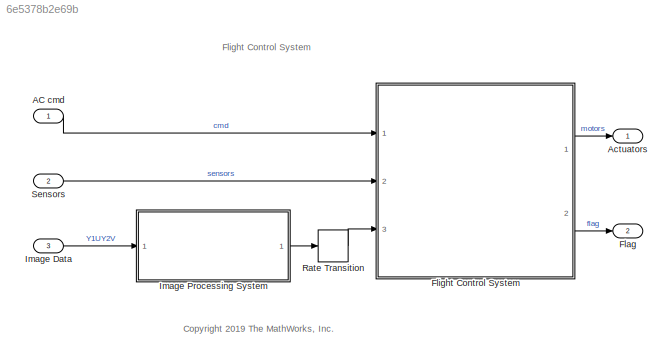
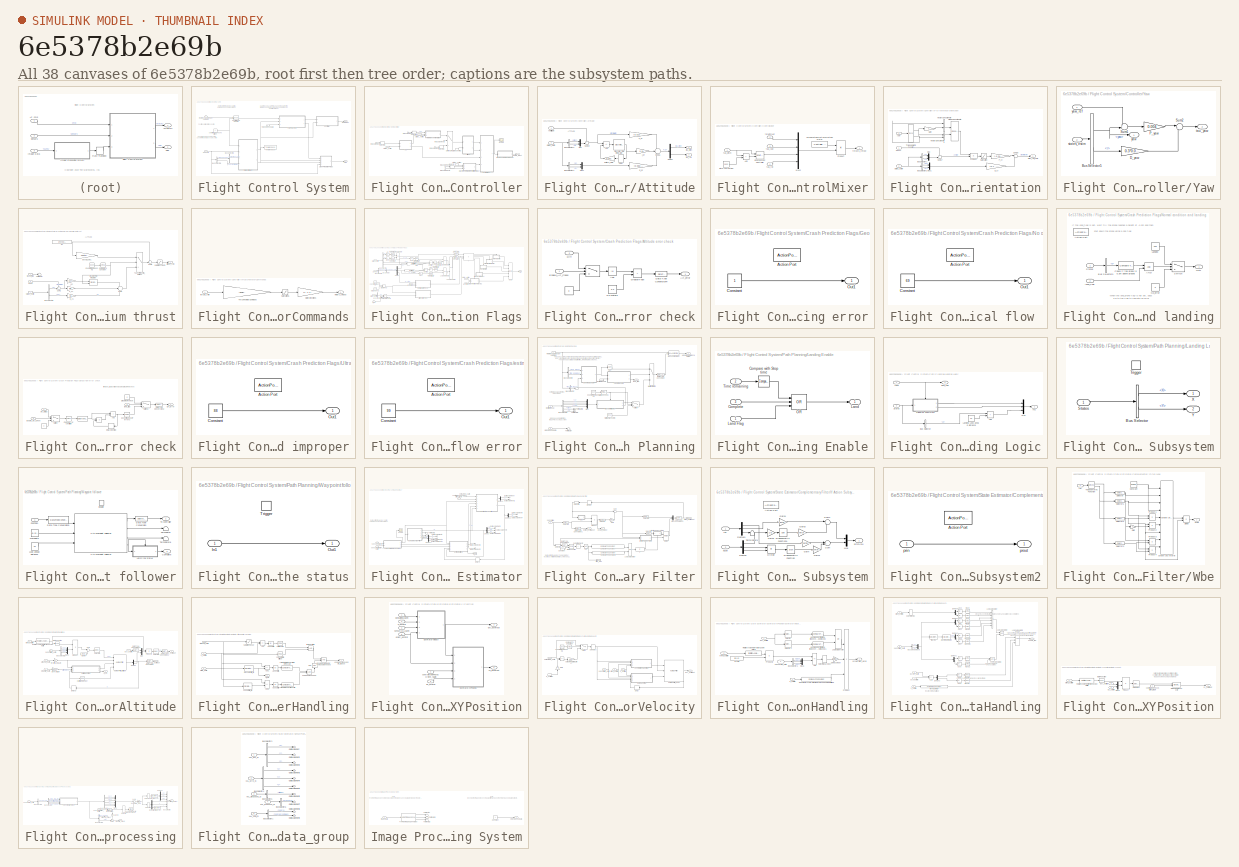
[diagram: thumbnail index - all 38 canvases of the model, root first then tree order]
MODEL slx_6e5378b2e69b
KIND model
CONFIG AbsTol = auto
CONFIG EnableMultiTasking = on
CONFIG FixedStep = Ts
CONFIG MaxStep = auto
CONFIG MinStep = auto
CONFIG RelTol = 1e-3
CONFIG SampleTimeConstraint = Unconstrained
CONFIG Solver = ode3
CONFIG SolverName = ode3
CONFIG StartTime = 0
CONFIG StopTime = TFinal
BLOCK [Inport] AC cmd
  BusOutputAsStruct = on
  OutDataTypeStr = Bus: CommandBus
BLOCK [Outport] Actuators
  OutDataTypeStr = single
  PortDimensions = 4
  VectorParamsAs1DForOutWhenUnconnected = off
BLOCK [Outport] Flag
  OutDataTypeStr = uint8
  Port = 2
  PortDimensions = 1
  VectorParamsAs1DForOutWhenUnconnected = off
BLOCK [SubSystem] Flight Control System
  InitFcn = codertarget.parrot.internal.fcsSubsystemCallback(gcb);
  Ports = [3, 2]
  RTWSystemCode = Reusable function
  RequestExecContextInheritance = off
  SystemSampleTime = Ts
  TreatAsAtomicUnit = on
BLOCK [BusSelector] Flight Control System/Bus Selector1
  OutputSignals = opticalFlow_data
  Ports = [1, 1]
BLOCK [BusSelector] Flight Control System/Bus Selector4
  OutputSignals = VisionSensors,SensorCalibration
  Ports = [1, 2]
BLOCK [BusAssignment] Flight Control System/Control Mode Update
  AssignedSignals = controlModePosVSOrient
  Ports = [2, 1]
BLOCK [SubSystem] Flight Control System/Controller
  Ports = [2, 1]
  RequestExecContextInheritance = off
BLOCK [SubSystem] Flight Control System/Controller/Attitude
  Ports = [2, 2]
  RequestExecContextInheritance = off
BLOCK [Sum] Flight Control System/Controller/Attitude/Add
  IconShape = rectangular
  Inputs = +-
  Ports = [2, 1]
BLOCK [BusSelector] Flight Control System/Controller/Attitude/Bus Selector3
  OutputSignals = pitch,roll
  Ports = [1, 2]
BLOCK [BusSelector] Flight Control System/Controller/Attitude/Bus Selector4
  OutputSignals = q,p
  Ports = [1, 2]
BLOCK [Gain] Flight Control System/Controller/Attitude/D_pr
  Gain = [0.002;0.003]
BLOCK [Delay] Flight Control System/Controller/Attitude/Delay
  DelayLength = 1
  InitialCondition = 0
  InputPortMap = u0
  Ports = [1, 1]
BLOCK [Demux] Flight Control System/Controller/Attitude/Demux
  Outputs = 2
  Ports = [1, 2]
BLOCK [DiscreteIntegrator] Flight Control System/Controller/Attitude/Discrete-Time Integrator
  ICPrevOutput = DiscIntNeverNeededParam
  ICPrevScaledInput = DiscIntNeverNeededParam
  InitialConditionSetting = Auto
  LimitOutput = on
  LowerSaturationLimit = -2
  Ports = [1, 1]
  SampleTime = Ts
  UpperSaturationLimit = 2
BLOCK [Gain] Flight Control System/Controller/Attitude/I_pr
  Gain = 0.01
BLOCK [Mux] Flight Control System/Controller/Attitude/Mux
  DisplayOption = bar
  Inputs = 2
  Ports = [2, 1]
BLOCK [Mux] Flight Control System/Controller/Attitude/Mux1
  DisplayOption = bar
  Inputs = 2
  Ports = [2, 1]
BLOCK [Gain] Flight Control System/Controller/Attitude/P_pr
  Gain = [0.013;0.01]
BLOCK [Sum] Flight Control System/Controller/Attitude/Sum16
  AccumDataTypeStr = single
  Inputs = ++-
  OutDataTypeStr = single
  Ports = [3, 1]
  SaturateOnIntegerOverflow = on
BLOCK [Sum] Flight Control System/Controller/Attitude/Sum19
  Inputs = +-|
  Ports = [2, 1]
BLOCK [Gain] Flight Control System/Controller/Attitude/antiWU_Gain
  Gain = 0.001
BLOCK [Inport] Flight Control System/Controller/Attitude/refAttitude
BLOCK [Inport] Flight Control System/Controller/Attitude/states_estim
  Port = 2
BLOCK [Outport] Flight Control System/Controller/Attitude/tau_pitch
  VectorParamsAs1DForOutWhenUnconnected = off
BLOCK [Outport] Flight Control System/Controller/Attitude/tau_roll
  Port = 2
  VectorParamsAs1DForOutWhenUnconnected = off
BLOCK [SubSystem] Flight Control System/Controller/ControlMixer
  Ports = [4, 1]
  RequestExecContextInheritance = off
BLOCK [Sum] Flight Control System/Controller/ControlMixer/Add
  IconShape = rectangular
  Ports = [2, 1]
BLOCK [Reference] Flight Control System/Controller/ControlMixer/Environment Controller  REF=simulink/Signal
Routing/Environment
Controller
  Ports = [2, 1]
  SourceBlock = simulink/Signal\nRouting/Environment\nController
  SourceProductBaseCode = SL
  SourceType = Environment Controller
BLOCK [Mux] Flight Control System/Controller/ControlMixer/Mux2
  DisplayOption = bar
  Ports = [4, 1]
BLOCK [Constant] Flight Control System/Controller/ControlMixer/Pitch correction
  OutDataTypeStr = single
  Value = 0.002
BLOCK [Product] Flight Control System/Controller/ControlMixer/Product
  Multiplication = Matrix(*)
  Ports = [2, 1]
  RndMeth = Zero
BLOCK [Constant] Flight Control System/Controller/ControlMixer/TorqueTotalThrustToThrustPerMotor
  NameLocation = top
  OutDataTypeStr = single
  Value = Controller.Q2Ts
BLOCK [Inport] Flight Control System/Controller/ControlMixer/tau_pitch
BLOCK [Inport] Flight Control System/Controller/ControlMixer/tau_roll
  Port = 2
BLOCK [Inport] Flight Control System/Controller/ControlMixer/tau_yaw
  Port = 3
BLOCK [Outport] Flight Control System/Controller/ControlMixer/thrusts_refout
  VectorParamsAs1DForOutWhenUnconnected = off
BLOCK [Inport] Flight Control System/Controller/ControlMixer/totalThrust
  Port = 4
BLOCK [Inport] Flight Control System/Controller/In Bus Element
BLOCK [Inport] Flight Control System/Controller/In Bus Element1
BLOCK [Inport] Flight Control System/Controller/In Bus Element2
BLOCK [Inport] Flight Control System/Controller/In Bus Element3
BLOCK [Inport] Flight Control System/Controller/In Bus Element5
BLOCK [Inport] Flight Control System/Controller/In Bus Element6
BLOCK [Scope] Flight Control System/Controller/Scope
  Floating = off
  NumInputPorts = 1
  Ports = [1]
  ScopeSpecificationString = Simulink.scopes.TimeScopeBlockCfg('CurrentConfiguration', extmgr.ConfigurationSet(extmgr.Configuration('Core','General UI',true),extmgr.Configuration('Core','Source UI',true),extmgr.Configuration('Sources','WiredSimulink',true,'DataLoggingVariableName','ScopeData4'),extmgr.Configuration('Visuals','Time Domain',true,'SerializedDisplays',{struct('MinYLimReal','-0.20032','MaxYLimReal','-0.09969','YLa...<+1497ch>
BLOCK [Selector] Flight Control System/Controller/Selector
  IndexOptions = Index vector (dialog)
  Indices = 3
  InputPortWidth = 3
  OutputSizes = 1
  Ports = [1, 1]
BLOCK [Selector] Flight Control System/Controller/Selector1
  IndexOptions = Index vector (dialog)
  Indices = [1 2]
  InputPortWidth = 3
  OutputSizes = 1
  Ports = [1, 1]
BLOCK [Selector] Flight Control System/Controller/Selector2
  IndexOptions = Index vector (dialog)
  Indices = [2 3]
  InputPortWidth = 3
  OutputSizes = 1
  Ports = [1, 1]
BLOCK [Selector] Flight Control System/Controller/Selector3
  IndexOptions = Index vector (dialog)
  Indices = 1
  InputPortWidth = 3
  OutputSizes = 1
  Ports = [1, 1]
BLOCK [Switch] Flight Control System/Controller/Switch_refAtt
  Criteria = u2 > Threshold
  InputSameDT = off
  SaturateOnIntegerOverflow = off
BLOCK [SubSystem] Flight Control System/Controller/XY-to-reference-orientation
  Ports = [3, 1]
  RequestExecContextInheritance = off
BLOCK [BusSelector] Flight Control System/Controller/XY-to-reference-orientation/Bus Selector1
  OutputSignals = X,Y
  Ports = [1, 2]
BLOCK [BusSelector] Flight Control System/Controller/XY-to-reference-orientation/Bus Selector2
  OutputSignals = dx,dy
  Ports = [1, 2]
BLOCK [Gain] Flight Control System/Controller/XY-to-reference-orientation/D_xy
  Gain = [0.1, -0.1]
  OutDataTypeStr = single
  ParamDataTypeStr = single
  SaturateOnIntegerOverflow = on
BLOCK [Gain] Flight Control System/Controller/XY-to-reference-orientation/Gain
  Gain = -1
BLOCK [Concatenate] Flight Control System/Controller/XY-to-reference-orientation/Matrix Concatenate
  ConcatenateDimension = 2
  Mode = Multidimensional array
  Ports = [2, 1]
BLOCK [Mux] Flight Control System/Controller/XY-to-reference-orientation/Mux
  DisplayOption = bar
  Inputs = 2
  Ports = [2, 1]
BLOCK [Mux] Flight Control System/Controller/XY-to-reference-orientation/Mux1
  DisplayOption = bar
  Inputs = 2
  Ports = [2, 1]
BLOCK [Gain] Flight Control System/Controller/XY-to-reference-orientation/P_xy
  Gain = [-0.24,0.24]
  OutDataTypeStr = single
  ParamDataTypeStr = single
  SaturateOnIntegerOverflow = on
BLOCK [Product] Flight Control System/Controller/XY-to-reference-orientation/Product
  Multiplication = Matrix(*)
  OutDataTypeStr = single
  Ports = [2, 1]
  RndMeth = Zero
BLOCK [Saturate] Flight Control System/Controller/XY-to-reference-orientation/Saturation
  LowerLimit = -3
  OutDataTypeStr = single
  UpperLimit = 3
BLOCK [Sum] Flight Control System/Controller/XY-to-reference-orientation/Sum17
  AccumDataTypeStr = single
  Inputs = +-|
  Ports = [2, 1]
BLOCK [Sum] Flight Control System/Controller/XY-to-reference-orientation/Sum18
  AccumDataTypeStr = single
  Inputs = |++
  OutDataTypeStr = single
  Ports = [2, 1]
  SaturateOnIntegerOverflow = on
BLOCK [Trigonometry] Flight Control System/Controller/XY-to-reference-orientation/Trigonometric Function
  Operator = sincos
  Ports = [1, 2]
BLOCK [Concatenate] Flight Control System/Controller/XY-to-reference-orientation/Vector Concatenate
  Ports = [2, 1]
BLOCK [Concatenate] Flight Control System/Controller/XY-to-reference-orientation/Vector Concatenate1
  Ports = [2, 1]
BLOCK [Outport] Flight Control System/Controller/XY-to-reference-orientation/pitch_roll_cmd
  VectorParamsAs1DForOutWhenUnconnected = off
BLOCK [Inport] Flight Control System/Controller/XY-to-reference-orientation/posXY
BLOCK [Inport] Flight Control System/Controller/XY-to-reference-orientation/states_estim
  Port = 2
BLOCK [Inport] Flight Control System/Controller/XY-to-reference-orientation/yaw
  Port = 3
BLOCK [SubSystem] Flight Control System/Controller/Yaw
  Ports = [2, 2]
  RequestExecContextInheritance = off
BLOCK [BusSelector] Flight Control System/Controller/Yaw/Bus Selector5
  OutputSignals = yaw,r
  Ports = [1, 2]
BLOCK [Gain] Flight Control System/Controller/Yaw/D_yaw
  Gain = 0.3*0.004
BLOCK [Gain] Flight Control System/Controller/Yaw/P_yaw
  Gain = 0.004
  OutDataTypeStr = single
  ParamDataTypeStr = single
BLOCK [Sum] Flight Control System/Controller/Yaw/Sum1
  AccumDataTypeStr = single
  Inputs = +-|
  OutDataTypeStr = single
  Ports = [2, 1]
  SaturateOnIntegerOverflow = on
BLOCK [Sum] Flight Control System/Controller/Yaw/Sum2
  Inputs = |+-
  Ports = [2, 1]
BLOCK [Inport] Flight Control System/Controller/Yaw/states_estim
  Port = 2
BLOCK [Outport] Flight Control System/Controller/Yaw/tau_yaw
  Port = 2
  VectorParamsAs1DForOutWhenUnconnected = off
BLOCK [Outport] Flight Control System/Controller/Yaw/yaw
  VectorParamsAs1DForOutWhenUnconnected = off
BLOCK [Inport] Flight Control System/Controller/Yaw/yaw_ref
BLOCK [SubSystem] Flight Control System/Controller/gravity feedforward//equilibrium thrust
  Ports = [3, 1]
  RequestExecContextInheritance = off
BLOCK [BusSelector] Flight Control System/Controller/gravity feedforward//equilibrium thrust/Bus Selector1
  OutputSignals = Z,dz
  Ports = [1, 2]
BLOCK [Reference] Flight Control System/Controller/gravity feedforward//equilibrium thrust/Compare To Constant  REF=simulink/Logic and Bit
Operations/Compare
To Constant
  Ports = [1, 1]
  SourceBlock = simulink/Logic and Bit\nOperations/Compare\nTo Constant
  SourceProductBaseCode = SL
  SourceType = Compare To Constant
BLOCK [Reference] Flight Control System/Controller/gravity feedforward//equilibrium thrust/Counter Free-Running  REF=simulink/Sources/Counter
Free-Running
  Ports = [0, 1]
  SourceBlock = simulink/Sources/Counter\nFree-Running
  SourceProductBaseCode = SL
  SourceType = Counter Free-Running
BLOCK [Gain] Flight Control System/Controller/gravity feedforward//equilibrium thrust/D_z1
  Gain = 0.5
  OutDataTypeStr = single
  ParamDataTypeStr = single
  SaturateOnIntegerOverflow = on
BLOCK [DiscreteIntegrator] Flight Control System/Controller/gravity feedforward//equilibrium thrust/Discrete-Time Integrator
  ExternalReset = falling
  ICPrevOutput = DiscIntNeverNeededParam
  ICPrevScaledInput = DiscIntNeverNeededParam
  InitialConditionSetting = Auto
  LimitOutput = on
  LowerSaturationLimit = -2
  Ports = [2, 1]
  SampleTime = Ts
  UpperSaturationLimit = 2
BLOCK [Gain] Flight Control System/Controller/gravity feedforward//equilibrium thrust/I_pr
  Gain = 0.24
BLOCK [Gain] Flight Control System/Controller/gravity feedforward//equilibrium thrust/P_z1
  Gain = 0.8
  OutDataTypeStr = single
  ParamDataTypeStr = single
  SaturateOnIntegerOverflow = on
BLOCK [Inport] Flight Control System/Controller/gravity feedforward//equilibrium thrust/PosZ
  Port = 2
BLOCK [Saturate] Flight Control System/Controller/gravity feedforward//equilibrium thrust/SaturationThrust1
  LowerLimit = -4*Controller.totalThrustMaxRelative*Controller.motorsThrustPerMotorMax
  OutDataTypeStr = single
  UpperLimit = 4*Controller.totalThrustMaxRelative*Controller.motorsThrustPerMotorMax
BLOCK [Sum] Flight Control System/Controller/gravity feedforward//equilibrium thrust/Sum1
  AccumDataTypeStr = single
  Inputs = ++-
  OutDataTypeStr = single
  Ports = [3, 1]
  SaturateOnIntegerOverflow = on
BLOCK [Sum] Flight Control System/Controller/gravity feedforward//equilibrium thrust/Sum2
  AccumDataTypeStr = single
  Inputs = +-|
  OutDataTypeStr = single
  Ports = [2, 1]
  SaturateOnIntegerOverflow = on
BLOCK [Sum] Flight Control System/Controller/gravity feedforward//equilibrium thrust/Sum5
  AccumDataTypeStr = single
  Inputs = ++|
  OutDataTypeStr = single
  Ports = [2, 1]
  SaturateOnIntegerOverflow = on
BLOCK [Switch] Flight Control System/Controller/gravity feedforward//equilibrium thrust/TakeoffOrControl_Switch1
  Criteria = u2 > Threshold
  InputSameDT = off
  SaturateOnIntegerOverflow = off
BLOCK [Terminator] Flight Control System/Controller/gravity feedforward//equilibrium thrust/Terminator
BLOCK [Outport] Flight Control System/Controller/gravity feedforward//equilibrium thrust/altitude_cmd
  VectorParamsAs1DForOutWhenUnconnected = off
BLOCK [Inport] Flight Control System/Controller/gravity feedforward//equilibrium thrust/states_estim
BLOCK [Inport] Flight Control System/Controller/gravity feedforward//equilibrium thrust/takeoff_flag
  Port = 3
BLOCK [Gain] Flight Control System/Controller/gravity feedforward//equilibrium thrust/takeoff_gain1
  Gain = Controller.takeoffGain
  OutDataTypeStr = single
  ParamDataTypeStr = single
  SaturateOnIntegerOverflow = on
BLOCK [Constant] Flight Control System/Controller/gravity feedforward//equilibrium thrust/w1
  OutDataTypeStr = single
  SampleTime = Ts
  Value = -g*Vehicle.Airframe.mass
BLOCK [Outport] Flight Control System/Controller/motors_refout
  VectorParamsAs1DForOutWhenUnconnected = off
BLOCK [Inport] Flight Control System/Controller/states_estim
  Port = 2
BLOCK [InportShadow] Flight Control System/Controller/states_estim1
  Port = 2
BLOCK [InportShadow] Flight Control System/Controller/states_estim2
  Port = 2
BLOCK [InportShadow] Flight Control System/Controller/states_estim3
  Port = 2
BLOCK [SubSystem] Flight Control System/Controller/thrustsToMotorCommands
  Ports = [1, 1]
  RequestExecContextInheritance = off
BLOCK [Gain] Flight Control System/Controller/thrustsToMotorCommands/MotorDirections
  Gain = [1 -1 1 -1]
BLOCK [Saturate] Flight Control System/Controller/thrustsToMotorCommands/Saturation5
  LowerLimit = Vehicle.Motor.minLimit
  UpperLimit = Vehicle.Motor.maxLimit
BLOCK [Gain] Flight Control System/Controller/thrustsToMotorCommands/ThrustToMotorCommand
  Gain = -Vehicle.Motor.thrustToMotorCommand
BLOCK [Outport] Flight Control System/Controller/thrustsToMotorCommands/motors_cmdout
  VectorParamsAs1DForOutWhenUnconnected = off
BLOCK [Inport] Flight Control System/Controller/thrustsToMotorCommands/thrusts_refin
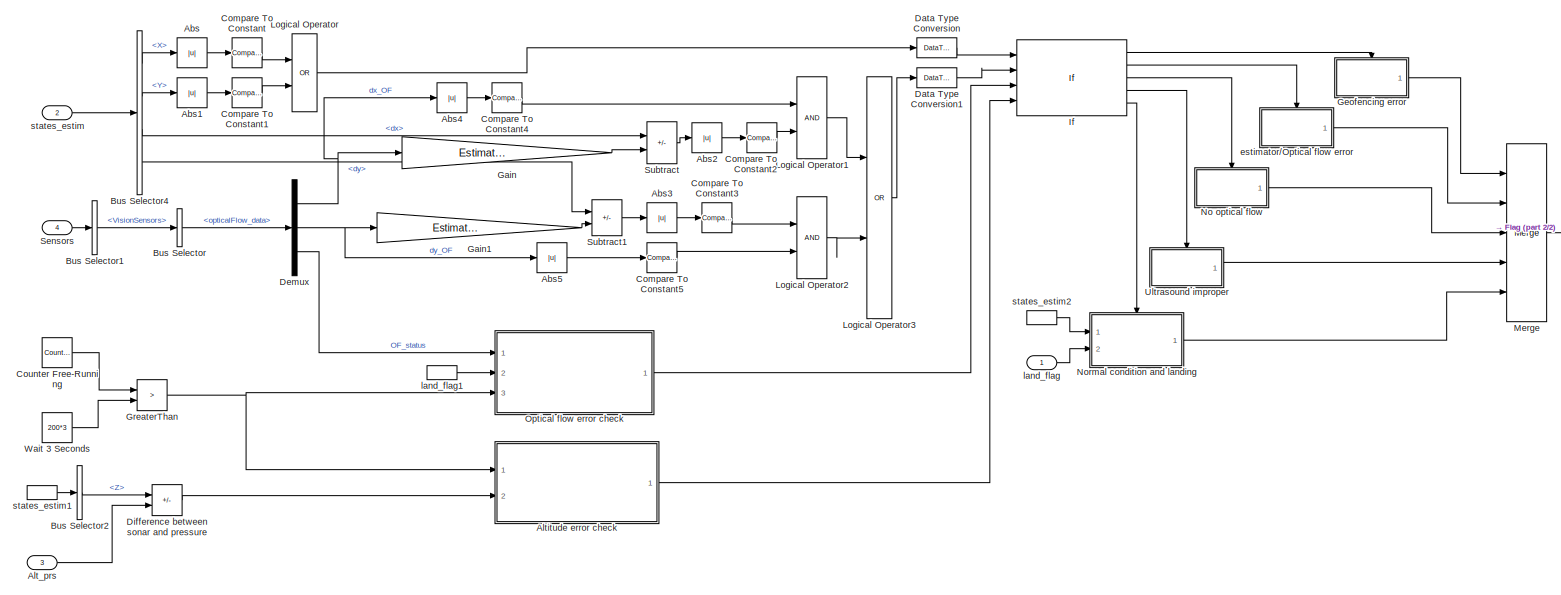
[diagram: Flight Control System/Crash Prediction Flags - part 1/2, most of the canvas]
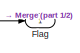
[diagram: Flight Control System/Crash Prediction Flags - part 2/2, middle right region]
BLOCK [SubSystem] Flight Control System/Crash Prediction Flags
  Ports = [4, 1]
  RequestExecContextInheritance = off
BLOCK [Abs] Flight Control System/Crash Prediction Flags/Abs
  SaturateOnIntegerOverflow = off
BLOCK [Abs] Flight Control System/Crash Prediction Flags/Abs1
  SaturateOnIntegerOverflow = off
BLOCK [Abs] Flight Control System/Crash Prediction Flags/Abs2
  SaturateOnIntegerOverflow = off
BLOCK [Abs] Flight Control System/Crash Prediction Flags/Abs3
  SaturateOnIntegerOverflow = off
BLOCK [Abs] Flight Control System/Crash Prediction Flags/Abs4
  SaturateOnIntegerOverflow = off
BLOCK [Abs] Flight Control System/Crash Prediction Flags/Abs5
  SaturateOnIntegerOverflow = off
BLOCK [Inport] Flight Control System/Crash Prediction Flags/Alt_prs
  Port = 3
BLOCK [SubSystem] Flight Control System/Crash Prediction Flags/Altitude error check
  Ports = [2, 1]
  RequestExecContextInheritance = off
BLOCK [Constant] Flight Control System/Crash Prediction Flags/Altitude error check/    
  OutDataTypeStr = single
  Value = 0
BLOCK [Switch] Flight Control System/Crash Prediction Flags/Altitude error check/         
  Criteria = u2 > Threshold
  InputSameDT = off
  SaturateOnIntegerOverflow = off
BLOCK [Constant] Flight Control System/Crash Prediction Flags/Altitude error check/0.5 meters
  Value = 0.5
BLOCK [Abs] Flight Control System/Crash Prediction Flags/Altitude error check/Abs  
  SaturateOnIntegerOverflow = off
BLOCK [Outport] Flight Control System/Crash Prediction Flags/Altitude error check/Alt_error
BLOCK [DataTypeConversion] Flight Control System/Crash Prediction Flags/Altitude error check/Data Type Conversion4
  OutDataTypeStr = uint8
  RndMeth = Nearest
  SaturateOnIntegerOverflow = off
BLOCK [Inport] Flight Control System/Crash Prediction Flags/Altitude error check/Diff
  Port = 2
BLOCK [Inport] Flight Control System/Crash Prediction Flags/Altitude error check/Enable_Alt_Check
BLOCK [RelationalOperator] Flight Control System/Crash Prediction Flags/Altitude error check/GreaterThan  
  InputSameDT = off
  NameLocation = top
  Operator = >
  OutDataTypeStr = boolean
  Ports = [2, 1]
  RndMeth = Simplest
BLOCK [BusSelector] Flight Control System/Crash Prediction Flags/Bus Selector
  OutputSignals = opticalFlow_data
  Ports = [1, 1]
BLOCK [BusSelector] Flight Control System/Crash Prediction Flags/Bus Selector1
  OutputSignals = VisionSensors
  Ports = [1, 1]
BLOCK [BusSelector] Flight Control System/Crash Prediction Flags/Bus Selector2
  OutputSignals = Z
  Ports = [1, 1]
BLOCK [BusSelector] Flight Control System/Crash Prediction Flags/Bus Selector4
  OutputSignals = X,Y,dx,dy
  Ports = [1, 4]
BLOCK [Reference] Flight Control System/Crash Prediction Flags/Compare To Constant  REF=simulink/Logic and Bit
Operations/Compare
To Constant
  Ports = [1, 1]
  SourceBlock = simulink/Logic and Bit\nOperations/Compare\nTo Constant
  SourceProductBaseCode = SL
  SourceType = Compare To Constant
BLOCK [Reference] Flight Control System/Crash Prediction Flags/Compare To Constant1  REF=simulink/Logic and Bit
Operations/Compare
To Constant
  Ports = [1, 1]
  SourceBlock = simulink/Logic and Bit\nOperations/Compare\nTo Constant
  SourceProductBaseCode = SL
  SourceType = Compare To Constant
BLOCK [Reference] Flight Control System/Crash Prediction Flags/Compare To Constant2  REF=simulink/Logic and Bit
Operations/Compare
To Constant
  Ports = [1, 1]
  SourceBlock = simulink/Logic and Bit\nOperations/Compare\nTo Constant
  SourceProductBaseCode = SL
  SourceType = Compare To Constant
BLOCK [Reference] Flight Control System/Crash Prediction Flags/Compare To Constant3  REF=simulink/Logic and Bit
Operations/Compare
To Constant
  Ports = [1, 1]
  SourceBlock = simulink/Logic and Bit\nOperations/Compare\nTo Constant
  SourceProductBaseCode = SL
  SourceType = Compare To Constant
BLOCK [Reference] Flight Control System/Crash Prediction Flags/Compare To Constant4  REF=simulink/Logic and Bit
Operations/Compare
To Constant
  Ports = [1, 1]
  SourceBlock = simulink/Logic and Bit\nOperations/Compare\nTo Constant
  SourceProductBaseCode = SL
  SourceType = Compare To Constant
BLOCK [Reference] Flight Control System/Crash Prediction Flags/Compare To Constant5  REF=simulink/Logic and Bit
Operations/Compare
To Constant
  Ports = [1, 1]
  SourceBlock = simulink/Logic and Bit\nOperations/Compare\nTo Constant
  SourceProductBaseCode = SL
  SourceType = Compare To Constant
BLOCK [Reference] Flight Control System/Crash Prediction Flags/Counter Free-Running  REF=simulink/Sources/Counter
Free-Running
  Ports = [0, 1]
  SourceBlock = simulink/Sources/Counter\nFree-Running
  SourceProductBaseCode = SL
  SourceType = Counter Free-Running
BLOCK [DataTypeConversion] Flight Control System/Crash Prediction Flags/Data Type Conversion
  OutDataTypeStr = uint8
  RndMeth = Nearest
  SaturateOnIntegerOverflow = off
BLOCK [DataTypeConversion] Flight Control System/Crash Prediction Flags/Data Type Conversion1
  OutDataTypeStr = uint8
  RndMeth = Nearest
  SaturateOnIntegerOverflow = off
BLOCK [Demux] Flight Control System/Crash Prediction Flags/Demux
  Outputs = 3
  Ports = [1, 3]
BLOCK [Sum] Flight Control System/Crash Prediction Flags/Difference between sonar and pressure
  IconShape = rectangular
  Inputs = +-
  Ports = [2, 1]
BLOCK [Outport] Flight Control System/Crash Prediction Flags/Flag
  VectorParamsAs1DForOutWhenUnconnected = off
BLOCK [Gain] Flight Control System/Crash Prediction Flags/Gain
  Gain = Estimator.pos.visDeltaXYMax
BLOCK [Gain] Flight Control System/Crash Prediction Flags/Gain1
  Gain = Estimator.pos.visDeltaXYMax
BLOCK [SubSystem] Flight Control System/Crash Prediction Flags/Geofencing error
  Ports = [0, 1, 0, 0, 0, 0, 0, 1]
  RequestExecContextInheritance = off
  TreatAsAtomicUnit = on
BLOCK [ActionPort] Flight Control System/Crash Prediction Flags/Geofencing error/Action Port
  ActionPortLabel = if(u1 > 0)
BLOCK [Constant] Flight Control System/Crash Prediction Flags/Geofencing error/Constant
  OutDataTypeStr = uint8
BLOCK [Outport] Flight Control System/Crash Prediction Flags/Geofencing error/Out1
  VectorParamsAs1DForOutWhenUnconnected = off
BLOCK [RelationalOperator] Flight Control System/Crash Prediction Flags/GreaterThan
  InputSameDT = off
  Operator = >
  OutDataTypeStr = boolean
  Ports = [2, 1]
  RndMeth = Simplest
BLOCK [If] Flight Control System/Crash Prediction Flags/If
  ElseIfExpressions = u2 > 0, u3> 0,u4>0
  NumInputs = 4
  Ports = [4, 5]
BLOCK [Logic] Flight Control System/Crash Prediction Flags/Logical Operator
  AllPortsSameDT = off
  Operator = OR
  Ports = [2, 1]
BLOCK [Logic] Flight Control System/Crash Prediction Flags/Logical Operator1
  AllPortsSameDT = off
  OutDataTypeStr = boolean
  Ports = [2, 1]
BLOCK [Logic] Flight Control System/Crash Prediction Flags/Logical Operator2
  AllPortsSameDT = off
  OutDataTypeStr = boolean
  Ports = [2, 1]
BLOCK [Logic] Flight Control System/Crash Prediction Flags/Logical Operator3
  AllPortsSameDT = off
  Operator = OR
  Ports = [2, 1]
BLOCK [Merge] Flight Control System/Crash Prediction Flags/Merge
  InitialOutput = 0
  Inputs = 5
  Ports = [5, 1]
BLOCK [SubSystem] Flight Control System/Crash Prediction Flags/No optical flow 
  Ports = [0, 1, 0, 0, 0, 0, 0, 1]
  RequestExecContextInheritance = off
  TreatAsAtomicUnit = on
BLOCK [ActionPort] Flight Control System/Crash Prediction Flags/No optical flow /Action Port
  ActionPortLabel = elseif( u3> 0)
BLOCK [Constant] Flight Control System/Crash Prediction Flags/No optical flow /Constant
  OutDataTypeStr = uint8
  Value = 69
BLOCK [Outport] Flight Control System/Crash Prediction Flags/No optical flow /Out1
  VectorParamsAs1DForOutWhenUnconnected = off
BLOCK [SubSystem] Flight Control System/Crash Prediction Flags/Normal condition and landing
  Ports = [2, 1, 0, 0, 0, 0, 0, 1]
  RequestExecContextInheritance = off
  TreatAsAtomicUnit = on
BLOCK [Logic] Flight Control System/Crash Prediction Flags/Normal condition and landing/AND
  AllPortsSameDT = off
  IconShape = distinctive
  OutDataTypeStr = boolean
  Ports = [2, 1]
BLOCK [ActionPort] Flight Control System/Crash Prediction Flags/Normal condition and landing/Action Port
  ActionPortLabel = else
BLOCK [BusSelector] Flight Control System/Crash Prediction Flags/Normal condition and landing/Bus Selector3
  OutputSignals = Z
  Ports = [1, 1]
BLOCK [Reference] Flight Control System/Crash Prediction Flags/Normal condition and landing/Check if the drone is 0.3m above ground  REF=simulink/Logic and Bit
Operations/Compare
To Constant
  Ports = [1, 1]
  SourceBlock = simulink/Logic and Bit\nOperations/Compare\nTo Constant
  SourceProductBaseCode = SL
  SourceType = Compare To Constant
BLOCK [Constant] Flight Control System/Crash Prediction Flags/Normal condition and landing/Landed
  OutDataTypeStr = uint8
  Value = 255
BLOCK [Constant] Flight Control System/Crash Prediction Flags/Normal condition and landing/No_error
  OutDataTypeStr = uint8
  Value = 0
BLOCK [Outport] Flight Control System/Crash Prediction Flags/Normal condition and landing/Out1
BLOCK [Inport] Flight Control System/Crash Prediction Flags/Normal condition and landing/States
BLOCK [Switch] Flight Control System/Crash Prediction Flags/Normal condition and landing/Switch
  Criteria = u2 > Threshold
  InputSameDT = off
  SaturateOnIntegerOverflow = off
BLOCK [Inport] Flight Control System/Crash Prediction Flags/Normal condition and landing/land_flag
  Port = 2
BLOCK [SubSystem] Flight Control System/Crash Prediction Flags/Optical flow error check
  Ports = [3, 1]
  RequestExecContextInheritance = off
BLOCK [Constant] Flight Control System/Crash Prediction Flags/Optical flow error check/ 
  Value = 0
BLOCK [Product] Flight Control System/Crash Prediction Flags/Optical flow error check/  
  Inputs = **
  Ports = [2, 1]
BLOCK [DataTypeConversion] Flight Control System/Crash Prediction Flags/Optical flow error check/   
  RndMeth = Floor
  SaturateOnIntegerOverflow = off
BLOCK [Constant] Flight Control System/Crash Prediction Flags/Optical flow error check/ Disable OF check
  Value = 0
BLOCK [Reference] Flight Control System/Crash Prediction Flags/Optical flow error check/50 continuous OF errors   REF=simulink/Logic and Bit
Operations/Compare
To Constant
  Ports = [1, 1]
  SourceBlock = simulink/Logic and Bit\nOperations/Compare\nTo Constant
  SourceProductBaseCode = SL
  SourceType = Compare To Constant
BLOCK [Sum] Flight Control System/Crash Prediction Flags/Optical flow error check/Add
  IconShape = rectangular
  Ports = [2, 1]
BLOCK [Reference] Flight Control System/Crash Prediction Flags/Optical flow error check/Check error condition  REF=simulink/Logic and Bit
Operations/Compare
To Constant
  Ports = [1, 1]
  SourceBlock = simulink/Logic and Bit\nOperations/Compare\nTo Constant
  SourceProductBaseCode = SL
  SourceType = Compare To Constant
BLOCK [DataTypeConversion] Flight Control System/Crash Prediction Flags/Optical flow error check/Data Type Conversion2
  OutDataTypeStr = uint8
  RndMeth = Nearest
  SaturateOnIntegerOverflow = off
BLOCK [Delay] Flight Control System/Crash Prediction Flags/Optical flow error check/Delay One Step
  DelayLength = 1
  InputPortMap = u0
  Ports = [1, 1]
BLOCK [Inport] Flight Control System/Crash Prediction Flags/Optical flow error check/Enable_OF_Check
  Port = 3
BLOCK [Outport] Flight Control System/Crash Prediction Flags/Optical flow error check/OF_Error
BLOCK [Inport] Flight Control System/Crash Prediction Flags/Optical flow error check/OF_status
BLOCK [Switch] Flight Control System/Crash Prediction Flags/Optical flow error check/Switch
  Criteria = u2 > Threshold
  InputSameDT = off
  SaturateOnIntegerOverflow = off
BLOCK [Switch] Flight Control System/Crash Prediction Flags/Optical flow error check/Switch1
  Criteria = u2 > Threshold
  InputSameDT = off
  SaturateOnIntegerOverflow = off
BLOCK [Inport] Flight Control System/Crash Prediction Flags/Optical flow error check/land_flag
  Port = 2
BLOCK [Inport] Flight Control System/Crash Prediction Flags/Sensors
  Port = 4
BLOCK [Sum] Flight Control System/Crash Prediction Flags/Subtract
  IconShape = rectangular
  Inputs = -+
  Ports = [2, 1]
BLOCK [Sum] Flight Control System/Crash Prediction Flags/Subtract1
  IconShape = rectangular
  Inputs = -+
  Ports = [2, 1]
BLOCK [SubSystem] Flight Control System/Crash Prediction Flags/Ultrasound improper
  Ports = [0, 1, 0, 0, 0, 0, 0, 1]
  RequestExecContextInheritance = off
  TreatAsAtomicUnit = on
BLOCK [ActionPort] Flight Control System/Crash Prediction Flags/Ultrasound improper/Action Port
  ActionPortLabel = elseif(u4>0)
BLOCK [Constant] Flight Control System/Crash Prediction Flags/Ultrasound improper/Constant
  OutDataTypeStr = uint8
  Value = 88
BLOCK [Outport] Flight Control System/Crash Prediction Flags/Ultrasound improper/Out1
  VectorParamsAs1DForOutWhenUnconnected = off
BLOCK [Constant] Flight Control System/Crash Prediction Flags/Wait  3 Seconds
  Value = 200*3
BLOCK [SubSystem] Flight Control System/Crash Prediction Flags/estimator//Optical flow error
  Ports = [0, 1, 0, 0, 0, 0, 0, 1]
  RequestExecContextInheritance = off
  TreatAsAtomicUnit = on
BLOCK [ActionPort] Flight Control System/Crash Prediction Flags/estimator//Optical flow error/Action Port
  ActionPortLabel = elseif(u2 > 0)
BLOCK [Constant] Flight Control System/Crash Prediction Flags/estimator//Optical flow error/Constant
  OutDataTypeStr = uint8
  Value = 99
BLOCK [Outport] Flight Control System/Crash Prediction Flags/estimator//Optical flow error/Out1
  VectorParamsAs1DForOutWhenUnconnected = off
BLOCK [Inport] Flight Control System/Crash Prediction Flags/land_flag
BLOCK [InportShadow] Flight Control System/Crash Prediction Flags/land_flag1
BLOCK [Inport] Flight Control System/Crash Prediction Flags/states_estim
  Port = 2
BLOCK [InportShadow] Flight Control System/Crash Prediction Flags/states_estim1
  Port = 2
BLOCK [InportShadow] Flight Control System/Crash Prediction Flags/states_estim2
  Port = 2
BLOCK [Outport] Flight Control System/Flag
  Port = 2
  VectorParamsAs1DForOutWhenUnconnected = off
BLOCK [SubSystem] Flight Control System/Path Planning
  Ports = [3, 2]
  RequestExecContextInheritance = off
BLOCK [Terminator] Flight Control System/Path Planning/ 
BLOCK [BusAssignment] Flight Control System/Path Planning/Bus Assignment
  AssignedSignals = pos_ref
  Ports = [2, 1]
BLOCK [BusSelector] Flight Control System/Path Planning/Bus Selector
  OutputSignals = live_time_ticks
  Ports = [1, 1]
BLOCK [BusSelector] Flight Control System/Path Planning/Bus Selector1
  OutputSignals = X,Y,Z,yaw,pitch,roll
  Ports = [1, 6]
BLOCK [BusSelector] Flight Control System/Path Planning/Bus Selector3
  OutputSignals = land_drone,time_remaining
  Ports = [1, 2]
BLOCK [Reference] Flight Control System/Path Planning/Counter Free-Running  REF=simulink/Sources/Counter
Free-Running
  Ports = [0, 1]
  SourceBlock = simulink/Sources/Counter\nFree-Running
  SourceProductBaseCode = SL
  SourceType = Counter Free-Running
BLOCK [DataTypeConversion] Flight Control System/Path Planning/Data Type Conversion
  OutDataTypeStr = single
  RndMeth = Floor
  SaturateOnIntegerOverflow = off
BLOCK [Inport] Flight Control System/Path Planning/EstimatedVal
  Port = 2
BLOCK [InportShadow] Flight Control System/Path Planning/EstimatedVal1
  Port = 2
BLOCK [SubSystem] Flight Control System/Path Planning/Landing Enable
  Ports = [3, 1]
  RequestExecContextInheritance = off
BLOCK [Reference] Flight Control System/Path Planning/Landing Enable/Compare with Stop time  REF=simulink/Logic and Bit
Operations/Compare
To Constant
  Ports = [1, 1]
  SourceBlock = simulink/Logic and Bit\nOperations/Compare\nTo Constant
  SourceProductBaseCode = SL
  SourceType = Compare To Constant
BLOCK [Inport] Flight Control System/Path Planning/Landing Enable/Complete
  Port = 3
BLOCK [Outport] Flight Control System/Path Planning/Landing Enable/Land
BLOCK [Inport] Flight Control System/Path Planning/Landing Enable/Land Flag
BLOCK [Logic] Flight Control System/Path Planning/Landing Enable/OR
  AllPortsSameDT = off
  IconShape = distinctive
  Inputs = 3
  Operator = OR
  OutDataTypeStr = boolean
  Ports = [3, 1]
BLOCK [Inport] Flight Control System/Path Planning/Landing Enable/Time remaining
  Port = 2
BLOCK [SubSystem] Flight Control System/Path Planning/Landing Logic
  Ports = [2, 2]
  RequestExecContextInheritance = off
BLOCK [Sum] Flight Control System/Path Planning/Landing Logic/Add
  IconShape = rectangular
  Ports = [2, 1]
BLOCK [BusSelector] Flight Control System/Path Planning/Landing Logic/Bus Selector
  OutputSignals = Z
  Ports = [1, 1]
BLOCK [Inport] Flight Control System/Path Planning/Landing Logic/Land
BLOCK [Constant] Flight Control System/Path Planning/Landing Logic/Landing Look-ahead distance
  OutDataTypeStr = single
  Value = 0.2
BLOCK [Mux] Flight Control System/Path Planning/Landing Logic/Mux
  DisplayOption = bar
  Inputs = 3
  Ports = [3, 1]
BLOCK [Inport] Flight Control System/Path Planning/Landing Logic/States
  Port = 2
BLOCK [SubSystem] Flight Control System/Path Planning/Landing Logic/Triggered Subsystem
  Ports = [1, 2, 0, 1]
  RequestExecContextInheritance = off
  TreatAsAtomicUnit = on
BLOCK [BusSelector] Flight Control System/Path Planning/Landing Logic/Triggered Subsystem/Bus Selector
  OutputSignals = X,Y
  Ports = [1, 2]
BLOCK [Inport] Flight Control System/Path Planning/Landing Logic/Triggered Subsystem/States
BLOCK [TriggerPort] Flight Control System/Path Planning/Landing Logic/Triggered Subsystem/Trigger
  InitialTriggerSignalState = zero
  Ports = []
  StatesWhenEnabling = held
  VariantControl = Variant
BLOCK [Outport] Flight Control System/Path Planning/Landing Logic/Triggered Subsystem/X
BLOCK [Outport] Flight Control System/Path Planning/Landing Logic/Triggered Subsystem/Y
  Port = 2
BLOCK [Outport] Flight Control System/Path Planning/Landing Logic/XYZ
BLOCK [Outport] Flight Control System/Path Planning/Landing Logic/land_flag
  Port = 2
BLOCK [MultiPortSwitch] Flight Control System/Path Planning/Multiport Switch
  DataPortOrder = Zero-based contiguous
  InputSameDT = off
  Inputs = 2
  Ports = [3, 1]
  SaturateOnIntegerOverflow = off
  zeroidx = on
BLOCK [Mux] Flight Control System/Path Planning/Mux
  DisplayOption = bar
  Ports = [4, 1]
BLOCK [Logic] Flight Control System/Path Planning/NOT
  AllPortsSameDT = off
  IconShape = distinctive
  Operator = NOT
  OutDataTypeStr = boolean
  Ports = [1, 1]
BLOCK [Inport] Flight Control System/Path Planning/ReferenceValueServerCmds
BLOCK [Constant] Flight Control System/Path Planning/Startup Waypoints
  Value = [0 0 -1]
BLOCK [Switch] Flight Control System/Path Planning/Switch
  Criteria = u2 > Threshold
  InputSameDT = off
  SaturateOnIntegerOverflow = off
BLOCK [Terminator] Flight Control System/Path Planning/Terminator
  NameLocation = top
BLOCK [Terminator] Flight Control System/Path Planning/Terminator5
  NameLocation = top
BLOCK [Terminator] Flight Control System/Path Planning/Terminator6
  NameLocation = top
BLOCK [Outport] Flight Control System/Path Planning/UpdatedReferenceCmds
  VectorParamsAs1DForOutWhenUnconnected = off
BLOCK [Inport] Flight Control System/Path Planning/Vision-based Data
  Port = 3
BLOCK [Reference] Flight Control System/Path Planning/Wait 5 seconds  REF=simulink/Logic and Bit
Operations/Compare
To Constant
  Ports = [1, 1]
  SourceBlock = simulink/Logic and Bit\nOperations/Compare\nTo Constant
  SourceProductBaseCode = SL
  SourceType = Compare To Constant
BLOCK [SubSystem] Flight Control System/Path Planning/Waypoint follower
  Ports = [1, 2, 1]
  RequestExecContextInheritance = off
BLOCK [Outport] Flight Control System/Path Planning/Waypoint follower/Complete
  Port = 2
BLOCK [DataTypeConversion] Flight Control System/Path Planning/Waypoint follower/Data Type Conversion
  OutDataTypeStr = single
  RndMeth = Floor
  SaturateOnIntegerOverflow = off
BLOCK [DataTypeConversion] Flight Control System/Path Planning/Waypoint follower/Data Type Conversion3
  OutDataTypeStr = double
  RndMeth = Floor
  SaturateOnIntegerOverflow = off
BLOCK [EnablePort] Flight Control System/Path Planning/Waypoint follower/Enable
  Ports = []
BLOCK [SubSystem] Flight Control System/Path Planning/Waypoint follower/Latch the status
  Ports = [1, 1, 0, 1]
  RequestExecContextInheritance = off
  TreatAsAtomicUnit = on
BLOCK [Inport] Flight Control System/Path Planning/Waypoint follower/Latch the status/In1
BLOCK [Outport] Flight Control System/Path Planning/Waypoint follower/Latch the status/Out1
BLOCK [TriggerPort] Flight Control System/Path Planning/Waypoint follower/Latch the status/Trigger
  Ports = []
  StatesWhenEnabling = held
  VariantControl = Variant
BLOCK [Constant] Flight Control System/Path Planning/Waypoint follower/Look ahead distance
  SampleTime = -1
  Value = .25
BLOCK [Inport] Flight Control System/Path Planning/Waypoint follower/Postition
BLOCK [Terminator] Flight Control System/Path Planning/Waypoint follower/Terminator
BLOCK [Terminator] Flight Control System/Path Planning/Waypoint follower/Terminator8
BLOCK [Outport] Flight Control System/Path Planning/Waypoint follower/To controller
  VectorParamsAs1DForOutWhenUnconnected = off
BLOCK [Reference] Flight Control System/Path Planning/Waypoint follower/UAV Waypoint Follower  REF=robotuavlib/UAV Waypoint Follower
  Ports = [3, 4]
  SourceBlock = robotuavlib/UAV Waypoint Follower
  SourceProductBaseCode = ROBOTICS_UAV_LIB
  SourceType = robotics.sluav.internal.system.WaypointFollower
BLOCK [Constant] Flight Control System/Path Planning/Waypoint follower/Waypoints
  SampleTime = -1
  Value = [0 0 -1; 2 0 -1; 2 2 -1; 0 2 -1; 0 0 -1; 2 0 -1; 2 2 -1; 0 2 -1;2 2 -1; 0 2 -1; 0 0 -1; 2 0 -1; 0 0 -1]
BLOCK [Outport] Flight Control System/Path Planning/land_flag
  Port = 2
BLOCK [Inport] Flight Control System/ReferenceValueServerCmds
  OutDataTypeStr = Bus: CommandBus
BLOCK [Inport] Flight Control System/Sensors
  BusOutputAsStruct = on
  OutDataTypeStr = Bus: SensorsBus
  Port = 2
BLOCK [SubSystem] Flight Control System/State Estimator
  Ports = [4, 2]
  RequestExecContextInheritance = off
BLOCK [Outport] Flight Control System/State Estimator/Alt_prs
  Port = 2
  VectorParamsAs1DForOutWhenUnconnected = off
BLOCK [SubSystem] Flight Control System/State Estimator/Complementary Filter
  Ports = [1, 4]
  RequestExecContextInheritance = off
BLOCK [Reference] Flight Control System/State Estimator/Complementary Filter/Compare To Constant  REF=simulink/Logic and Bit
Operations/Compare
To Constant
  Ports = [1, 1]
  SourceBlock = simulink/Logic and Bit\nOperations/Compare\nTo Constant
  SourceProductBaseCode = SL
  SourceType = Compare To Constant
BLOCK [Reference] Flight Control System/State Estimator/Complementary Filter/Compare To Constant1  REF=simulink/Logic and Bit
Operations/Compare
To Constant
  Ports = [1, 1]
  SourceBlock = simulink/Logic and Bit\nOperations/Compare\nTo Constant
  SourceProductBaseCode = SL
  SourceType = Compare To Constant
BLOCK [Constant] Flight Control System/State Estimator/Complementary Filter/Constant
  OutDataTypeStr = single
  Value = 2
BLOCK [DataTypeConversion] Flight Control System/State Estimator/Complementary Filter/Data Type Conversion1
  OutDataTypeStr = single
  RndMeth = Floor
  SaturateOnIntegerOverflow = off
BLOCK [DataTypeConversion] Flight Control System/State Estimator/Complementary Filter/Data Type Conversion2
  OutDataTypeStr = single
  RndMeth = Floor
  SaturateOnIntegerOverflow = off
BLOCK [DataTypeConversion] Flight Control System/State Estimator/Complementary Filter/Data Type Conversion3
  OutDataTypeStr = single
  RndMeth = Floor
  SaturateOnIntegerOverflow = off
BLOCK [Gain] Flight Control System/State Estimator/Complementary Filter/Gain
  Gain = Ts/Estimator.gyroscopeSensitivity
BLOCK [If] Flight Control System/State Estimator/Complementary Filter/If
  Ports = [1, 2]
BLOCK [SubSystem] Flight Control System/State Estimator/Complementary Filter/If Action Subsystem
  NameLocation = top
  Ports = [2, 1, 0, 0, 0, 0, 0, 1]
  RequestExecContextInheritance = off
  TreatAsAtomicUnit = on
BLOCK [ActionPort] Flight Control System/State Estimator/Complementary Filter/If Action Subsystem/Action Port
  ActionPortLabel = if(u1 > 0)
BLOCK [Demux] Flight Control System/State Estimator/Complementary Filter/If Action Subsystem/Demux
  Outputs = 3
  Ports = [1, 3]
BLOCK [Demux] Flight Control System/State Estimator/Complementary Filter/If Action Subsystem/Demux1
  Outputs = 3
  Ports = [1, 3]
BLOCK [Product] Flight Control System/State Estimator/Complementary Filter/If Action Subsystem/Divide
  Inputs = */
  Ports = [2, 1]
BLOCK [Gain] Flight Control System/State Estimator/Complementary Filter/If Action Subsystem/Gain
  Gain = 1-Estimator.gyroAngleUpdateAccWeight
BLOCK [Gain] Flight Control System/State Estimator/Complementary Filter/If Action Subsystem/Gain1
  Gain = Estimator.gyroAngleUpdateAccWeight
BLOCK [Gain] Flight Control System/State Estimator/Complementary Filter/If Action Subsystem/Gain2
  Gain = 1/g
BLOCK [Gain] Flight Control System/State Estimator/Complementary Filter/If Action Subsystem/Gain3
  Gain = Estimator.gyroAngleUpdateAccWeight
BLOCK [Gain] Flight Control System/State Estimator/Complementary Filter/If Action Subsystem/Gain4
  Gain = 1-Estimator.gyroAngleUpdateAccWeight
BLOCK [Mux] Flight Control System/State Estimator/Complementary Filter/If Action Subsystem/Mux
  DisplayOption = bar
  Inputs = 2
  Ports = [2, 1]
BLOCK [Sum] Flight Control System/State Estimator/Complementary Filter/If Action Subsystem/Sum
  Inputs = |++
  Ports = [2, 1]
BLOCK [Sum] Flight Control System/State Estimator/Complementary Filter/If Action Subsystem/Sum1
  Inputs = |++
  Ports = [2, 1]
BLOCK [Terminator] Flight Control System/State Estimator/Complementary Filter/If Action Subsystem/Terminator1
BLOCK [Trigonometry] Flight Control System/State Estimator/Complementary Filter/If Action Subsystem/Trigonometric Function
  Operator = atan
  Ports = [1, 1]
BLOCK [Trigonometry] Flight Control System/State Estimator/Complementary Filter/If Action Subsystem/Trigonometric Function1
  Operator = asin
  Ports = [1, 1]
BLOCK [Inport] Flight Control System/State Estimator/Complementary Filter/If Action Subsystem/accel
  Port = 2
BLOCK [Outport] Flight Control System/State Estimator/Complementary Filter/If Action Subsystem/pitch,roll
  VectorParamsAs1DForOutWhenUnconnected = off
BLOCK [Inport] Flight Control System/State Estimator/Complementary Filter/If Action Subsystem/rpy
BLOCK [SubSystem] Flight Control System/State Estimator/Complementary Filter/If Action Subsystem2
  NameLocation = top
  Ports = [1, 1, 0, 0, 0, 0, 0, 1]
  RequestExecContextInheritance = off
  TreatAsAtomicUnit = on
BLOCK [ActionPort] Flight Control System/State Estimator/Complementary Filter/If Action Subsystem2/Action Port
  ActionPortLabel = else
BLOCK [Inport] Flight Control System/State Estimator/Complementary Filter/If Action Subsystem2/prin
BLOCK [Outport] Flight Control System/State Estimator/Complementary Filter/If Action Subsystem2/prout
  VectorParamsAs1DForOutWhenUnconnected = off
BLOCK [Logic] Flight Control System/State Estimator/Complementary Filter/Logical Operator
  AllPortsSameDT = off
  OutDataTypeStr = fixdt(1,16)
  Ports = [2, 1]
BLOCK [Math] Flight Control System/State Estimator/Complementary Filter/Math Function
  Operator = pow
  Ports = [2, 1]
  SignedPower = on
BLOCK [Memory] Flight Control System/State Estimator/Complementary Filter/Memory
  InheritSampleTime = on
  InitialCondition = single(Estimator.complementaryFilterInit)
BLOCK [Merge] Flight Control System/State Estimator/Complementary Filter/Merge
  Ports = [2, 1]
BLOCK [Mux] Flight Control System/State Estimator/Complementary Filter/Mux
  DisplayOption = bar
  Inputs = 2
  Ports = [2, 1]
BLOCK [Product] Flight Control System/State Estimator/Complementary Filter/Product
  Multiplication = Matrix(*)
  Ports = [2, 1]
BLOCK [Selector] Flight Control System/State Estimator/Complementary Filter/Selector
  IndexOptions = Index vector (dialog)
  Indices = [3 2 1]
  InputPortWidth = 3
  OutputSizes = 1
  Ports = [1, 1]
BLOCK [Selector] Flight Control System/State Estimator/Complementary Filter/Selector1
  IndexOptions = Index vector (dialog)
  Indices = [4 5 6]
  InputPortWidth = 6
  OutputSizes = 1
  Ports = [1, 1]
BLOCK [Selector] Flight Control System/State Estimator/Complementary Filter/Selector2
  IndexOptions = Index vector (dialog)
  Indices = [1 2 3]
  InputPortWidth = 6
  OutputSizes = 1
  Ports = [1, 1]
BLOCK [Selector] Flight Control System/State Estimator/Complementary Filter/Selector3
  IndexOptions = Index vector (dialog)
  Indices = [2 1]
  InputPortWidth = 3
  OutputSizes = 1
  Ports = [1, 1]
BLOCK [Selector] Flight Control System/State Estimator/Complementary Filter/Selector4
  IndexOptions = Index vector (dialog)
  Indices = [3]
  InputPortWidth = 3
  OutputSizes = 1
  Ports = [1, 1]
BLOCK [Selector] Flight Control System/State Estimator/Complementary Filter/Selector5
  IndexOptions = Index vector (dialog)
  Indices = [3 2 1]
  InputPortWidth = 3
  OutputSizes = 1
  Ports = [1, 1]
BLOCK [Sqrt] Flight Control System/State Estimator/Complementary Filter/Sqrt
BLOCK [Sum] Flight Control System/State Estimator/Complementary Filter/Sum
  Inputs = |++
  Ports = [2, 1]
BLOCK [Sum] Flight Control System/State Estimator/Complementary Filter/Sum of Elements
  IconShape = rectangular
  Inputs = +
  Ports = [1, 1]
BLOCK [SubSystem] Flight Control System/State Estimator/Complementary Filter/Wbe
  Ports = [1, 1]
  RequestExecContextInheritance = off
BLOCK [Constant] Flight Control System/State Estimator/Complementary Filter/Wbe/Constant
  Value = single(0)
BLOCK [Reference] Flight Control System/State Estimator/Complementary Filter/Wbe/Create 3x3 Matrix  REF=sharedutil/Create 3x3 Matrix
  Ports = [9, 1]
  SourceBlock = sharedutil/Create 3x3 Matrix
  SourceProductBaseCode = AE,PW,MT,VE,VP
  SourceType = Create 3x3 Matrix
BLOCK [Product] Flight Control System/State Estimator/Complementary Filter/Wbe/Divide
  Inputs = */
  Ports = [2, 1]
BLOCK [Gain] Flight Control System/State Estimator/Complementary Filter/Wbe/Gain
  Gain = -1
BLOCK [Product] Flight Control System/State Estimator/Complementary Filter/Wbe/Product1
  Ports = [2, 1]
BLOCK [Product] Flight Control System/State Estimator/Complementary Filter/Wbe/Product2
  Ports = [2, 1]
BLOCK [Product] Flight Control System/State Estimator/Complementary Filter/Wbe/Product3
  Ports = [2, 1]
BLOCK [Product] Flight Control System/State Estimator/Complementary Filter/Wbe/Product4
  Ports = [2, 1]
BLOCK [Selector] Flight Control System/State Estimator/Complementary Filter/Wbe/Selector
  IndexOptions = Index vector (dialog)
  Indices = [1]
  InputPortWidth = 3
  OutputSizes = 1
  Ports = [1, 1]
BLOCK [Selector] Flight Control System/State Estimator/Complementary Filter/Wbe/Selector1
  IndexOptions = Index vector (dialog)
  Indices = [1]
  InputPortWidth = 3
  OutputSizes = 1
  Ports = [1, 1]
BLOCK [Selector] Flight Control System/State Estimator/Complementary Filter/Wbe/Selector2
  IndexOptions = Index vector (dialog)
  Indices = [2]
  InputPortWidth = 3
  OutputSizes = 1
  Ports = [1, 1]
BLOCK [Selector] Flight Control System/State Estimator/Complementary Filter/Wbe/Selector3
  IndexOptions = Index vector (dialog)
  Indices = [2]
  InputPortWidth = 3
  OutputSizes = 1
  Ports = [1, 1]
BLOCK [Trigonometry] Flight Control System/State Estimator/Complementary Filter/Wbe/Trigonometric Function
  Operator = sincos
  Ports = [1, 2]
BLOCK [Outport] Flight Control System/State Estimator/Complementary Filter/Wbe/Wbe
  VectorParamsAs1DForOutWhenUnconnected = off
BLOCK [Inport] Flight Control System/State Estimator/Complementary Filter/Wbe/rpy
  OutDataTypeStr = single
BLOCK [Outport] Flight Control System/State Estimator/Complementary Filter/deuler_datout
  Port = 2
  VectorParamsAs1DForOutWhenUnconnected = off
BLOCK [Outport] Flight Control System/State Estimator/Complementary Filter/dorient_estimaout
  Port = 4
  VectorParamsAs1DForOutWhenUnconnected = off
BLOCK [Outport] Flight Control System/State Estimator/Complementary Filter/imu_abs
  OutDataTypeStr = single
  Port = 3
  VectorParamsAs1DForOutWhenUnconnected = off
BLOCK [Outport] Flight Control System/State Estimator/Complementary Filter/orient_estimaout
  VectorParamsAs1DForOutWhenUnconnected = off
BLOCK [Inport] Flight Control System/State Estimator/Complementary Filter/sensorIMU
  OutDataTypeStr = single
BLOCK [Delay] Flight Control System/State Estimator/Delay1
  DelayLength = 1
  InitialCondition = 0
  InputPortMap = u0
  Ports = [1, 1]
BLOCK [Demux] Flight Control System/State Estimator/Demux
  Outputs = 3
  Ports = [1, 3]
BLOCK [Demux] Flight Control System/State Estimator/Demux1
  Outputs = 3
  Ports = [1, 3]
BLOCK [Demux] Flight Control System/State Estimator/Demux3
  Outputs = 2
  Ports = [1, 2]
BLOCK [Demux] Flight Control System/State Estimator/Demux4
  Outputs = 2
  Ports = [1, 2]
BLOCK [SubSystem] Flight Control System/State Estimator/EstimatorAltitude
  Ports = [5, 3]
  RequestExecContextInheritance = off
BLOCK [Outport] Flight Control System/State Estimator/EstimatorAltitude/Alt_prs
  Port = 3
  VectorParamsAs1DForOutWhenUnconnected = off
BLOCK [BusSelector] Flight Control System/State Estimator/EstimatorAltitude/Bus Selector2
  OutputSignals = ddx,ddy,ddz
  Ports = [1, 3]
BLOCK [DataTypeConversion] Flight Control System/State Estimator/EstimatorAltitude/Data Type Conversion
  OutDataTypeStr = single
  RndMeth = Floor
BLOCK [DataTypeConversion] Flight Control System/State Estimator/EstimatorAltitude/Data Type Conversion1
  OutDataTypeStr = double
  RndMeth = Floor
BLOCK [DataTypeConversion] Flight Control System/State Estimator/EstimatorAltitude/Data Type Conversion2
  OutDataTypeStr = single
  RndMeth = Floor
BLOCK [Delay] Flight Control System/State Estimator/EstimatorAltitude/Delay2
  DelayLength = 1
  InitialCondition = 0
  InputPortMap = u0
  NameLocation = top
  Ports = [1, 1]
BLOCK [Demux] Flight Control System/State Estimator/EstimatorAltitude/Demux
  Outputs = 2
  Ports = [1, 2]
BLOCK [Reference] Flight Control System/State Estimator/EstimatorAltitude/KalmanFilter_altitude  REF=ctrlSharedLib/Kalman Filter
  Ports = [4, 1]
  SourceBlock = ctrlSharedLib/Kalman Filter
  SourceProductBaseCode = CT,ID
  SourceType = ctrlKalmanFilter
BLOCK [Math] Flight Control System/State Estimator/EstimatorAltitude/Math Function
  Operator = transpose
  Ports = [1, 1]
  SignedPower = on
BLOCK [Mux] Flight Control System/State Estimator/EstimatorAltitude/Mux
  DisplayOption = bar
  Inputs = 2
  Ports = [2, 1]
BLOCK [Mux] Flight Control System/State Estimator/EstimatorAltitude/Mux2
  DisplayOption = bar
  Inputs = 3
  Ports = [3, 1]
BLOCK [SubSystem] Flight Control System/State Estimator/EstimatorAltitude/OutlierHandling
  Ports = [3, 2]
  RequestExecContextInheritance = off
BLOCK [Abs] Flight Control System/State Estimator/EstimatorAltitude/OutlierHandling/Absestdiff
  SaturateOnIntegerOverflow = off
BLOCK [Abs] Flight Control System/State Estimator/EstimatorAltitude/OutlierHandling/Absestdiff1
  SaturateOnIntegerOverflow = off
BLOCK [Abs] Flight Control System/State Estimator/EstimatorAltitude/OutlierHandling/Absestdiff2
  SaturateOnIntegerOverflow = off
BLOCK [Sum] Flight Control System/State Estimator/EstimatorAltitude/OutlierHandling/Add
  IconShape = rectangular
  Inputs = -+
  Ports = [2, 1]
BLOCK [Sum] Flight Control System/State Estimator/EstimatorAltitude/OutlierHandling/Add1
  IconShape = rectangular
  Inputs = -+
  Ports = [2, 1]
BLOCK [Sum] Flight Control System/State Estimator/EstimatorAltitude/OutlierHandling/Add2
  IconShape = rectangular
  Inputs = -+
  Ports = [2, 1]
BLOCK [Outport] Flight Control System/State Estimator/EstimatorAltitude/OutlierHandling/Alt_prs
  Port = 2
  VectorParamsAs1DForOutWhenUnconnected = off
BLOCK [Logic] Flight Control System/State Estimator/EstimatorAltitude/OutlierHandling/NOT
  AllPortsSameDT = off
  IconShape = distinctive
  Operator = NOT
  OutDataTypeStr = boolean
  Ports = [1, 1]
BLOCK [Saturate] Flight Control System/State Estimator/EstimatorAltitude/OutlierHandling/SaturationSonar
  LowerLimit = -inf
  UpperLimit = -Sensors.altSensorMin
BLOCK [Inport] Flight Control System/State Estimator/EstimatorAltitude/OutlierHandling/Z_estimin
  Port = 3
BLOCK [Inport] Flight Control System/State Estimator/EstimatorAltitude/OutlierHandling/altPrs_datin
  Port = 2
BLOCK [Inport] Flight Control System/State Estimator/EstimatorAltitude/OutlierHandling/altSonar_datin
  NameLocation = top
BLOCK [Reference] Flight Control System/State Estimator/EstimatorAltitude/OutlierHandling/check for min altitude  REF=simulink/Logic and Bit
Operations/Compare
To Constant
  Ports = [1, 1]
  SourceBlock = simulink/Logic and Bit\nOperations/Compare\nTo Constant
  SourceProductBaseCode = SL
  SourceType = Compare To Constant
BLOCK [Reference] Flight Control System/State Estimator/EstimatorAltitude/OutlierHandling/currentEstimateVeryOffFromPressure  REF=simulink/Logic and Bit
Operations/Compare
To Constant
  Ports = [1, 1]
  SourceBlock = simulink/Logic and Bit\nOperations/Compare\nTo Constant
  SourceProductBaseCode = SL
  SourceType = Compare To Constant
BLOCK [Reference] Flight Control System/State Estimator/EstimatorAltitude/OutlierHandling/currentStateVeryOffsonarflt  REF=simulink/Logic and Bit
Operations/Compare
To Constant
  Ports = [1, 1]
  SourceBlock = simulink/Logic and Bit\nOperations/Compare\nTo Constant
  SourceProductBaseCode = SL
  SourceType = Compare To Constant
BLOCK [Outport] Flight Control System/State Estimator/EstimatorAltitude/OutlierHandling/enableKFmeasupdate_flagout
  VectorParamsAs1DForOutWhenUnconnected = off
BLOCK [Logic] Flight Control System/State Estimator/EstimatorAltitude/OutlierHandling/findingoutliers
  AllPortsSameDT = off
  OutDataTypeStr = boolean
  Ports = [2, 1]
BLOCK [Logic] Flight Control System/State Estimator/EstimatorAltitude/OutlierHandling/newupdateneeded
  AllPortsSameDT = off
  OutDataTypeStr = boolean
  Ports = [2, 1]
BLOCK [Logic] Flight Control System/State Estimator/EstimatorAltitude/OutlierHandling/nicemeasurementor newupdateneeded
  AllPortsSameDT = off
  OutDataTypeStr = boolean
  Ports = [2, 1]
BLOCK [Reference] Flight Control System/State Estimator/EstimatorAltitude/OutlierHandling/outlierJump  REF=simulink/Logic and Bit
Operations/Compare
To Constant
  Ports = [1, 1]
  SourceBlock = simulink/Logic and Bit\nOperations/Compare\nTo Constant
  SourceProductBaseCode = SL
  SourceType = Compare To Constant
BLOCK [DiscreteFilter] Flight Control System/State Estimator/EstimatorAltitude/OutlierHandling/pressureFilter_IIR
  Denominator = Estimator.alt.filterPrsDen
  InputPortMap = u0
  Numerator = Estimator.alt.filterPrsNum
  Ports = [1, 1]
BLOCK [DiscreteFilter] Flight Control System/State Estimator/EstimatorAltitude/OutlierHandling/soonarFilter_IIR
  Denominator = Estimator.alt.filterSonarDen
  InputPortMap = u0
  Numerator = Estimator.alt.filterSonarNum
  Ports = [1, 1]
BLOCK [Product] Flight Control System/State Estimator/EstimatorAltitude/Product
  Multiplication = Matrix(*)
  Ports = [2, 1]
BLOCK [Product] Flight Control System/State Estimator/EstimatorAltitude/Product1
  Multiplication = Matrix(*)
  Ports = [2, 1]
BLOCK [Reference] Flight Control System/State Estimator/EstimatorAltitude/Rotation Angles to Direction Cosine Matrix  REF=sharedtransform/Rotation Angles to
Direction Cosine Matrix
  AttributesFormatString = Rotation Order: %<rotationOrder>
  Ports = [1, 1]
  SourceBlock = sharedtransform/Rotation Angles to\nDirection Cosine Matrix
  SourceProductBaseCode = AE,PW,MT,VE,VP
  SourceType = Ang2DCM
BLOCK [Selector] Flight Control System/State Estimator/EstimatorAltitude/Selector4
  IndexOptions = Index vector (dialog)
  Indices = [3]
  InputPortWidth = 3
  OutputSizes = 1
  Ports = [1, 1]
BLOCK [Selector] Flight Control System/State Estimator/EstimatorAltitude/Selector5
  IndexOptions = Index vector (dialog)
  Indices = [3]
  InputPortWidth = 3
  OutputSizes = 1
  Ports = [1, 1]
BLOCK [Sum] Flight Control System/State Estimator/EstimatorAltitude/Sum
  Inputs = |++
  Ports = [2, 1]
BLOCK [Outport] Flight Control System/State Estimator/EstimatorAltitude/Z_estimout
  Port = 2
  VectorParamsAs1DForOutWhenUnconnected = off
BLOCK [Inport] Flight Control System/State Estimator/EstimatorAltitude/altSonar_datin
  Port = 2
BLOCK [Inport] Flight Control System/State Estimator/EstimatorAltitude/dxy_estimin
  Port = 4
BLOCK [Outport] Flight Control System/State Estimator/EstimatorAltitude/dz_estimout
  VectorParamsAs1DForOutWhenUnconnected = off
BLOCK [Constant] Flight Control System/State Estimator/EstimatorAltitude/gravity
  Value = [0 0 g]
BLOCK [Gain] Flight Control System/State Estimator/EstimatorAltitude/invertzaxisGain
  Gain = -1
  OutDataTypeStr = double
  ParamDataTypeStr = single
BLOCK [Inport] Flight Control System/State Estimator/EstimatorAltitude/orient_estimin
  Port = 5
BLOCK [Reference] Flight Control System/State Estimator/EstimatorAltitude/outlierBelowFloor  REF=simulink/Logic and Bit
Operations/Compare
To Constant
  Ports = [1, 1]
  SourceBlock = simulink/Logic and Bit\nOperations/Compare\nTo Constant
  SourceProductBaseCode = SL
  SourceType = Compare To Constant
BLOCK [Inport] Flight Control System/State Estimator/EstimatorAltitude/prsDelta_datin
  Port = 3
BLOCK [Gain] Flight Control System/State Estimator/EstimatorAltitude/prsToAltGain
  Gain = 1/Sensors.altToPrsGain
BLOCK [Inport] Flight Control System/State Estimator/EstimatorAltitude/sensorIMU_datin
BLOCK [SubSystem] Flight Control System/State Estimator/EstimatorXYPosition
  Ports = [6, 2]
  RequestExecContextInheritance = off
BLOCK [SubSystem] Flight Control System/State Estimator/EstimatorXYPosition/EstimatorVelocity
  Ports = [4, 1]
  RequestExecContextInheritance = off
BLOCK [Product] Flight Control System/State Estimator/EstimatorXYPosition/EstimatorVelocity/ 
  Inputs = **
  Ports = [2, 1]
BLOCK [SubSystem] Flight Control System/State Estimator/EstimatorXYPosition/EstimatorVelocity/AccelerationHandling
  Ports = [4, 1]
  RequestExecContextInheritance = off
BLOCK [Sum] Flight Control System/State Estimator/EstimatorXYPosition/EstimatorVelocity/AccelerationHandling/Add
  IconShape = rectangular
  Inputs = -+
  Ports = [2, 1]
BLOCK [BusSelector] Flight Control System/State Estimator/EstimatorXYPosition/EstimatorVelocity/AccelerationHandling/Bus Selector1
  OutputSignals = ddx,ddy,ddz
  Ports = [1, 3]
BLOCK [Reference] Flight Control System/State Estimator/EstimatorXYPosition/EstimatorVelocity/AccelerationHandling/Deactivate Acceleration If OF is not used due to low altitude  REF=simulink/Logic and Bit
Operations/Compare
To Constant
  Ports = [1, 1]
  SourceBlock = simulink/Logic and Bit\nOperations/Compare\nTo Constant
  SourceProductBaseCode = SL
  SourceType = Compare To Constant
BLOCK [Logic] Flight Control System/State Estimator/EstimatorXYPosition/EstimatorVelocity/AccelerationHandling/Logical Operator
  AllPortsSameDT = off
  Operator = OR
  OutDataTypeStr = boolean
  Ports = [2, 1]
BLOCK [Mux] Flight Control System/State Estimator/EstimatorXYPosition/EstimatorVelocity/AccelerationHandling/Mux6
  DisplayOption = bar
  Inputs = 3
  Ports = [3, 1]
BLOCK [Product] Flight Control System/State Estimator/EstimatorXYPosition/EstimatorVelocity/AccelerationHandling/Product
  Inputs = 3
  Ports = [3, 1]
BLOCK [Product] Flight Control System/State Estimator/EstimatorXYPosition/EstimatorVelocity/AccelerationHandling/Product1
  Multiplication = Matrix(*)
  Ports = [2, 1]
BLOCK [Reference] Flight Control System/State Estimator/EstimatorXYPosition/EstimatorVelocity/AccelerationHandling/Rotation Angles to Direction Cosine Matrix  REF=sharedtransform/Rotation Angles to
Direction Cosine Matrix
  AttributesFormatString = Rotation Order: %<rotationOrder>
  Ports = [1, 1]
  SourceBlock = sharedtransform/Rotation Angles to\nDirection Cosine Matrix
  SourceProductBaseCode = AE,PW,MT,VE,VP
  SourceType = Ang2DCM
BLOCK [Selector] Flight Control System/State Estimator/EstimatorXYPosition/EstimatorVelocity/AccelerationHandling/SelectPlanarddxy
  IndexOptions = Index vector (dialog)
  Indices = [1 2]
  InputPortWidth = 3
  OutputSizes = 1
  Ports = [1, 1]
BLOCK [Selector] Flight Control System/State Estimator/EstimatorXYPosition/EstimatorVelocity/AccelerationHandling/Selector
  IndexOptions = Index vector (dialog)
  Indices = 1
  InputPortWidth = 2
  OutputSizes = 1
  Ports = [1, 1]
BLOCK [Selector] Flight Control System/State Estimator/EstimatorXYPosition/EstimatorVelocity/AccelerationHandling/Selector1
  IndexOptions = Index vector (dialog)
  Indices = 2
  InputPortWidth = 2
  OutputSizes = 1
  Ports = [1, 1]
BLOCK [Inport] Flight Control System/State Estimator/EstimatorXYPosition/EstimatorVelocity/AccelerationHandling/Z_estimin
  Port = 4
BLOCK [Outport] Flight Control System/State Estimator/EstimatorXYPosition/EstimatorVelocity/AccelerationHandling/acceleration_world
  OutDataTypeStr = single
  VectorParamsAs1DForOutWhenUnconnected = off
BLOCK [Reference] Flight Control System/State Estimator/EstimatorXYPosition/EstimatorVelocity/AccelerationHandling/do not use acc if optical flow never available (Note OF@60Hz but ZOH to 200!)  REF=simulink/Logic and Bit
Operations/Compare
To Constant
  Ports = [1, 1]
  SourceBlock = simulink/Logic and Bit\nOperations/Compare\nTo Constant
  SourceProductBaseCode = SL
  SourceType = Compare To Constant
BLOCK [Reference] Flight Control System/State Estimator/EstimatorXYPosition/EstimatorVelocity/AccelerationHandling/do not use acc if optical flow never available (Note OF@60Hz but ZOH to 200!)1  REF=simulink/Logic and Bit
Operations/Compare
To Constant
  Ports = [1, 1]
  SourceBlock = simulink/Logic and Bit\nOperations/Compare\nTo Constant
  SourceProductBaseCode = SL
  SourceType = Compare To Constant
BLOCK [Inport] Flight Control System/State Estimator/EstimatorXYPosition/EstimatorVelocity/AccelerationHandling/dxy_estimin
BLOCK [Gain] Flight Control System/State Estimator/EstimatorXYPosition/EstimatorVelocity/AccelerationHandling/gainaccinput
  Gain = Estimator.pos.accelerationInputGain
  OutDataTypeStr = single
BLOCK [Constant] Flight Control System/State Estimator/EstimatorXYPosition/EstimatorVelocity/AccelerationHandling/gravity
  Value = [0 0 -g]
BLOCK [Inport] Flight Control System/State Estimator/EstimatorXYPosition/EstimatorVelocity/AccelerationHandling/orient_estimin
  NameLocation = top
  Port = 3
BLOCK [Inport] Flight Control System/State Estimator/EstimatorXYPosition/EstimatorVelocity/AccelerationHandling/sensorIMU_datin
  Port = 2
BLOCK [Reference] Flight Control System/State Estimator/EstimatorXYPosition/EstimatorVelocity/Compare To Constant  REF=simulink/Logic and Bit
Operations/Compare
To Constant
  Ports = [1, 1]
  SourceBlock = simulink/Logic and Bit\nOperations/Compare\nTo Constant
  SourceProductBaseCode = SL
  SourceType = Compare To Constant
BLOCK [Reference] Flight Control System/State Estimator/EstimatorXYPosition/EstimatorVelocity/Counter Free-Running  REF=simulink/Sources/Counter
Free-Running
  Ports = [0, 1]
  SourceBlock = simulink/Sources/Counter\nFree-Running
  SourceProductBaseCode = SL
  SourceType = Counter Free-Running
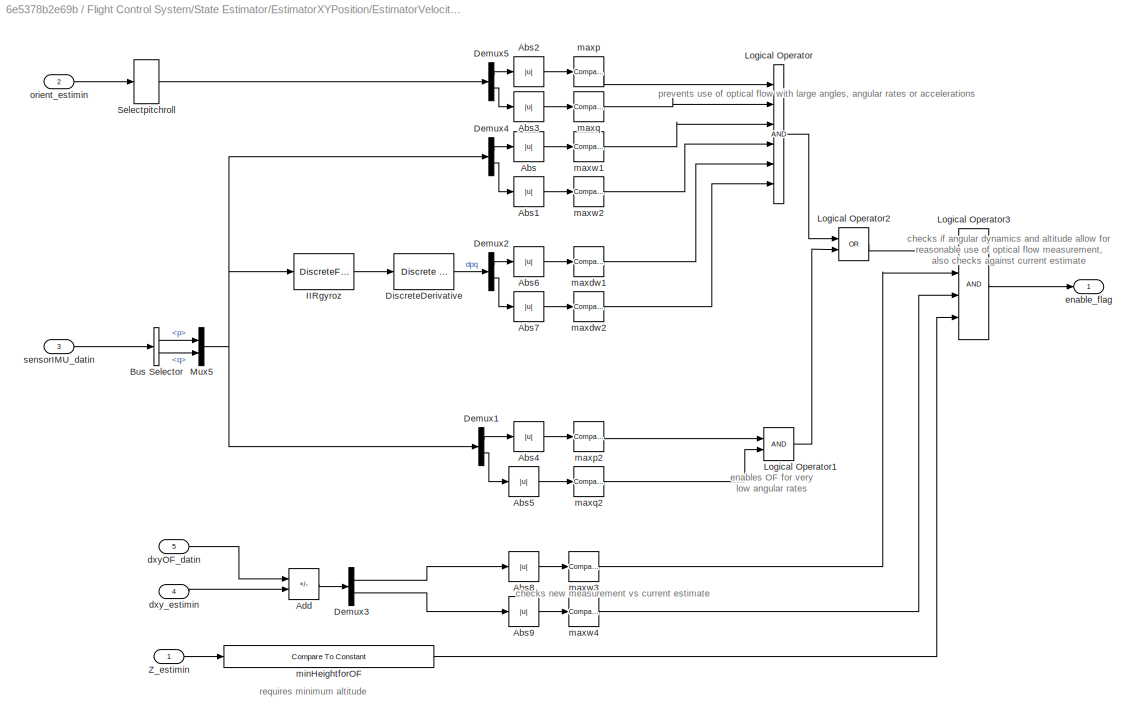
BLOCK [SubSystem] Flight Control System/State Estimator/EstimatorXYPosition/EstimatorVelocity/DataHandling
  Ports = [5, 1]
  RequestExecContextInheritance = off
BLOCK [Abs] Flight Control System/State Estimator/EstimatorXYPosition/EstimatorVelocity/DataHandling/Abs
  SaturateOnIntegerOverflow = off
BLOCK [Abs] Flight Control System/State Estimator/EstimatorXYPosition/EstimatorVelocity/DataHandling/Abs1
  SaturateOnIntegerOverflow = off
BLOCK [Abs] Flight Control System/State Estimator/EstimatorXYPosition/EstimatorVelocity/DataHandling/Abs2
  SaturateOnIntegerOverflow = off
BLOCK [Abs] Flight Control System/State Estimator/EstimatorXYPosition/EstimatorVelocity/DataHandling/Abs3
  SaturateOnIntegerOverflow = off
BLOCK [Abs] Flight Control System/State Estimator/EstimatorXYPosition/EstimatorVelocity/DataHandling/Abs4
  SaturateOnIntegerOverflow = off
BLOCK [Abs] Flight Control System/State Estimator/EstimatorXYPosition/EstimatorVelocity/DataHandling/Abs5
  SaturateOnIntegerOverflow = off
BLOCK [Abs] Flight Control System/State Estimator/EstimatorXYPosition/EstimatorVelocity/DataHandling/Abs6
  SaturateOnIntegerOverflow = off
BLOCK [Abs] Flight Control System/State Estimator/EstimatorXYPosition/EstimatorVelocity/DataHandling/Abs7
  SaturateOnIntegerOverflow = off
BLOCK [Abs] Flight Control System/State Estimator/EstimatorXYPosition/EstimatorVelocity/DataHandling/Abs8
  SaturateOnIntegerOverflow = off
BLOCK [Abs] Flight Control System/State Estimator/EstimatorXYPosition/EstimatorVelocity/DataHandling/Abs9
  SaturateOnIntegerOverflow = off
BLOCK [Sum] Flight Control System/State Estimator/EstimatorXYPosition/EstimatorVelocity/DataHandling/Add
  IconShape = rectangular
  Inputs = -+
  Ports = [2, 1]
BLOCK [BusSelector] Flight Control System/State Estimator/EstimatorXYPosition/EstimatorVelocity/DataHandling/Bus Selector
  OutputSignals = p,q
  Ports = [1, 2]
BLOCK [Demux] Flight Control System/State Estimator/EstimatorXYPosition/EstimatorVelocity/DataHandling/Demux1
  Outputs = 2
  Ports = [1, 2]
BLOCK [Demux] Flight Control System/State Estimator/EstimatorXYPosition/EstimatorVelocity/DataHandling/Demux2
  Outputs = 2
  Ports = [1, 2]
BLOCK [Demux] Flight Control System/State Estimator/EstimatorXYPosition/EstimatorVelocity/DataHandling/Demux3
  Outputs = 2
  Ports = [1, 2]
BLOCK [Demux] Flight Control System/State Estimator/EstimatorXYPosition/EstimatorVelocity/DataHandling/Demux4
  Outputs = 2
  Ports = [1, 2]
BLOCK [Demux] Flight Control System/State Estimator/EstimatorXYPosition/EstimatorVelocity/DataHandling/Demux5
  Outputs = 2
  Ports = [1, 2]
BLOCK [Reference] Flight Control System/State Estimator/EstimatorXYPosition/EstimatorVelocity/DataHandling/DiscreteDerivative  REF=simulink/Discrete/Discrete Derivative
  Ports = [1, 1]
  SourceBlock = simulink/Discrete/Discrete Derivative
  SourceProductBaseCode = SL
  SourceType = Discrete Derivative
BLOCK [DiscreteFilter] Flight Control System/State Estimator/EstimatorXYPosition/EstimatorVelocity/DataHandling/IIRgyroz
  Denominator = Estimator.IMU.filterGyroDen
  InputPortMap = u0
  Numerator = Estimator.IMU.filterGyroNum
  Ports = [1, 1]
BLOCK [Logic] Flight Control System/State Estimator/EstimatorXYPosition/EstimatorVelocity/DataHandling/Logical Operator
  AllPortsSameDT = off
  Inputs = 6
  OutDataTypeStr = boolean
  Ports = [6, 1]
BLOCK [Logic] Flight Control System/State Estimator/EstimatorXYPosition/EstimatorVelocity/DataHandling/Logical Operator1
  AllPortsSameDT = off
  OutDataTypeStr = boolean
  Ports = [2, 1]
BLOCK [Logic] Flight Control System/State Estimator/EstimatorXYPosition/EstimatorVelocity/DataHandling/Logical Operator2
  AllPortsSameDT = off
  Operator = OR
  OutDataTypeStr = boolean
  Ports = [2, 1]
BLOCK [Logic] Flight Control System/State Estimator/EstimatorXYPosition/EstimatorVelocity/DataHandling/Logical Operator3
  AllPortsSameDT = off
  Inputs = 4
  OutDataTypeStr = boolean
  Ports = [4, 1]
BLOCK [Mux] Flight Control System/State Estimator/EstimatorXYPosition/EstimatorVelocity/DataHandling/Mux5
  DisplayOption = bar
  Inputs = 2
  Ports = [2, 1]
BLOCK [Selector] Flight Control System/State Estimator/EstimatorXYPosition/EstimatorVelocity/DataHandling/Selectpitchroll
  IndexOptions = Index vector (dialog)
  Indices = [2 3]
  InputPortWidth = 3
  OutputSizes = 1
  Ports = [1, 1]
BLOCK [Inport] Flight Control System/State Estimator/EstimatorXYPosition/EstimatorVelocity/DataHandling/Z_estimin
BLOCK [Inport] Flight Control System/State Estimator/EstimatorXYPosition/EstimatorVelocity/DataHandling/dxyOF_datin
  Port = 5
BLOCK [Inport] Flight Control System/State Estimator/EstimatorXYPosition/EstimatorVelocity/DataHandling/dxy_estimin
  Port = 4
BLOCK [Outport] Flight Control System/State Estimator/EstimatorXYPosition/EstimatorVelocity/DataHandling/enable_flag
  VectorParamsAs1DForOutWhenUnconnected = off
BLOCK [Reference] Flight Control System/State Estimator/EstimatorXYPosition/EstimatorVelocity/DataHandling/maxdw1  REF=simulink/Logic and Bit
Operations/Compare
To Constant
  Ports = [1, 1]
  SourceBlock = simulink/Logic and Bit\nOperations/Compare\nTo Constant
  SourceProductBaseCode = SL
  SourceType = Compare To Constant
BLOCK [Reference] Flight Control System/State Estimator/EstimatorXYPosition/EstimatorVelocity/DataHandling/maxdw2  REF=simulink/Logic and Bit
Operations/Compare
To Constant
  Ports = [1, 1]
  SourceBlock = simulink/Logic and Bit\nOperations/Compare\nTo Constant
  SourceProductBaseCode = SL
  SourceType = Compare To Constant
BLOCK [Reference] Flight Control System/State Estimator/EstimatorXYPosition/EstimatorVelocity/DataHandling/maxp  REF=simulink/Logic and Bit
Operations/Compare
To Constant
  Ports = [1, 1]
  SourceBlock = simulink/Logic and Bit\nOperations/Compare\nTo Constant
  SourceProductBaseCode = SL
  SourceType = Compare To Constant
BLOCK [Reference] Flight Control System/State Estimator/EstimatorXYPosition/EstimatorVelocity/DataHandling/maxp2  REF=simulink/Logic and Bit
Operations/Compare
To Constant
  Ports = [1, 1]
  SourceBlock = simulink/Logic and Bit\nOperations/Compare\nTo Constant
  SourceProductBaseCode = SL
  SourceType = Compare To Constant
BLOCK [Reference] Flight Control System/State Estimator/EstimatorXYPosition/EstimatorVelocity/DataHandling/maxq  REF=simulink/Logic and Bit
Operations/Compare
To Constant
  Ports = [1, 1]
  SourceBlock = simulink/Logic and Bit\nOperations/Compare\nTo Constant
  SourceProductBaseCode = SL
  SourceType = Compare To Constant
BLOCK [Reference] Flight Control System/State Estimator/EstimatorXYPosition/EstimatorVelocity/DataHandling/maxq2  REF=simulink/Logic and Bit
Operations/Compare
To Constant
  Ports = [1, 1]
  SourceBlock = simulink/Logic and Bit\nOperations/Compare\nTo Constant
  SourceProductBaseCode = SL
  SourceType = Compare To Constant
BLOCK [Reference] Flight Control System/State Estimator/EstimatorXYPosition/EstimatorVelocity/DataHandling/maxw1  REF=simulink/Logic and Bit
Operations/Compare
To Constant
  Ports = [1, 1]
  SourceBlock = simulink/Logic and Bit\nOperations/Compare\nTo Constant
  SourceProductBaseCode = SL
  SourceType = Compare To Constant
BLOCK [Reference] Flight Control System/State Estimator/EstimatorXYPosition/EstimatorVelocity/DataHandling/maxw2  REF=simulink/Logic and Bit
Operations/Compare
To Constant
  Ports = [1, 1]
  SourceBlock = simulink/Logic and Bit\nOperations/Compare\nTo Constant
  SourceProductBaseCode = SL
  SourceType = Compare To Constant
BLOCK [Reference] Flight Control System/State Estimator/EstimatorXYPosition/EstimatorVelocity/DataHandling/maxw3  REF=simulink/Logic and Bit
Operations/Compare
To Constant
  Ports = [1, 1]
  SourceBlock = simulink/Logic and Bit\nOperations/Compare\nTo Constant
  SourceProductBaseCode = SL
  SourceType = Compare To Constant
BLOCK [Reference] Flight Control System/State Estimator/EstimatorXYPosition/EstimatorVelocity/DataHandling/maxw4  REF=simulink/Logic and Bit
Operations/Compare
To Constant
  Ports = [1, 1]
  SourceBlock = simulink/Logic and Bit\nOperations/Compare\nTo Constant
  SourceProductBaseCode = SL
  SourceType = Compare To Constant
BLOCK [Reference] Flight Control System/State Estimator/EstimatorXYPosition/EstimatorVelocity/DataHandling/minHeightforOF  REF=simulink/Logic and Bit
Operations/Compare
To Constant
  Ports = [1, 1]
  SourceBlock = simulink/Logic and Bit\nOperations/Compare\nTo Constant
  SourceProductBaseCode = SL
  SourceType = Compare To Constant
BLOCK [Inport] Flight Control System/State Estimator/EstimatorXYPosition/EstimatorVelocity/DataHandling/orient_estimin
  Port = 2
BLOCK [Inport] Flight Control System/State Estimator/EstimatorXYPosition/EstimatorVelocity/DataHandling/sensorIMU_datin
  Port = 3
BLOCK [Delay] Flight Control System/State Estimator/EstimatorXYPosition/EstimatorVelocity/Delay
  DelayLength = 1
  InitialCondition = 0
  InputPortMap = u0
  Ports = [1, 1]
BLOCK [Gain] Flight Control System/State Estimator/EstimatorXYPosition/EstimatorVelocity/Gain
  Gain = -1
BLOCK [Reference] Flight Control System/State Estimator/EstimatorXYPosition/EstimatorVelocity/KalmanFilter_dxdy  REF=ctrlSharedLib/Kalman Filter
  Ports = [3, 1]
  SourceBlock = ctrlSharedLib/Kalman Filter
  SourceProductBaseCode = CT,ID
  SourceType = ctrlKalmanFilter
BLOCK [Selector] Flight Control System/State Estimator/EstimatorXYPosition/EstimatorVelocity/Select dxy
  IndexOptions = Index vector (dialog)
  Indices = [1 2]
  InputPortWidth = 3
  OutputSizes = 1
  Ports = [1, 1]
BLOCK [Switch] Flight Control System/State Estimator/EstimatorXYPosition/EstimatorVelocity/Switch
  Criteria = u2 > Threshold
  InputSameDT = off
  SaturateOnIntegerOverflow = off
BLOCK [Inport] Flight Control System/State Estimator/EstimatorXYPosition/EstimatorVelocity/Z_estimin
  Port = 2
  SampleTime = Ts
BLOCK [InportShadow] Flight Control System/State Estimator/EstimatorXYPosition/EstimatorVelocity/Z_estimin1
  Port = 2
  SampleTime = Ts
BLOCK [Outport] Flight Control System/State Estimator/EstimatorXYPosition/EstimatorVelocity/dxy_estimout
  VectorParamsAs1DForOutWhenUnconnected = off
BLOCK [Gain] Flight Control System/State Estimator/EstimatorXYPosition/EstimatorVelocity/opticalFlowErrorCorrect
  Gain = 1.15
BLOCK [Inport] Flight Control System/State Estimator/EstimatorXYPosition/EstimatorVelocity/opticalFlow_datin
BLOCK [Inport] Flight Control System/State Estimator/EstimatorXYPosition/EstimatorVelocity/orient_estimin
  Port = 4
BLOCK [Inport] Flight Control System/State Estimator/EstimatorXYPosition/EstimatorVelocity/sensorIMU_datin
  Port = 3
BLOCK [SubSystem] Flight Control System/State Estimator/EstimatorXYPosition/EstimatorXYPosition
  Ports = [4, 1]
  RequestExecContextInheritance = off
BLOCK [Math] Flight Control System/State Estimator/EstimatorXYPosition/EstimatorXYPosition/Math Function
  Operator = transpose
  Ports = [1, 1]
  SignedPower = on
BLOCK [Mux] Flight Control System/State Estimator/EstimatorXYPosition/EstimatorXYPosition/Mux2
  DisplayOption = bar
  Inputs = 2
  Ports = [2, 1]
BLOCK [Product] Flight Control System/State Estimator/EstimatorXYPosition/EstimatorXYPosition/Product
  Multiplication = Matrix(*)
  Ports = [2, 1]
BLOCK [Reference] Flight Control System/State Estimator/EstimatorXYPosition/EstimatorXYPosition/Rotation Angles to Direction Cosine Matrix  REF=sharedtransform/Rotation Angles to
Direction Cosine Matrix
  AttributesFormatString = Rotation Order: %<rotationOrder>
  Ports = [1, 1]
  SourceBlock = sharedtransform/Rotation Angles to\nDirection Cosine Matrix
  SourceProductBaseCode = AE,PW,MT,VE,VP
  SourceType = Ang2DCM
BLOCK [Selector] Flight Control System/State Estimator/EstimatorXYPosition/EstimatorXYPosition/SelectdXY
  IndexOptions = Index vector (dialog)
  Indices = [1 2]
  InputPortWidth = 3
  OutputSizes = 1
  Ports = [1, 1]
BLOCK [DiscreteIntegrator] Flight Control System/State Estimator/EstimatorXYPosition/EstimatorXYPosition/SimplyIntegrateVelocity
  ExternalReset = rising
  ICPrevOutput = DiscIntNeverNeededParam
  ICPrevScaledInput = DiscIntNeverNeededParam
  InitialConditionSetting = Auto
  Ports = [2, 1]
  SampleTime = Ts
BLOCK [Outport] Flight Control System/State Estimator/EstimatorXYPosition/EstimatorXYPosition/XY_estimout
  VectorParamsAs1DForOutWhenUnconnected = off
BLOCK [Inport] Flight Control System/State Estimator/EstimatorXYPosition/EstimatorXYPosition/controlModePosVSOrient_flagin
  Port = 3
BLOCK [Inport] Flight Control System/State Estimator/EstimatorXYPosition/EstimatorXYPosition/dxy_estimin
BLOCK [Inport] Flight Control System/State Estimator/EstimatorXYPosition/EstimatorXYPosition/dz_estimin
  Port = 4
BLOCK [Inport] Flight Control System/State Estimator/EstimatorXYPosition/EstimatorXYPosition/orient_estimin
  NameLocation = top
  Port = 2
  SampleTime = Ts
BLOCK [Outport] Flight Control System/State Estimator/EstimatorXYPosition/XY_estimout
  VectorParamsAs1DForOutWhenUnconnected = off
BLOCK [Inport] Flight Control System/State Estimator/EstimatorXYPosition/Z_estimin
  Port = 4
BLOCK [Inport] Flight Control System/State Estimator/EstimatorXYPosition/controlModePosVSOrient_flagin
  Port = 2
BLOCK [Outport] Flight Control System/State Estimator/EstimatorXYPosition/dxy_estimout
  Port = 2
  VectorParamsAs1DForOutWhenUnconnected = off
BLOCK [Inport] Flight Control System/State Estimator/EstimatorXYPosition/dz_estimin
  Port = 5
BLOCK [Inport] Flight Control System/State Estimator/EstimatorXYPosition/opticalFlow_datin
BLOCK [Inport] Flight Control System/State Estimator/EstimatorXYPosition/orient_estimin
  Port = 6
BLOCK [Inport] Flight Control System/State Estimator/EstimatorXYPosition/sensorIMU_datin
  Port = 3
BLOCK [Outport] Flight Control System/State Estimator/Out Bus Element
  VectorParamsAs1DForOutWhenUnconnected = off
BLOCK [Outport] Flight Control System/State Estimator/Out Bus Element1
  VectorParamsAs1DForOutWhenUnconnected = off
BLOCK [Outport] Flight Control System/State Estimator/Out Bus Element10
  VectorParamsAs1DForOutWhenUnconnected = off
BLOCK [Outport] Flight Control System/State Estimator/Out Bus Element11
  VectorParamsAs1DForOutWhenUnconnected = off
BLOCK [Outport] Flight Control System/State Estimator/Out Bus Element2
  VectorParamsAs1DForOutWhenUnconnected = off
BLOCK [Outport] Flight Control System/State Estimator/Out Bus Element3
  VectorParamsAs1DForOutWhenUnconnected = off
BLOCK [Outport] Flight Control System/State Estimator/Out Bus Element4
  VectorParamsAs1DForOutWhenUnconnected = off
BLOCK [Outport] Flight Control System/State Estimator/Out Bus Element5
  VectorParamsAs1DForOutWhenUnconnected = off
BLOCK [Outport] Flight Control System/State Estimator/Out Bus Element6
  VectorParamsAs1DForOutWhenUnconnected = off
BLOCK [Outport] Flight Control System/State Estimator/Out Bus Element7
  VectorParamsAs1DForOutWhenUnconnected = off
BLOCK [Outport] Flight Control System/State Estimator/Out Bus Element8
  VectorParamsAs1DForOutWhenUnconnected = off
BLOCK [Outport] Flight Control System/State Estimator/Out Bus Element9
  VectorParamsAs1DForOutWhenUnconnected = off
BLOCK [Scope] Flight Control System/State Estimator/Scope
  Floating = off
  NumInputPorts = 1
  Ports = [1]
  ScopeSpecificationString = Simulink.scopes.TimeScopeBlockCfg('CurrentConfiguration', extmgr.ConfigurationSet(extmgr.Configuration('Core','General UI',true),extmgr.Configuration('Core','Source UI',true),extmgr.Configuration('Sources','WiredSimulink',true),extmgr.Configuration('Visuals','Time Domain',true,'SerializedDisplays',{struct('MinYLimReal','-16.41306','MaxYLimReal','2.26514','YLabelReal','','MinYLimMag','0.00000','Max...<+1696ch>
BLOCK [SubSystem] Flight Control System/State Estimator/SensorPreprocessing
  Ports = [2, 3]
  RequestExecContextInheritance = off
BLOCK [Bias] Flight Control System/State Estimator/SensorPreprocessing/Assuming that calib was done level!
  Bias = [0 0 +g 0 0 0]
  SaturateOnIntegerOverflow = off
BLOCK [BusCreator] Flight Control System/State Estimator/SensorPreprocessing/Bus Creator3
  DisplayOption = bar
  InheritFromInputs = on
  Inputs = 6
  Ports = [6, 1]
BLOCK [BusSelector] Flight Control System/State Estimator/SensorPreprocessing/Bus Selector
  OutputSignals = ddx,ddy,ddz,p,q,r
  Ports = [1, 6]
BLOCK [BusSelector] Flight Control System/State Estimator/SensorPreprocessing/Bus Selector1
  OutputSignals = altitude_sonar,prs
  Ports = [1, 2]
BLOCK [BusSelector] Flight Control System/State Estimator/SensorPreprocessing/Bus Selector2
  OutputSignals = HAL_acc_SI,HAL_gyro_SI,HAL_ultrasound_SI,HAL_pressure_SI,HAL_vbat_SI
  Ports = [1, 5]
BLOCK [BusSelector] Flight Control System/State Estimator/SensorPreprocessing/Bus Selector3
  OutputSignals = HALSensors
  Ports = [1, 1]
BLOCK [DataTypeConversion] Flight Control System/State Estimator/SensorPreprocessing/Data Type Conversion
  RndMeth = Floor
  SaturateOnIntegerOverflow = off
BLOCK [Demux] Flight Control System/State Estimator/SensorPreprocessing/Demux1
  Outputs = 3
  Ports = [1, 3]
BLOCK [Demux] Flight Control System/State Estimator/SensorPreprocessing/Demux2
  Outputs = 3
  Ports = [1, 3]
BLOCK [DiscreteFir] Flight Control System/State Estimator/SensorPreprocessing/FIR_IMUaccel
  Coefficients = Estimator.IMU.filterAccel.Coefficients
  InputPortMap = u0
  OutputPortMap = o0
  Ports = [1, 1]
BLOCK [DiscreteFilter] Flight Control System/State Estimator/SensorPreprocessing/IIR_IMUgyro_r
  Denominator = Estimator.IMU.filterGyroDen
  InputPortMap = u0
  Numerator = Estimator.IMU.filterGyroNum
  Ports = [1, 1]
BLOCK [Mux] Flight Control System/State Estimator/SensorPreprocessing/Mux1
  DisplayOption = bar
  Inputs = 6
  Ports = [6, 1]
BLOCK [Selector] Flight Control System/State Estimator/SensorPreprocessing/Select Accel
  IndexOptions = Index vector (dialog)
  Indices = [1 2 3]
  InputPortWidth = 6
  OutputSizes = 1
  Ports = [1, 1]
BLOCK [Selector] Flight Control System/State Estimator/SensorPreprocessing/Select pqr
  IndexOptions = Index vector (dialog)
  Indices = [4 5 6]
  InputPortWidth = 6
  OutputSizes = 1
  Ports = [1, 1]
BLOCK [Selector] Flight Control System/State Estimator/SensorPreprocessing/Selector2
  IndexOptions = Index vector (dialog)
  Indices = [1:6]
  InputPortWidth = 8
  OutputSizes = 1
  Ports = [1, 1]
BLOCK [Selector] Flight Control System/State Estimator/SensorPreprocessing/Selector4
  IndexOptions = Index vector (dialog)
  Indices = [7]
  InputPortWidth = 8
  NameLocation = left
  OutputSizes = 1
  Ports = [1, 1]
BLOCK [Sum] Flight Control System/State Estimator/SensorPreprocessing/Sum1
  Inputs = |+-
  Ports = [2, 1]
BLOCK [Sum] Flight Control System/State Estimator/SensorPreprocessing/Sum2
  Inputs = -+|
  Ports = [2, 1]
BLOCK [Outport] Flight Control System/State Estimator/SensorPreprocessing/altSonar_datout
  NameLocation = top
  Port = 2
  VectorParamsAs1DForOutWhenUnconnected = off
BLOCK [Gain] Flight Control System/State Estimator/SensorPreprocessing/inverseIMU_gain
  Gain = Estimator.inverseIMUGain
  OutDataTypeStr = single
  ParamDataTypeStr = single
BLOCK [Outport] Flight Control System/State Estimator/SensorPreprocessing/prsDelta_datout
  Port = 3
  VectorParamsAs1DForOutWhenUnconnected = off
BLOCK [Inport] Flight Control System/State Estimator/SensorPreprocessing/sensorCalibration_datin
  Port = 2
BLOCK [Outport] Flight Control System/State Estimator/SensorPreprocessing/sensorIMU_datout
  VectorParamsAs1DForOutWhenUnconnected = off
BLOCK [Inport] Flight Control System/State Estimator/SensorPreprocessing/sensordata_datin
BLOCK [SubSystem] Flight Control System/State Estimator/SensorPreprocessing/sensordata_group
  Ports = [5, 1]
  RequestExecContextInheritance = off
BLOCK [BusSelector] Flight Control System/State Estimator/SensorPreprocessing/sensordata_group/Bus Selector1
  OutputSignals = vbat_V,vbat_percentage
  Ports = [1, 2]
BLOCK [BusSelector] Flight Control System/State Estimator/SensorPreprocessing/sensordata_group/Bus Selector3
  OutputSignals = x,y,z
  Ports = [1, 3]
BLOCK [BusSelector] Flight Control System/State Estimator/SensorPreprocessing/sensordata_group/Bus Selector4
  OutputSignals = x,y,z
  Ports = [1, 3]
BLOCK [BusSelector] Flight Control System/State Estimator/SensorPreprocessing/sensordata_group/Bus Selector5
  OutputSignals = altitude
  Ports = [1, 1]
BLOCK [BusSelector] Flight Control System/State Estimator/SensorPreprocessing/sensordata_group/Bus Selector6
  OutputSignals = pressure
  Ports = [1, 1]
BLOCK [Inport] Flight Control System/State Estimator/SensorPreprocessing/sensordata_group/HAL_acc_SI
  OutDataTypeStr = Bus: HAL_acc_SI_t
BLOCK [Inport] Flight Control System/State Estimator/SensorPreprocessing/sensordata_group/HAL_gyro_SI
  OutDataTypeStr = Bus: HAL_gyro_SI_t
  Port = 2
BLOCK [Inport] Flight Control System/State Estimator/SensorPreprocessing/sensordata_group/HAL_pressure_SI
  OutDataTypeStr = Bus: HAL_pressure_SI_t
  Port = 4
BLOCK [Inport] Flight Control System/State Estimator/SensorPreprocessing/sensordata_group/HAL_ultrasound_SI
  OutDataTypeStr = Bus: HAL_ultrasound_SI_t
  Port = 3
BLOCK [Inport] Flight Control System/State Estimator/SensorPreprocessing/sensordata_group/HAL_vbat_SI
  OutDataTypeStr = Bus: HAL_vbat_SI_t
  Port = 5
BLOCK [Outport] Flight Control System/State Estimator/SensorPreprocessing/sensordata_group/Out Bus Element
  VectorParamsAs1DForOutWhenUnconnected = off
BLOCK [Outport] Flight Control System/State Estimator/SensorPreprocessing/sensordata_group/Out Bus Element1
  VectorParamsAs1DForOutWhenUnconnected = off
BLOCK [Outport] Flight Control System/State Estimator/SensorPreprocessing/sensordata_group/Out Bus Element2
  VectorParamsAs1DForOutWhenUnconnected = off
BLOCK [Outport] Flight Control System/State Estimator/SensorPreprocessing/sensordata_group/Out Bus Element3
  VectorParamsAs1DForOutWhenUnconnected = off
BLOCK [Outport] Flight Control System/State Estimator/SensorPreprocessing/sensordata_group/Out Bus Element4
  VectorParamsAs1DForOutWhenUnconnected = off
BLOCK [Outport] Flight Control System/State Estimator/SensorPreprocessing/sensordata_group/Out Bus Element5
  VectorParamsAs1DForOutWhenUnconnected = off
BLOCK [Outport] Flight Control System/State Estimator/SensorPreprocessing/sensordata_group/Out Bus Element6
  VectorParamsAs1DForOutWhenUnconnected = off
BLOCK [Outport] Flight Control System/State Estimator/SensorPreprocessing/sensordata_group/Out Bus Element7
  VectorParamsAs1DForOutWhenUnconnected = off
BLOCK [Outport] Flight Control System/State Estimator/SensorPreprocessing/sensordata_group/Out Bus Element8
  VectorParamsAs1DForOutWhenUnconnected = off
BLOCK [Outport] Flight Control System/State Estimator/SensorPreprocessing/sensordata_group/Out Bus Element9
  VectorParamsAs1DForOutWhenUnconnected = off
BLOCK [Terminator] Flight Control System/State Estimator/Terminator
BLOCK [Terminator] Flight Control System/State Estimator/Terminator1
BLOCK [Inport] Flight Control System/State Estimator/controlModePosVSOrient_flagin
  OutDataTypeStr = boolean
BLOCK [Inport] Flight Control System/State Estimator/opticalFlow_datin
  Port = 3
BLOCK [Inport] Flight Control System/State Estimator/sensorCalibration_datin
  Port = 4
BLOCK [Inport] Flight Control System/State Estimator/sensor_data_in
  Port = 2
BLOCK [ToWorkspace] Flight Control System/To Workspace
  FixptAsFi = on
  MaxDataPoints = inf
  Ports = [1]
  SampleTime = -1
  SaveFormat = Structure With Time
  VariableName = estimatedStates
BLOCK [Inport] Flight Control System/Vision-based Data
  Port = 3
BLOCK [Constant] Flight Control System/controlModePosVsOrient
  OutDataTypeStr = boolean
BLOCK [Outport] Flight Control System/motorCmds
  VectorParamsAs1DForOutWhenUnconnected = off
BLOCK [Inport] Image Data
  BusOutputAsStruct = on
  InitFcn = codertarget.parrot.internal.inportCallback(gcb);
  OutDataTypeStr = uint8
  Port = 3
  PortDimensions = [4 9600]
  Tag = IP_IN
BLOCK [SubSystem] Image Processing System
  InitFcn = codertarget.parrot.internal.ipSubsystemCallback(gcb);
  Ports = [1, 1]
  RTWFcnName = ImageFunction
  RTWFcnNameOpts = User specified
  RTWSystemCode = Inline
  RequestExecContextInheritance = off
  SystemSampleTime = 40*Ts
  Tag = IP_SUB
  TreatAsAtomicUnit = on
  TreatAsGroupedWhenPropagatingVariantConditions = off
BLOCK [Constant] Image Processing System/Constant
  Value = 0
BLOCK [Inport] Image Processing System/Image Data
BLOCK [Reference] Image Processing System/PARROT Image Conversion  REF=parrotlib/PARROT Image Conversion
  Ports = [1, 3]
  SourceBlock = parrotlib/PARROT Image Conversion
  SourceProductBaseCode = MINIDRONES
  SourceType = parrot.ImageProcess
BLOCK [Terminator] Image Processing System/Terminator
  NameLocation = top
BLOCK [Terminator] Image Processing System/Terminator1
  NameLocation = top
BLOCK [Terminator] Image Processing System/Terminator2
  NameLocation = top
BLOCK [Outport] Image Processing System/Vision-based Data
  VectorParamsAs1DForOutWhenUnconnected = off
BLOCK [RateTransition] Rate Transition
  Deterministic = off
BLOCK [Inport] Sensors
  BusOutputAsStruct = on
  OutDataTypeStr = Bus: SensorsBus
  Port = 2
ANNOTATION (root): <copyright redacted>
ANNOTATION (root): Flight Control System
ANNOTATION Flight Control System: Derived from the work by Sertac Karaman and Fabian Riether
ANNOTATION Flight Control System: Position or Orientation Control
ANNOTATION Flight Control System: Use '1' for X, Y, Z and Yaw control Use '0' for Pitch, Roll and Yaw control
ANNOTATION Flight Control System: Use this subsystem to change the path of the Minidrone using the Vision-based Data as an additional input.
ANNOTATION Flight Control System/Controller/Attitude: ATTITUDE
ANNOTATION Flight Control System/Controller/gravity feedforward//equilibrium thrust: ALTITUDE
ANNOTATION Flight Control System/Crash Prediction Flags/Normal condition and landing: If the land_flag is set, wait till the drone reaches a height of -0.3m and then shut down the drone using a 255 flag
ANNOTATION Flight Control System/Crash Prediction Flags/Normal condition and landing: When the land_drone flag is not set, pass a '0' to the flag to indicate no error
ANNOTATION Flight Control System/Crash Prediction Flags/Optical flow error check: If the land_flag is set, then disable Optical Flow check
ANNOTATION Flight Control System/Path Planning: Estimated Values from the State Estimator
ANNOTATION Flight Control System/Path Planning: This subsystem contains the logic to land the drone. The drone starts landing if the land_drone flag is set by clicking on the "Land" button on the Parrot_FlightInterface. The drone also starts landing if the "time_remaining" is less than 5s.
ANNOTATION Flight Control System/Path Planning: Vision-based Data from the Image Processing System
ANNOTATION Flight Control System/State Estimator: Derived frrom the work by Sertac Karaman and Fabian Riether
ANNOTATION Flight Control System/State Estimator/Complementary Filter: Derived from the work by Fabian Riether Inspired by http://www.pieter-jan.com/node/11
ANNOTATION Flight Control System/State Estimator/EstimatorXYPosition/EstimatorVelocity/DataHandling: checks if angular dynamics and altitude allow for reasonable use of optical flow measurement, also checks against current estimate
ANNOTATION Flight Control System/State Estimator/EstimatorXYPosition/EstimatorVelocity/DataHandling: checks new measurement vs current estimate
ANNOTATION Flight Control System/State Estimator/EstimatorXYPosition/EstimatorVelocity/DataHandling: enables OF for very low angular rates
ANNOTATION Flight Control System/State Estimator/EstimatorXYPosition/EstimatorVelocity/DataHandling: prevents use of optical flow with large angles, angular rates or accelerations
ANNOTATION Flight Control System/State Estimator/EstimatorXYPosition/EstimatorVelocity/DataHandling: requires minimum altitude
ANNOTATION Flight Control System/State Estimator/EstimatorXYPosition/EstimatorXYPosition: Switching from orientationControl to Position control reset the current world position estimate (happens when using no markers)
ANNOTATION Flight Control System/State Estimator/SensorPreprocessing: IMU
ANNOTATION Image Processing System: Note: Develop the image processing algorithm and use the 'Vision-based Data' outport to send the processed data to the Flight Control System. The output data can be of any type and size (Try to avoid large data transfers).
ANNOTATION Image Processing System: Note: The PARROT Image Conversion block takes the raw Y1UY2V data provided by the drone's downward-facing camera, and converts the color space to the desired RGB or YUV output.
LINE AC cmd:1 -> Flight Control System:1
LINE Flight Control System/Bus Selector1:1 -> Flight Control System/State Estimator:3
LINE Flight Control System/Bus Selector4:1 -> Flight Control System/Bus Selector1:1
LINE Flight Control System/Bus Selector4:2 -> Flight Control System/State Estimator:4
LINE Flight Control System/Control Mode Update:1 -> Flight Control System/Path Planning:1
LINE Flight Control System/Controller/Attitude/Add:1 -> Flight Control System/Controller/Attitude/Discrete-Time Integrator:1
LINE Flight Control System/Controller/Attitude/Bus Selector3:1 -> Flight Control System/Controller/Attitude/Mux:1
LINE Flight Control System/Controller/Attitude/Bus Selector3:2 -> Flight Control System/Controller/Attitude/Mux:2
LINE Flight Control System/Controller/Attitude/Bus Selector4:1 -> Flight Control System/Controller/Attitude/Mux1:1
LINE Flight Control System/Controller/Attitude/Bus Selector4:2 -> Flight Control System/Controller/Attitude/Mux1:2
LINE Flight Control System/Controller/Attitude/D_pr:1 -> Flight Control System/Controller/Attitude/Sum16:3
LINE Flight Control System/Controller/Attitude/Delay:1 -> Flight Control System/Controller/Attitude/antiWU_Gain:1
LINE Flight Control System/Controller/Attitude/Demux:1 -> Flight Control System/Controller/Attitude/tau_pitch:1
LINE Flight Control System/Controller/Attitude/Demux:2 -> Flight Control System/Controller/Attitude/tau_roll:1
NET Flight Control System/Controller/Attitude/Discrete-Time Integrator:1 -> Flight Control System/Controller/Attitude/Delay:1, Flight Control System/Controller/Attitude/I_pr:1
LINE Flight Control System/Controller/Attitude/I_pr:1 -> Flight Control System/Controller/Attitude/Sum16:2
LINE Flight Control System/Controller/Attitude/Mux1:1 -> Flight Control System/Controller/Attitude/D_pr:1
LINE Flight Control System/Controller/Attitude/Mux:1 -> Flight Control System/Controller/Attitude/Sum19:2
LINE Flight Control System/Controller/Attitude/P_pr:1 -> Flight Control System/Controller/Attitude/Sum16:1
LINE Flight Control System/Controller/Attitude/Sum16:1 -> Flight Control System/Controller/Attitude/Demux:1
NET Flight Control System/Controller/Attitude/Sum19:1 -> Flight Control System/Controller/Attitude/Add:1, Flight Control System/Controller/Attitude/P_pr:1
LINE Flight Control System/Controller/Attitude/antiWU_Gain:1 -> Flight Control System/Controller/Attitude/Add:2
LINE Flight Control System/Controller/Attitude/refAttitude:1 -> Flight Control System/Controller/Attitude/Sum19:1
NET Flight Control System/Controller/Attitude/states_estim:1 -> Flight Control System/Controller/Attitude/Bus Selector3:1, Flight Control System/Controller/Attitude/Bus Selector4:1
LINE Flight Control System/Controller/Attitude:1 -> Flight Control System/Controller/ControlMixer:1
LINE Flight Control System/Controller/Attitude:2 -> Flight Control System/Controller/ControlMixer:2
LINE Flight Control System/Controller/ControlMixer/Add:1 -> Flight Control System/Controller/ControlMixer/Environment Controller:2
LINE Flight Control System/Controller/ControlMixer/Environment Controller:1 -> Flight Control System/Controller/ControlMixer/Mux2:3
LINE Flight Control System/Controller/ControlMixer/Mux2:1 -> Flight Control System/Controller/ControlMixer/Product:2
LINE Flight Control System/Controller/ControlMixer/Pitch correction:1 -> Flight Control System/Controller/ControlMixer/Add:2
LINE Flight Control System/Controller/ControlMixer/Product:1 -> Flight Control System/Controller/ControlMixer/thrusts_refout:1
LINE Flight Control System/Controller/ControlMixer/TorqueTotalThrustToThrustPerMotor:1 -> Flight Control System/Controller/ControlMixer/Product:1
NET Flight Control System/Controller/ControlMixer/tau_pitch:1 -> Flight Control System/Controller/ControlMixer/Add:1, Flight Control System/Controller/ControlMixer/Environment Controller:1
LINE Flight Control System/Controller/ControlMixer/tau_roll:1 -> Flight Control System/Controller/ControlMixer/Mux2:4
LINE Flight Control System/Controller/ControlMixer/tau_yaw:1 -> Flight Control System/Controller/ControlMixer/Mux2:2
LINE Flight Control System/Controller/ControlMixer/totalThrust:1 -> Flight Control System/Controller/ControlMixer/Mux2:1
NET Flight Control System/Controller/ControlMixer:1 -> Flight Control System/Controller/Scope:1, Flight Control System/Controller/thrustsToMotorCommands:1
LINE Flight Control System/Controller/In Bus Element1:1 -> Flight Control System/Controller/Switch_refAtt:2
LINE Flight Control System/Controller/In Bus Element2:1 -> Flight Control System/Controller/Selector3:1
LINE Flight Control System/Controller/In Bus Element3:1 -> Flight Control System/Controller/gravity feedforward//equilibrium thrust:3
LINE Flight Control System/Controller/In Bus Element5:1 -> Flight Control System/Controller/Selector:1
LINE Flight Control System/Controller/In Bus Element6:1 -> Flight Control System/Controller/Selector2:1
LINE Flight Control System/Controller/In Bus Element:1 -> Flight Control System/Controller/Selector1:1
LINE Flight Control System/Controller/Selector1:1 -> Flight Control System/Controller/XY-to-reference-orientation:1
LINE Flight Control System/Controller/Selector2:1 -> Flight Control System/Controller/Switch_refAtt:3
LINE Flight Control System/Controller/Selector3:1 -> Flight Control System/Controller/Yaw:1
LINE Flight Control System/Controller/Selector:1 -> Flight Control System/Controller/gravity feedforward//equilibrium thrust:2
LINE Flight Control System/Controller/Switch_refAtt:1 -> Flight Control System/Controller/Attitude:1
LINE Flight Control System/Controller/XY-to-reference-orientation/Bus Selector1:1 -> Flight Control System/Controller/XY-to-reference-orientation/Mux:1
LINE Flight Control System/Controller/XY-to-reference-orientation/Bus Selector1:2 -> Flight Control System/Controller/XY-to-reference-orientation/Mux:2
LINE Flight Control System/Controller/XY-to-reference-orientation/Bus Selector2:1 -> Flight Control System/Controller/XY-to-reference-orientation/Mux1:1
LINE Flight Control System/Controller/XY-to-reference-orientation/Bus Selector2:2 -> Flight Control System/Controller/XY-to-reference-orientation/Mux1:2
LINE Flight Control System/Controller/XY-to-reference-orientation/D_xy:1 -> Flight Control System/Controller/XY-to-reference-orientation/Sum18:2
LINE Flight Control System/Controller/XY-to-reference-orientation/Gain:1 -> Flight Control System/Controller/XY-to-reference-orientation/Vector Concatenate:2
LINE Flight Control System/Controller/XY-to-reference-orientation/Matrix Concatenate:1 -> Flight Control System/Controller/XY-to-reference-orientation/Product:1
LINE Flight Control System/Controller/XY-to-reference-orientation/Mux1:1 -> Flight Control System/Controller/XY-to-reference-orientation/D_xy:1
LINE Flight Control System/Controller/XY-to-reference-orientation/Mux:1 -> Flight Control System/Controller/XY-to-reference-orientation/Sum17:2
LINE Flight Control System/Controller/XY-to-reference-orientation/P_xy:1 -> Flight Control System/Controller/XY-to-reference-orientation/Sum18:1
LINE Flight Control System/Controller/XY-to-reference-orientation/Product:1 -> Flight Control System/Controller/XY-to-reference-orientation/Saturation:1
LINE Flight Control System/Controller/XY-to-reference-orientation/Saturation:1 -> Flight Control System/Controller/XY-to-reference-orientation/P_xy:1
LINE Flight Control System/Controller/XY-to-reference-orientation/Sum17:1 -> Flight Control System/Controller/XY-to-reference-orientation/Product:2
LINE Flight Control System/Controller/XY-to-reference-orientation/Sum18:1 -> Flight Control System/Controller/XY-to-reference-orientation/pitch_roll_cmd:1
NET Flight Control System/Controller/XY-to-reference-orientation/Trigonometric Function:1 -> Flight Control System/Controller/XY-to-reference-orientation/Gain:1, Flight Control System/Controller/XY-to-reference-orientation/Vector Concatenate1:1
NET Flight Control System/Controller/XY-to-reference-orientation/Trigonometric Function:2 -> Flight Control System/Controller/XY-to-reference-orientation/Vector Concatenate1:2, Flight Control System/Controller/XY-to-reference-orientation/Vector Concatenate:1
LINE Flight Control System/Controller/XY-to-reference-orientation/Vector Concatenate1:1 -> Flight Control System/Controller/XY-to-reference-orientation/Matrix Concatenate:2
LINE Flight Control System/Controller/XY-to-reference-orientation/Vector Concatenate:1 -> Flight Control System/Controller/XY-to-reference-orientation/Matrix Concatenate:1
LINE Flight Control System/Controller/XY-to-reference-orientation/posXY:1 -> Flight Control System/Controller/XY-to-reference-orientation/Sum17:1
NET Flight Control System/Controller/XY-to-reference-orientation/states_estim:1 -> Flight Control System/Controller/XY-to-reference-orientation/Bus Selector1:1, Flight Control System/Controller/XY-to-reference-orientation/Bus Selector2:1
LINE Flight Control System/Controller/XY-to-reference-orientation/yaw:1 -> Flight Control System/Controller/XY-to-reference-orientation/Trigonometric Function:1
LINE Flight Control System/Controller/XY-to-reference-orientation:1 -> Flight Control System/Controller/Switch_refAtt:1
NET Flight Control System/Controller/Yaw/Bus Selector5:1 -> Flight Control System/Controller/Yaw/Sum1:2, Flight Control System/Controller/Yaw/yaw:1
LINE Flight Control System/Controller/Yaw/Bus Selector5:2 -> Flight Control System/Controller/Yaw/D_yaw:1
LINE Flight Control System/Controller/Yaw/D_yaw:1 -> Flight Control System/Controller/Yaw/Sum2:2
LINE Flight Control System/Controller/Yaw/P_yaw:1 -> Flight Control System/Controller/Yaw/Sum2:1
LINE Flight Control System/Controller/Yaw/Sum1:1 -> Flight Control System/Controller/Yaw/P_yaw:1
LINE Flight Control System/Controller/Yaw/Sum2:1 -> Flight Control System/Controller/Yaw/tau_yaw:1
LINE Flight Control System/Controller/Yaw/states_estim:1 -> Flight Control System/Controller/Yaw/Bus Selector5:1
LINE Flight Control System/Controller/Yaw/yaw_ref:1 -> Flight Control System/Controller/Yaw/Sum1:1
LINE Flight Control System/Controller/Yaw:1 -> Flight Control System/Controller/XY-to-reference-orientation:3
LINE Flight Control System/Controller/Yaw:2 -> Flight Control System/Controller/ControlMixer:3
LINE Flight Control System/Controller/gravity feedforward//equilibrium thrust/Bus Selector1:1 -> Flight Control System/Controller/gravity feedforward//equilibrium thrust/Sum2:2
LINE Flight Control System/Controller/gravity feedforward//equilibrium thrust/Bus Selector1:2 -> Flight Control System/Controller/gravity feedforward//equilibrium thrust/D_z1:1
NET Flight Control System/Controller/gravity feedforward//equilibrium thrust/Compare To Constant:1 -> Flight Control System/Controller/gravity feedforward//equilibrium thrust/Discrete-Time Integrator:2, Flight Control System/Controller/gravity feedforward//equilibrium thrust/TakeoffOrControl_Switch1:2
LINE Flight Control System/Controller/gravity feedforward//equilibrium thrust/Counter Free-Running:1 -> Flight Control System/Controller/gravity feedforward//equilibrium thrust/Compare To Constant:1
LINE Flight Control System/Controller/gravity feedforward//equilibrium thrust/D_z1:1 -> Flight Control System/Controller/gravity feedforward//equilibrium thrust/Sum1:3
LINE Flight Control System/Controller/gravity feedforward//equilibrium thrust/Discrete-Time Integrator:1 -> Flight Control System/Controller/gravity feedforward//equilibrium thrust/Sum1:1
LINE Flight Control System/Controller/gravity feedforward//equilibrium thrust/I_pr:1 -> Flight Control System/Controller/gravity feedforward//equilibrium thrust/Discrete-Time Integrator:1
LINE Flight Control System/Controller/gravity feedforward//equilibrium thrust/P_z1:1 -> Flight Control System/Controller/gravity feedforward//equilibrium thrust/Sum1:2
LINE Flight Control System/Controller/gravity feedforward//equilibrium thrust/PosZ:1 -> Flight Control System/Controller/gravity feedforward//equilibrium thrust/Sum2:1
LINE Flight Control System/Controller/gravity feedforward//equilibrium thrust/SaturationThrust1:1 -> Flight Control System/Controller/gravity feedforward//equilibrium thrust/altitude_cmd:1
LINE Flight Control System/Controller/gravity feedforward//equilibrium thrust/Sum1:1 -> Flight Control System/Controller/gravity feedforward//equilibrium thrust/TakeoffOrControl_Switch1:3
NET Flight Control System/Controller/gravity feedforward//equilibrium thrust/Sum2:1 -> Flight Control System/Controller/gravity feedforward//equilibrium thrust/I_pr:1, Flight Control System/Controller/gravity feedforward//equilibrium thrust/P_z1:1
LINE Flight Control System/Controller/gravity feedforward//equilibrium thrust/Sum5:1 -> Flight Control System/Controller/gravity feedforward//equilibrium thrust/SaturationThrust1:1
LINE Flight Control System/Controller/gravity feedforward//equilibrium thrust/TakeoffOrControl_Switch1:1 -> Flight Control System/Controller/gravity feedforward//equilibrium thrust/Sum5:2
LINE Flight Control System/Controller/gravity feedforward//equilibrium thrust/states_estim:1 -> Flight Control System/Controller/gravity feedforward//equilibrium thrust/Bus Selector1:1
LINE Flight Control System/Controller/gravity feedforward//equilibrium thrust/takeoff_flag:1 -> Flight Control System/Controller/gravity feedforward//equilibrium thrust/Terminator:1
LINE Flight Control System/Controller/gravity feedforward//equilibrium thrust/takeoff_gain1:1 -> Flight Control System/Controller/gravity feedforward//equilibrium thrust/TakeoffOrControl_Switch1:1
NET Flight Control System/Controller/gravity feedforward//equilibrium thrust/w1:1 -> Flight Control System/Controller/gravity feedforward//equilibrium thrust/Sum5:1, Flight Control System/Controller/gravity feedforward//equilibrium thrust/takeoff_gain1:1
LINE Flight Control System/Controller/gravity feedforward//equilibrium thrust:1 -> Flight Control System/Controller/ControlMixer:4
LINE Flight Control System/Controller/states_estim1:1 -> Flight Control System/Controller/gravity feedforward//equilibrium thrust:1
LINE Flight Control System/Controller/states_estim2:1 -> Flight Control System/Controller/Attitude:2
LINE Flight Control System/Controller/states_estim3:1 -> Flight Control System/Controller/XY-to-reference-orientation:2
LINE Flight Control System/Controller/states_estim:1 -> Flight Control System/Controller/Yaw:2
LINE Flight Control System/Controller/thrustsToMotorCommands/MotorDirections:1 -> Flight Control System/Controller/thrustsToMotorCommands/motors_cmdout:1
LINE Flight Control System/Controller/thrustsToMotorCommands/Saturation5:1 -> Flight Control System/Controller/thrustsToMotorCommands/MotorDirections:1
LINE Flight Control System/Controller/thrustsToMotorCommands/ThrustToMotorCommand:1 -> Flight Control System/Controller/thrustsToMotorCommands/Saturation5:1
LINE Flight Control System/Controller/thrustsToMotorCommands/thrusts_refin:1 -> Flight Control System/Controller/thrustsToMotorCommands/ThrustToMotorCommand:1
LINE Flight Control System/Controller/thrustsToMotorCommands:1 -> Flight Control System/Controller/motors_refout:1
LINE Flight Control System/Controller:1 -> Flight Control System/motorCmds:1
LINE Flight Control System/Crash Prediction Flags/Abs1:1 -> Flight Control System/Crash Prediction Flags/Compare To Constant1:1
LINE Flight Control System/Crash Prediction Flags/Abs2:1 -> Flight Control System/Crash Prediction Flags/Compare To Constant2:1
LINE Flight Control System/Crash Prediction Flags/Abs3:1 -> Flight Control System/Crash Prediction Flags/Compare To Constant3:1
LINE Flight Control System/Crash Prediction Flags/Abs4:1 -> Flight Control System/Crash Prediction Flags/Compare To Constant4:1
LINE Flight Control System/Crash Prediction Flags/Abs5:1 -> Flight Control System/Crash Prediction Flags/Compare To Constant5:1
LINE Flight Control System/Crash Prediction Flags/Abs:1 -> Flight Control System/Crash Prediction Flags/Compare To Constant:1
LINE Flight Control System/Crash Prediction Flags/Alt_prs:1 -> Flight Control System/Crash Prediction Flags/Difference between sonar and pressure:2
LINE Flight Control System/Crash Prediction Flags/Altitude error check/         :1 -> Flight Control System/Crash Prediction Flags/Altitude error check/Abs  :1
LINE Flight Control System/Crash Prediction Flags/Altitude error check/    :1 -> Flight Control System/Crash Prediction Flags/Altitude error check/         :3
LINE Flight Control System/Crash Prediction Flags/Altitude error check/0.5 meters:1 -> Flight Control System/Crash Prediction Flags/Altitude error check/GreaterThan  :2
LINE Flight Control System/Crash Prediction Flags/Altitude error check/Abs  :1 -> Flight Control System/Crash Prediction Flags/Altitude error check/GreaterThan  :1
LINE Flight Control System/Crash Prediction Flags/Altitude error check/Data Type Conversion4:1 -> Flight Control System/Crash Prediction Flags/Altitude error check/Alt_error:1
LINE Flight Control System/Crash Prediction Flags/Altitude error check/Diff:1 -> Flight Control System/Crash Prediction Flags/Altitude error check/         :1
LINE Flight Control System/Crash Prediction Flags/Altitude error check/Enable_Alt_Check:1 -> Flight Control System/Crash Prediction Flags/Altitude error check/         :2
LINE Flight Control System/Crash Prediction Flags/Altitude error check/GreaterThan  :1 -> Flight Control System/Crash Prediction Flags/Altitude error check/Data Type Conversion4:1
LINE Flight Control System/Crash Prediction Flags/Altitude error check:1 -> Flight Control System/Crash Prediction Flags/If:4
LINE Flight Control System/Crash Prediction Flags/Bus Selector1:1 -> Flight Control System/Crash Prediction Flags/Bus Selector:1
LINE Flight Control System/Crash Prediction Flags/Bus Selector2:1 -> Flight Control System/Crash Prediction Flags/Difference between sonar and pressure:1
LINE Flight Control System/Crash Prediction Flags/Bus Selector4:1 -> Flight Control System/Crash Prediction Flags/Abs:1
LINE Flight Control System/Crash Prediction Flags/Bus Selector4:2 -> Flight Control System/Crash Prediction Flags/Abs1:1
LINE Flight Control System/Crash Prediction Flags/Bus Selector4:3 -> Flight Control System/Crash Prediction Flags/Subtract:1
LINE Flight Control System/Crash Prediction Flags/Bus Selector4:4 -> Flight Control System/Crash Prediction Flags/Subtract1:1
LINE Flight Control System/Crash Prediction Flags/Bus Selector:1 -> Flight Control System/Crash Prediction Flags/Demux:1
LINE Flight Control System/Crash Prediction Flags/Compare To Constant1:1 -> Flight Control System/Crash Prediction Flags/Logical Operator:2
LINE Flight Control System/Crash Prediction Flags/Compare To Constant2:1 -> Flight Control System/Crash Prediction Flags/Logical Operator1:2
LINE Flight Control System/Crash Prediction Flags/Compare To Constant3:1 -> Flight Control System/Crash Prediction Flags/Logical Operator2:1
LINE Flight Control System/Crash Prediction Flags/Compare To Constant4:1 -> Flight Control System/Crash Prediction Flags/Logical Operator1:1
LINE Flight Control System/Crash Prediction Flags/Compare To Constant5:1 -> Flight Control System/Crash Prediction Flags/Logical Operator2:2
LINE Flight Control System/Crash Prediction Flags/Compare To Constant:1 -> Flight Control System/Crash Prediction Flags/Logical Operator:1
LINE Flight Control System/Crash Prediction Flags/Counter Free-Running:1 -> Flight Control System/Crash Prediction Flags/GreaterThan:1
LINE Flight Control System/Crash Prediction Flags/Data Type Conversion1:1 -> Flight Control System/Crash Prediction Flags/If:2
LINE Flight Control System/Crash Prediction Flags/Data Type Conversion:1 -> Flight Control System/Crash Prediction Flags/If:1
NET Flight Control System/Crash Prediction Flags/Demux:1 -> Flight Control System/Crash Prediction Flags/Abs4:1, Flight Control System/Crash Prediction Flags/Gain:1
NET Flight Control System/Crash Prediction Flags/Demux:2 -> Flight Control System/Crash Prediction Flags/Abs5:1, Flight Control System/Crash Prediction Flags/Gain1:1
LINE Flight Control System/Crash Prediction Flags/Demux:3 -> Flight Control System/Crash Prediction Flags/Optical flow error check:1
LINE Flight Control System/Crash Prediction Flags/Difference between sonar and pressure:1 -> Flight Control System/Crash Prediction Flags/Altitude error check:2
LINE Flight Control System/Crash Prediction Flags/Gain1:1 -> Flight Control System/Crash Prediction Flags/Subtract1:2
LINE Flight Control System/Crash Prediction Flags/Gain:1 -> Flight Control System/Crash Prediction Flags/Subtract:2
LINE Flight Control System/Crash Prediction Flags/Geofencing error/Constant:1 -> Flight Control System/Crash Prediction Flags/Geofencing error/Out1:1
LINE Flight Control System/Crash Prediction Flags/Geofencing error:1 -> Flight Control System/Crash Prediction Flags/Merge:1
NET Flight Control System/Crash Prediction Flags/GreaterThan:1 -> Flight Control System/Crash Prediction Flags/Altitude error check:1, Flight Control System/Crash Prediction Flags/Optical flow error check:3
LINE Flight Control System/Crash Prediction Flags/If:1 -> Flight Control System/Crash Prediction Flags/Geofencing error:ifaction
LINE Flight Control System/Crash Prediction Flags/If:2 -> Flight Control System/Crash Prediction Flags/estimator//Optical flow error:ifaction
LINE Flight Control System/Crash Prediction Flags/If:3 -> Flight Control System/Crash Prediction Flags/No optical flow :ifaction
LINE Flight Control System/Crash Prediction Flags/If:4 -> Flight Control System/Crash Prediction Flags/Ultrasound improper:ifaction
LINE Flight Control System/Crash Prediction Flags/If:5 -> Flight Control System/Crash Prediction Flags/Normal condition and landing:ifaction
LINE Flight Control System/Crash Prediction Flags/Logical Operator1:1 -> Flight Control System/Crash Prediction Flags/Logical Operator3:1
LINE Flight Control System/Crash Prediction Flags/Logical Operator2:1 -> Flight Control System/Crash Prediction Flags/Logical Operator3:2
LINE Flight Control System/Crash Prediction Flags/Logical Operator3:1 -> Flight Control System/Crash Prediction Flags/Data Type Conversion1:1
LINE Flight Control System/Crash Prediction Flags/Logical Operator:1 -> Flight Control System/Crash Prediction Flags/Data Type Conversion:1
LINE Flight Control System/Crash Prediction Flags/Merge:1 -> Flight Control System/Crash Prediction Flags/Flag:1
LINE Flight Control System/Crash Prediction Flags/No optical flow /Constant:1 -> Flight Control System/Crash Prediction Flags/No optical flow /Out1:1
LINE Flight Control System/Crash Prediction Flags/No optical flow :1 -> Flight Control System/Crash Prediction Flags/Merge:3
LINE Flight Control System/Crash Prediction Flags/Normal condition and landing/AND:1 -> Flight Control System/Crash Prediction Flags/Normal condition and landing/Switch:2
LINE Flight Control System/Crash Prediction Flags/Normal condition and landing/Bus Selector3:1 -> Flight Control System/Crash Prediction Flags/Normal condition and landing/Check if the drone is 0.3m above ground:1
LINE Flight Control System/Crash Prediction Flags/Normal condition and landing/Check if the drone is 0.3m above ground:1 -> Flight Control System/Crash Prediction Flags/Normal condition and landing/AND:1
LINE Flight Control System/Crash Prediction Flags/Normal condition and landing/Landed:1 -> Flight Control System/Crash Prediction Flags/Normal condition and landing/Switch:1
LINE Flight Control System/Crash Prediction Flags/Normal condition and landing/No_error:1 -> Flight Control System/Crash Prediction Flags/Normal condition and landing/Switch:3
LINE Flight Control System/Crash Prediction Flags/Normal condition and landing/States:1 -> Flight Control System/Crash Prediction Flags/Normal condition and landing/Bus Selector3:1
LINE Flight Control System/Crash Prediction Flags/Normal condition and landing/Switch:1 -> Flight Control System/Crash Prediction Flags/Normal condition and landing/Out1:1
LINE Flight Control System/Crash Prediction Flags/Normal condition and landing/land_flag:1 -> Flight Control System/Crash Prediction Flags/Normal condition and landing/AND:2
LINE Flight Control System/Crash Prediction Flags/Normal condition and landing:1 -> Flight Control System/Crash Prediction Flags/Merge:5
NET Flight Control System/Crash Prediction Flags/Optical flow error check/   :1 -> Flight Control System/Crash Prediction Flags/Optical flow error check/  :1, Flight Control System/Crash Prediction Flags/Optical flow error check/Add:1
LINE Flight Control System/Crash Prediction Flags/Optical flow error check/  :1 -> Flight Control System/Crash Prediction Flags/Optical flow error check/Add:2
LINE Flight Control System/Crash Prediction Flags/Optical flow error check/ :1 -> Flight Control System/Crash Prediction Flags/Optical flow error check/Switch:3
LINE Flight Control System/Crash Prediction Flags/Optical flow error check/ Disable OF check:1 -> Flight Control System/Crash Prediction Flags/Optical flow error check/Switch1:1
LINE Flight Control System/Crash Prediction Flags/Optical flow error check/50 continuous OF errors :1 -> Flight Control System/Crash Prediction Flags/Optical flow error check/Switch1:3
NET Flight Control System/Crash Prediction Flags/Optical flow error check/Add:1 -> Flight Control System/Crash Prediction Flags/Optical flow error check/50 continuous OF errors :1, Flight Control System/Crash Prediction Flags/Optical flow error check/Delay One Step:1
LINE Flight Control System/Crash Prediction Flags/Optical flow error check/Check error condition:1 -> Flight Control System/Crash Prediction Flags/Optical flow error check/   :1
LINE Flight Control System/Crash Prediction Flags/Optical flow error check/Data Type Conversion2:1 -> Flight Control System/Crash Prediction Flags/Optical flow error check/OF_Error:1
LINE Flight Control System/Crash Prediction Flags/Optical flow error check/Delay One Step:1 -> Flight Control System/Crash Prediction Flags/Optical flow error check/  :2
LINE Flight Control System/Crash Prediction Flags/Optical flow error check/Enable_OF_Check:1 -> Flight Control System/Crash Prediction Flags/Optical flow error check/Switch:2
LINE Flight Control System/Crash Prediction Flags/Optical flow error check/OF_status:1 -> Flight Control System/Crash Prediction Flags/Optical flow error check/Switch:1
LINE Flight Control System/Crash Prediction Flags/Optical flow error check/Switch1:1 -> Flight Control System/Crash Prediction Flags/Optical flow error check/Data Type Conversion2:1
LINE Flight Control System/Crash Prediction Flags/Optical flow error check/Switch:1 -> Flight Control System/Crash Prediction Flags/Optical flow error check/Check error condition:1
LINE Flight Control System/Crash Prediction Flags/Optical flow error check/land_flag:1 -> Flight Control System/Crash Prediction Flags/Optical flow error check/Switch1:2
LINE Flight Control System/Crash Prediction Flags/Optical flow error check:1 -> Flight Control System/Crash Prediction Flags/If:3
LINE Flight Control System/Crash Prediction Flags/Sensors:1 -> Flight Control System/Crash Prediction Flags/Bus Selector1:1
LINE Flight Control System/Crash Prediction Flags/Subtract1:1 -> Flight Control System/Crash Prediction Flags/Abs3:1
LINE Flight Control System/Crash Prediction Flags/Subtract:1 -> Flight Control System/Crash Prediction Flags/Abs2:1
LINE Flight Control System/Crash Prediction Flags/Ultrasound improper/Constant:1 -> Flight Control System/Crash Prediction Flags/Ultrasound improper/Out1:1
LINE Flight Control System/Crash Prediction Flags/Ultrasound improper:1 -> Flight Control System/Crash Prediction Flags/Merge:4
LINE Flight Control System/Crash Prediction Flags/Wait  3 Seconds:1 -> Flight Control System/Crash Prediction Flags/GreaterThan:2
LINE Flight Control System/Crash Prediction Flags/estimator//Optical flow error/Constant:1 -> Flight Control System/Crash Prediction Flags/estimator//Optical flow error/Out1:1
LINE Flight Control System/Crash Prediction Flags/estimator//Optical flow error:1 -> Flight Control System/Crash Prediction Flags/Merge:2
LINE Flight Control System/Crash Prediction Flags/land_flag1:1 -> Flight Control System/Crash Prediction Flags/Optical flow error check:2
LINE Flight Control System/Crash Prediction Flags/land_flag:1 -> Flight Control System/Crash Prediction Flags/Normal condition and landing:2
LINE Flight Control System/Crash Prediction Flags/states_estim1:1 -> Flight Control System/Crash Prediction Flags/Bus Selector2:1
LINE Flight Control System/Crash Prediction Flags/states_estim2:1 -> Flight Control System/Crash Prediction Flags/Normal condition and landing:1
LINE Flight Control System/Crash Prediction Flags/states_estim:1 -> Flight Control System/Crash Prediction Flags/Bus Selector4:1
LINE Flight Control System/Crash Prediction Flags:1 -> Flight Control System/Flag:1
LINE Flight Control System/Path Planning/Bus Assignment:1 -> Flight Control System/Path Planning/UpdatedReferenceCmds:1
LINE Flight Control System/Path Planning/Bus Selector1:1 -> Flight Control System/Path Planning/Mux:1
LINE Flight Control System/Path Planning/Bus Selector1:2 -> Flight Control System/Path Planning/Mux:2
LINE Flight Control System/Path Planning/Bus Selector1:3 -> Flight Control System/Path Planning/Mux:3
LINE Flight Control System/Path Planning/Bus Selector1:4 -> Flight Control System/Path Planning/Mux:4
LINE Flight Control System/Path Planning/Bus Selector1:5 -> Flight Control System/Path Planning/Terminator5:1
LINE Flight Control System/Path Planning/Bus Selector1:6 -> Flight Control System/Path Planning/Terminator6:1
LINE Flight Control System/Path Planning/Bus Selector3:1 -> Flight Control System/Path Planning/Landing Enable:1
LINE Flight Control System/Path Planning/Bus Selector3:2 -> Flight Control System/Path Planning/Landing Enable:2
LINE Flight Control System/Path Planning/Bus Selector:1 -> Flight Control System/Path Planning/ :1
LINE Flight Control System/Path Planning/Counter Free-Running:1 -> Flight Control System/Path Planning/Wait 5 seconds:1
LINE Flight Control System/Path Planning/Data Type Conversion:1 -> Flight Control System/Path Planning/Bus Assignment:2
LINE Flight Control System/Path Planning/EstimatedVal1:1 -> Flight Control System/Path Planning/Landing Logic:2
LINE Flight Control System/Path Planning/EstimatedVal:1 -> Flight Control System/Path Planning/Bus Selector1:1
LINE Flight Control System/Path Planning/Landing Enable/Compare with Stop time:1 -> Flight Control System/Path Planning/Landing Enable/OR:1
LINE Flight Control System/Path Planning/Landing Enable/Complete:1 -> Flight Control System/Path Planning/Landing Enable/OR:2
LINE Flight Control System/Path Planning/Landing Enable/Land Flag:1 -> Flight Control System/Path Planning/Landing Enable/OR:3
LINE Flight Control System/Path Planning/Landing Enable/OR:1 -> Flight Control System/Path Planning/Landing Enable/Land:1
LINE Flight Control System/Path Planning/Landing Enable/Time remaining:1 -> Flight Control System/Path Planning/Landing Enable/Compare with Stop time:1
NET Flight Control System/Path Planning/Landing Enable:1 -> Flight Control System/Path Planning/Landing Logic:1, Flight Control System/Path Planning/NOT:1
LINE Flight Control System/Path Planning/Landing Logic/Add:1 -> Flight Control System/Path Planning/Landing Logic/Mux:3
LINE Flight Control System/Path Planning/Landing Logic/Bus Selector:1 -> Flight Control System/Path Planning/Landing Logic/Add:1
NET Flight Control System/Path Planning/Landing Logic/Land:1 -> Flight Control System/Path Planning/Landing Logic/Triggered Subsystem:trigger, Flight Control System/Path Planning/Landing Logic/land_flag:1
LINE Flight Control System/Path Planning/Landing Logic/Landing Look-ahead distance:1 -> Flight Control System/Path Planning/Landing Logic/Add:2
LINE Flight Control System/Path Planning/Landing Logic/Mux:1 -> Flight Control System/Path Planning/Landing Logic/XYZ:1
NET Flight Control System/Path Planning/Landing Logic/States:1 -> Flight Control System/Path Planning/Landing Logic/Bus Selector:1, Flight Control System/Path Planning/Landing Logic/Triggered Subsystem:1
LINE Flight Control System/Path Planning/Landing Logic/Triggered Subsystem/Bus Selector:1 -> Flight Control System/Path Planning/Landing Logic/Triggered Subsystem/X:1
LINE Flight Control System/Path Planning/Landing Logic/Triggered Subsystem/Bus Selector:2 -> Flight Control System/Path Planning/Landing Logic/Triggered Subsystem/Y:1
LINE Flight Control System/Path Planning/Landing Logic/Triggered Subsystem/States:1 -> Flight Control System/Path Planning/Landing Logic/Triggered Subsystem/Bus Selector:1
LINE Flight Control System/Path Planning/Landing Logic/Triggered Subsystem:1 -> Flight Control System/Path Planning/Landing Logic/Mux:1
LINE Flight Control System/Path Planning/Landing Logic/Triggered Subsystem:2 -> Flight Control System/Path Planning/Landing Logic/Mux:2
LINE Flight Control System/Path Planning/Landing Logic:1 -> Flight Control System/Path Planning/Multiport Switch:2
LINE Flight Control System/Path Planning/Landing Logic:2 -> Flight Control System/Path Planning/land_flag:1
LINE Flight Control System/Path Planning/Multiport Switch:1 -> Flight Control System/Path Planning/Data Type Conversion:1
LINE Flight Control System/Path Planning/Mux:1 -> Flight Control System/Path Planning/Waypoint follower:1
LINE Flight Control System/Path Planning/NOT:1 -> Flight Control System/Path Planning/Multiport Switch:1
NET Flight Control System/Path Planning/ReferenceValueServerCmds:1 -> Flight Control System/Path Planning/Bus Assignment:1, Flight Control System/Path Planning/Bus Selector3:1, Flight Control System/Path Planning/Bus Selector:1
LINE Flight Control System/Path Planning/Startup Waypoints:1 -> Flight Control System/Path Planning/Switch:3
LINE Flight Control System/Path Planning/Switch:1 -> Flight Control System/Path Planning/Multiport Switch:3
LINE Flight Control System/Path Planning/Vision-based Data:1 -> Flight Control System/Path Planning/Terminator:1
NET Flight Control System/Path Planning/Wait 5 seconds:1 -> Flight Control System/Path Planning/Switch:2, Flight Control System/Path Planning/Waypoint follower:enable
LINE Flight Control System/Path Planning/Waypoint follower/Data Type Conversion3:1 -> Flight Control System/Path Planning/Waypoint follower/UAV Waypoint Follower:1
LINE Flight Control System/Path Planning/Waypoint follower/Data Type Conversion:1 -> Flight Control System/Path Planning/Waypoint follower/To controller:1
LINE Flight Control System/Path Planning/Waypoint follower/Latch the status/In1:1 -> Flight Control System/Path Planning/Waypoint follower/Latch the status/Out1:1
LINE Flight Control System/Path Planning/Waypoint follower/Latch the status:1 -> Flight Control System/Path Planning/Waypoint follower/Complete:1
LINE Flight Control System/Path Planning/Waypoint follower/Look ahead distance:1 -> Flight Control System/Path Planning/Waypoint follower/UAV Waypoint Follower:3
LINE Flight Control System/Path Planning/Waypoint follower/Postition:1 -> Flight Control System/Path Planning/Waypoint follower/Data Type Conversion3:1
LINE Flight Control System/Path Planning/Waypoint follower/UAV Waypoint Follower:1 -> Flight Control System/Path Planning/Waypoint follower/Data Type Conversion:1
LINE Flight Control System/Path Planning/Waypoint follower/UAV Waypoint Follower:2 -> Flight Control System/Path Planning/Waypoint follower/Terminator:1
LINE Flight Control System/Path Planning/Waypoint follower/UAV Waypoint Follower:3 -> Flight Control System/Path Planning/Waypoint follower/Terminator8:1
NET Flight Control System/Path Planning/Waypoint follower/UAV Waypoint Follower:4 -> Flight Control System/Path Planning/Waypoint follower/Latch the status:1, Flight Control System/Path Planning/Waypoint follower/Latch the status:trigger
LINE Flight Control System/Path Planning/Waypoint follower/Waypoints:1 -> Flight Control System/Path Planning/Waypoint follower/UAV Waypoint Follower:2
LINE Flight Control System/Path Planning/Waypoint follower:1 -> Flight Control System/Path Planning/Switch:1
LINE Flight Control System/Path Planning/Waypoint follower:2 -> Flight Control System/Path Planning/Landing Enable:3
LINE Flight Control System/Path Planning:1 -> Flight Control System/Controller:1
LINE Flight Control System/Path Planning:2 -> Flight Control System/Crash Prediction Flags:1
LINE Flight Control System/ReferenceValueServerCmds:1 -> Flight Control System/Control Mode Update:1
NET Flight Control System/Sensors:1 -> Flight Control System/Bus Selector4:1, Flight Control System/Crash Prediction Flags:4, Flight Control System/State Estimator:2
LINE Flight Control System/State Estimator/Complementary Filter/Compare To Constant1:1 -> Flight Control System/State Estimator/Complementary Filter/Logical Operator:2
LINE Flight Control System/State Estimator/Complementary Filter/Compare To Constant:1 -> Flight Control System/State Estimator/Complementary Filter/Logical Operator:1
LINE Flight Control System/State Estimator/Complementary Filter/Constant:1 -> Flight Control System/State Estimator/Complementary Filter/Math Function:2
LINE Flight Control System/State Estimator/Complementary Filter/Data Type Conversion1:1 -> Flight Control System/State Estimator/Complementary Filter/dorient_estimaout:1
LINE Flight Control System/State Estimator/Complementary Filter/Data Type Conversion2:1 -> Flight Control System/State Estimator/Complementary Filter/Math Function:1
NET Flight Control System/State Estimator/Complementary Filter/Data Type Conversion3:1 -> Flight Control System/State Estimator/Complementary Filter/Memory:1, Flight Control System/State Estimator/Complementary Filter/orient_estimaout:1
LINE Flight Control System/State Estimator/Complementary Filter/Gain:1 -> Flight Control System/State Estimator/Complementary Filter/Sum:2
LINE Flight Control System/State Estimator/Complementary Filter/If Action Subsystem/Demux1:1 -> Flight Control System/State Estimator/Complementary Filter/If Action Subsystem/Gain:1
LINE Flight Control System/State Estimator/Complementary Filter/If Action Subsystem/Demux1:2 -> Flight Control System/State Estimator/Complementary Filter/If Action Subsystem/Gain4:1
LINE Flight Control System/State Estimator/Complementary Filter/If Action Subsystem/Demux1:3 -> Flight Control System/State Estimator/Complementary Filter/If Action Subsystem/Terminator1:1
LINE Flight Control System/State Estimator/Complementary Filter/If Action Subsystem/Demux:1 -> Flight Control System/State Estimator/Complementary Filter/If Action Subsystem/Gain2:1
LINE Flight Control System/State Estimator/Complementary Filter/If Action Subsystem/Demux:2 -> Flight Control System/State Estimator/Complementary Filter/If Action Subsystem/Divide:1
LINE Flight Control System/State Estimator/Complementary Filter/If Action Subsystem/Demux:3 -> Flight Control System/State Estimator/Complementary Filter/If Action Subsystem/Divide:2
LINE Flight Control System/State Estimator/Complementary Filter/If Action Subsystem/Divide:1 -> Flight Control System/State Estimator/Complementary Filter/If Action Subsystem/Trigonometric Function:1
LINE Flight Control System/State Estimator/Complementary Filter/If Action Subsystem/Gain1:1 -> Flight Control System/State Estimator/Complementary Filter/If Action Subsystem/Sum:2
LINE Flight Control System/State Estimator/Complementary Filter/If Action Subsystem/Gain2:1 -> Flight Control System/State Estimator/Complementary Filter/If Action Subsystem/Trigonometric Function1:1
LINE Flight Control System/State Estimator/Complementary Filter/If Action Subsystem/Gain3:1 -> Flight Control System/State Estimator/Complementary Filter/If Action Subsystem/Sum1:2
LINE Flight Control System/State Estimator/Complementary Filter/If Action Subsystem/Gain4:1 -> Flight Control System/State Estimator/Complementary Filter/If Action Subsystem/Sum1:1
LINE Flight Control System/State Estimator/Complementary Filter/If Action Subsystem/Gain:1 -> Flight Control System/State Estimator/Complementary Filter/If Action Subsystem/Sum:1
LINE Flight Control System/State Estimator/Complementary Filter/If Action Subsystem/Mux:1 -> Flight Control System/State Estimator/Complementary Filter/If Action Subsystem/pitch,roll:1
LINE Flight Control System/State Estimator/Complementary Filter/If Action Subsystem/Sum1:1 -> Flight Control System/State Estimator/Complementary Filter/If Action Subsystem/Mux:1
LINE Flight Control System/State Estimator/Complementary Filter/If Action Subsystem/Sum:1 -> Flight Control System/State Estimator/Complementary Filter/If Action Subsystem/Mux:2
LINE Flight Control System/State Estimator/Complementary Filter/If Action Subsystem/Trigonometric Function1:1 -> Flight Control System/State Estimator/Complementary Filter/If Action Subsystem/Gain3:1
LINE Flight Control System/State Estimator/Complementary Filter/If Action Subsystem/Trigonometric Function:1 -> Flight Control System/State Estimator/Complementary Filter/If Action Subsystem/Gain1:1
LINE Flight Control System/State Estimator/Complementary Filter/If Action Subsystem/accel:1 -> Flight Control System/State Estimator/Complementary Filter/If Action Subsystem/Demux:1
LINE Flight Control System/State Estimator/Complementary Filter/If Action Subsystem/rpy:1 -> Flight Control System/State Estimator/Complementary Filter/If Action Subsystem/Demux1:1
LINE Flight Control System/State Estimator/Complementary Filter/If Action Subsystem2/prin:1 -> Flight Control System/State Estimator/Complementary Filter/If Action Subsystem2/prout:1
LINE Flight Control System/State Estimator/Complementary Filter/If Action Subsystem2:1 -> Flight Control System/State Estimator/Complementary Filter/Merge:1
LINE Flight Control System/State Estimator/Complementary Filter/If Action Subsystem:1 -> Flight Control System/State Estimator/Complementary Filter/Merge:2
LINE Flight Control System/State Estimator/Complementary Filter/If:1 -> Flight Control System/State Estimator/Complementary Filter/If Action Subsystem:ifaction
LINE Flight Control System/State Estimator/Complementary Filter/If:2 -> Flight Control System/State Estimator/Complementary Filter/If Action Subsystem2:ifaction
LINE Flight Control System/State Estimator/Complementary Filter/Logical Operator:1 -> Flight Control System/State Estimator/Complementary Filter/If:1
LINE Flight Control System/State Estimator/Complementary Filter/Math Function:1 -> Flight Control System/State Estimator/Complementary Filter/Sum of Elements:1
LINE Flight Control System/State Estimator/Complementary Filter/Memory:1 -> Flight Control System/State Estimator/Complementary Filter/Selector5:1
LINE Flight Control System/State Estimator/Complementary Filter/Merge:1 -> Flight Control System/State Estimator/Complementary Filter/Mux:2
LINE Flight Control System/State Estimator/Complementary Filter/Mux:1 -> Flight Control System/State Estimator/Complementary Filter/Data Type Conversion3:1
NET Flight Control System/State Estimator/Complementary Filter/Product:1 -> Flight Control System/State Estimator/Complementary Filter/Selector:1, Flight Control System/State Estimator/Complementary Filter/deuler_datout:1
NET Flight Control System/State Estimator/Complementary Filter/Selector1:1 -> Flight Control System/State Estimator/Complementary Filter/Data Type Conversion1:1, Flight Control System/State Estimator/Complementary Filter/Product:2
NET Flight Control System/State Estimator/Complementary Filter/Selector2:1 -> Flight Control System/State Estimator/Complementary Filter/Data Type Conversion2:1, Flight Control System/State Estimator/Complementary Filter/If Action Subsystem:2
LINE Flight Control System/State Estimator/Complementary Filter/Selector3:1 -> Flight Control System/State Estimator/Complementary Filter/If Action Subsystem2:1
LINE Flight Control System/State Estimator/Complementary Filter/Selector4:1 -> Flight Control System/State Estimator/Complementary Filter/Mux:1
NET Flight Control System/State Estimator/Complementary Filter/Selector5:1 -> Flight Control System/State Estimator/Complementary Filter/Sum:1, Flight Control System/State Estimator/Complementary Filter/Wbe:1
LINE Flight Control System/State Estimator/Complementary Filter/Selector:1 -> Flight Control System/State Estimator/Complementary Filter/Gain:1
NET Flight Control System/State Estimator/Complementary Filter/Sqrt:1 -> Flight Control System/State Estimator/Complementary Filter/Compare To Constant1:1, Flight Control System/State Estimator/Complementary Filter/Compare To Constant:1, Flight Control System/State Estimator/Complementary Filter/imu_abs:1
LINE Flight Control System/State Estimator/Complementary Filter/Sum of Elements:1 -> Flight Control System/State Estimator/Complementary Filter/Sqrt:1
NET Flight Control System/State Estimator/Complementary Filter/Sum:1 -> Flight Control System/State Estimator/Complementary Filter/If Action Subsystem:1, Flight Control System/State Estimator/Complementary Filter/Selector3:1, Flight Control System/State Estimator/Complementary Filter/Selector4:1
NET Flight Control System/State Estimator/Complementary Filter/Wbe/Constant:1 -> Flight Control System/State Estimator/Complementary Filter/Wbe/Create 3x3 Matrix:1, Flight Control System/State Estimator/Complementary Filter/Wbe/Create 3x3 Matrix:4
LINE Flight Control System/State Estimator/Complementary Filter/Wbe/Create 3x3 Matrix:1 -> Flight Control System/State Estimator/Complementary Filter/Wbe/Divide:1
LINE Flight Control System/State Estimator/Complementary Filter/Wbe/Divide:1 -> Flight Control System/State Estimator/Complementary Filter/Wbe/Wbe:1
LINE Flight Control System/State Estimator/Complementary Filter/Wbe/Gain:1 -> Flight Control System/State Estimator/Complementary Filter/Wbe/Product2:2
LINE Flight Control System/State Estimator/Complementary Filter/Wbe/Product1:1 -> Flight Control System/State Estimator/Complementary Filter/Wbe/Create 3x3 Matrix:5
LINE Flight Control System/State Estimator/Complementary Filter/Wbe/Product2:1 -> Flight Control System/State Estimator/Complementary Filter/Wbe/Create 3x3 Matrix:6
LINE Flight Control System/State Estimator/Complementary Filter/Wbe/Product3:1 -> Flight Control System/State Estimator/Complementary Filter/Wbe/Create 3x3 Matrix:8
LINE Flight Control System/State Estimator/Complementary Filter/Wbe/Product4:1 -> Flight Control System/State Estimator/Complementary Filter/Wbe/Create 3x3 Matrix:9
NET Flight Control System/State Estimator/Complementary Filter/Wbe/Selector1:1 -> Flight Control System/State Estimator/Complementary Filter/Wbe/Create 3x3 Matrix:3, Flight Control System/State Estimator/Complementary Filter/Wbe/Product1:1, Flight Control System/State Estimator/Complementary Filter/Wbe/Product4:1
NET Flight Control System/State Estimator/Complementary Filter/Wbe/Selector2:1 -> Flight Control System/State Estimator/Complementary Filter/Wbe/Create 3x3 Matrix:7, Flight Control System/State Estimator/Complementary Filter/Wbe/Divide:2, Flight Control System/State Estimator/Complementary Filter/Wbe/Product1:2, Flight Control System/State Estimator/Complementary Filter/Wbe/Product2:1
NET Flight Control System/State Estimator/Complementary Filter/Wbe/Selector3:1 -> Flight Control System/State Estimator/Complementary Filter/Wbe/Product3:2, Flight Control System/State Estimator/Complementary Filter/Wbe/Product4:2
NET Flight Control System/State Estimator/Complementary Filter/Wbe/Selector:1 -> Flight Control System/State Estimator/Complementary Filter/Wbe/Create 3x3 Matrix:2, Flight Control System/State Estimator/Complementary Filter/Wbe/Gain:1, Flight Control System/State Estimator/Complementary Filter/Wbe/Product3:1
NET Flight Control System/State Estimator/Complementary Filter/Wbe/Trigonometric Function:1 -> Flight Control System/State Estimator/Complementary Filter/Wbe/Selector3:1, Flight Control System/State Estimator/Complementary Filter/Wbe/Selector:1
NET Flight Control System/State Estimator/Complementary Filter/Wbe/Trigonometric Function:2 -> Flight Control System/State Estimator/Complementary Filter/Wbe/Selector1:1, Flight Control System/State Estimator/Complementary Filter/Wbe/Selector2:1
LINE Flight Control System/State Estimator/Complementary Filter/Wbe/rpy:1 -> Flight Control System/State Estimator/Complementary Filter/Wbe/Trigonometric Function:1
LINE Flight Control System/State Estimator/Complementary Filter/Wbe:1 -> Flight Control System/State Estimator/Complementary Filter/Product:1
NET Flight Control System/State Estimator/Complementary Filter/sensorIMU:1 -> Flight Control System/State Estimator/Complementary Filter/Selector1:1, Flight Control System/State Estimator/Complementary Filter/Selector2:1
NET Flight Control System/State Estimator/Complementary Filter:1 -> Flight Control System/State Estimator/Demux:1, Flight Control System/State Estimator/EstimatorAltitude:5, Flight Control System/State Estimator/EstimatorXYPosition:6
LINE Flight Control System/State Estimator/Complementary Filter:2 -> Flight Control System/State Estimator/Terminator1:1
LINE Flight Control System/State Estimator/Complementary Filter:3 -> Flight Control System/State Estimator/Terminator:1
LINE Flight Control System/State Estimator/Complementary Filter:4 -> Flight Control System/State Estimator/Demux1:1
LINE Flight Control System/State Estimator/Delay1:1 -> Flight Control System/State Estimator/EstimatorAltitude:4
LINE Flight Control System/State Estimator/Demux1:1 -> Flight Control System/State Estimator/Out Bus Element9:1
LINE Flight Control System/State Estimator/Demux1:2 -> Flight Control System/State Estimator/Out Bus Element10:1
LINE Flight Control System/State Estimator/Demux1:3 -> Flight Control System/State Estimator/Out Bus Element11:1
LINE Flight Control System/State Estimator/Demux3:1 -> Flight Control System/State Estimator/Out Bus Element6:1
LINE Flight Control System/State Estimator/Demux3:2 -> Flight Control System/State Estimator/Out Bus Element7:1
LINE Flight Control System/State Estimator/Demux4:1 -> Flight Control System/State Estimator/Out Bus Element:1
LINE Flight Control System/State Estimator/Demux4:2 -> Flight Control System/State Estimator/Out Bus Element1:1
LINE Flight Control System/State Estimator/Demux:1 -> Flight Control System/State Estimator/Out Bus Element3:1
LINE Flight Control System/State Estimator/Demux:2 -> Flight Control System/State Estimator/Out Bus Element4:1
LINE Flight Control System/State Estimator/Demux:3 -> Flight Control System/State Estimator/Out Bus Element5:1
LINE Flight Control System/State Estimator/EstimatorAltitude/Bus Selector2:1 -> Flight Control System/State Estimator/EstimatorAltitude/Mux2:1
LINE Flight Control System/State Estimator/EstimatorAltitude/Bus Selector2:2 -> Flight Control System/State Estimator/EstimatorAltitude/Mux2:2
LINE Flight Control System/State Estimator/EstimatorAltitude/Bus Selector2:3 -> Flight Control System/State Estimator/EstimatorAltitude/Mux2:3
LINE Flight Control System/State Estimator/EstimatorAltitude/Data Type Conversion1:1 -> Flight Control System/State Estimator/EstimatorAltitude/Mux:1
LINE Flight Control System/State Estimator/EstimatorAltitude/Data Type Conversion2:1 -> Flight Control System/State Estimator/EstimatorAltitude/dz_estimout:1
LINE Flight Control System/State Estimator/EstimatorAltitude/Data Type Conversion:1 -> Flight Control System/State Estimator/EstimatorAltitude/Z_estimout:1
NET Flight Control System/State Estimator/EstimatorAltitude/Delay2:1 -> Flight Control System/State Estimator/EstimatorAltitude/OutlierHandling:3, Flight Control System/State Estimator/EstimatorAltitude/outlierBelowFloor:1
NET Flight Control System/State Estimator/EstimatorAltitude/Demux:1 -> Flight Control System/State Estimator/EstimatorAltitude/Data Type Conversion:1, Flight Control System/State Estimator/EstimatorAltitude/Delay2:1
LINE Flight Control System/State Estimator/EstimatorAltitude/Demux:2 -> Flight Control System/State Estimator/EstimatorAltitude/Mux:2
LINE Flight Control System/State Estimator/EstimatorAltitude/KalmanFilter_altitude:1 -> Flight Control System/State Estimator/EstimatorAltitude/Demux:1
LINE Flight Control System/State Estimator/EstimatorAltitude/Math Function:1 -> Flight Control System/State Estimator/EstimatorAltitude/Product:1
LINE Flight Control System/State Estimator/EstimatorAltitude/Mux2:1 -> Flight Control System/State Estimator/EstimatorAltitude/Product:2
LINE Flight Control System/State Estimator/EstimatorAltitude/Mux:1 -> Flight Control System/State Estimator/EstimatorAltitude/Product1:2
LINE Flight Control System/State Estimator/EstimatorAltitude/OutlierHandling/Absestdiff1:1 -> Flight Control System/State Estimator/EstimatorAltitude/OutlierHandling/currentEstimateVeryOffFromPressure:1
LINE Flight Control System/State Estimator/EstimatorAltitude/OutlierHandling/Absestdiff2:1 -> Flight Control System/State Estimator/EstimatorAltitude/OutlierHandling/currentStateVeryOffsonarflt:1
LINE Flight Control System/State Estimator/EstimatorAltitude/OutlierHandling/Absestdiff:1 -> Flight Control System/State Estimator/EstimatorAltitude/OutlierHandling/outlierJump:1
LINE Flight Control System/State Estimator/EstimatorAltitude/OutlierHandling/Add1:1 -> Flight Control System/State Estimator/EstimatorAltitude/OutlierHandling/Absestdiff1:1
LINE Flight Control System/State Estimator/EstimatorAltitude/OutlierHandling/Add2:1 -> Flight Control System/State Estimator/EstimatorAltitude/OutlierHandling/Absestdiff2:1
LINE Flight Control System/State Estimator/EstimatorAltitude/OutlierHandling/Add:1 -> Flight Control System/State Estimator/EstimatorAltitude/OutlierHandling/Absestdiff:1
LINE Flight Control System/State Estimator/EstimatorAltitude/OutlierHandling/NOT:1 -> Flight Control System/State Estimator/EstimatorAltitude/OutlierHandling/nicemeasurementor newupdateneeded:2
LINE Flight Control System/State Estimator/EstimatorAltitude/OutlierHandling/SaturationSonar:1 -> Flight Control System/State Estimator/EstimatorAltitude/OutlierHandling/Add:1
NET Flight Control System/State Estimator/EstimatorAltitude/OutlierHandling/Z_estimin:1 -> Flight Control System/State Estimator/EstimatorAltitude/OutlierHandling/Add1:1, Flight Control System/State Estimator/EstimatorAltitude/OutlierHandling/Add2:1, Flight Control System/State Estimator/EstimatorAltitude/OutlierHandling/Add:2
LINE Flight Control System/State Estimator/EstimatorAltitude/OutlierHandling/altPrs_datin:1 -> Flight Control System/State Estimator/EstimatorAltitude/OutlierHandling/pressureFilter_IIR:1
NET Flight Control System/State Estimator/EstimatorAltitude/OutlierHandling/altSonar_datin:1 -> Flight Control System/State Estimator/EstimatorAltitude/OutlierHandling/SaturationSonar:1, Flight Control System/State Estimator/EstimatorAltitude/OutlierHandling/check for min altitude:1, Flight Control System/State Estimator/EstimatorAltitude/OutlierHandling/soonarFilter_IIR:1
LINE Flight Control System/State Estimator/EstimatorAltitude/OutlierHandling/check for min altitude:1 -> Flight Control System/State Estimator/EstimatorAltitude/OutlierHandling/findingoutliers:2
LINE Flight Control System/State Estimator/EstimatorAltitude/OutlierHandling/currentEstimateVeryOffFromPressure:1 -> Flight Control System/State Estimator/EstimatorAltitude/OutlierHandling/newupdateneeded:1
LINE Flight Control System/State Estimator/EstimatorAltitude/OutlierHandling/currentStateVeryOffsonarflt:1 -> Flight Control System/State Estimator/EstimatorAltitude/OutlierHandling/newupdateneeded:2
LINE Flight Control System/State Estimator/EstimatorAltitude/OutlierHandling/findingoutliers:1 -> Flight Control System/State Estimator/EstimatorAltitude/OutlierHandling/nicemeasurementor newupdateneeded:1
LINE Flight Control System/State Estimator/EstimatorAltitude/OutlierHandling/newupdateneeded:1 -> Flight Control System/State Estimator/EstimatorAltitude/OutlierHandling/NOT:1
LINE Flight Control System/State Estimator/EstimatorAltitude/OutlierHandling/nicemeasurementor newupdateneeded:1 -> Flight Control System/State Estimator/EstimatorAltitude/OutlierHandling/enableKFmeasupdate_flagout:1
LINE Flight Control System/State Estimator/EstimatorAltitude/OutlierHandling/outlierJump:1 -> Flight Control System/State Estimator/EstimatorAltitude/OutlierHandling/findingoutliers:1
NET Flight Control System/State Estimator/EstimatorAltitude/OutlierHandling/pressureFilter_IIR:1 -> Flight Control System/State Estimator/EstimatorAltitude/OutlierHandling/Add1:2, Flight Control System/State Estimator/EstimatorAltitude/OutlierHandling/Alt_prs:1
LINE Flight Control System/State Estimator/EstimatorAltitude/OutlierHandling/soonarFilter_IIR:1 -> Flight Control System/State Estimator/EstimatorAltitude/OutlierHandling/Add2:2
LINE Flight Control System/State Estimator/EstimatorAltitude/OutlierHandling:1 -> Flight Control System/State Estimator/EstimatorAltitude/KalmanFilter_altitude:3
LINE Flight Control System/State Estimator/EstimatorAltitude/OutlierHandling:2 -> Flight Control System/State Estimator/EstimatorAltitude/Alt_prs:1
LINE Flight Control System/State Estimator/EstimatorAltitude/Product1:1 -> Flight Control System/State Estimator/EstimatorAltitude/Selector4:1
LINE Flight Control System/State Estimator/EstimatorAltitude/Product:1 -> Flight Control System/State Estimator/EstimatorAltitude/Sum:1
NET Flight Control System/State Estimator/EstimatorAltitude/Rotation Angles to Direction Cosine Matrix:1 -> Flight Control System/State Estimator/EstimatorAltitude/Math Function:1, Flight Control System/State Estimator/EstimatorAltitude/Product1:1
LINE Flight Control System/State Estimator/EstimatorAltitude/Selector4:1 -> Flight Control System/State Estimator/EstimatorAltitude/Data Type Conversion2:1
LINE Flight Control System/State Estimator/EstimatorAltitude/Selector5:1 -> Flight Control System/State Estimator/EstimatorAltitude/KalmanFilter_altitude:1
LINE Flight Control System/State Estimator/EstimatorAltitude/Sum:1 -> Flight Control System/State Estimator/EstimatorAltitude/Selector5:1
LINE Flight Control System/State Estimator/EstimatorAltitude/altSonar_datin:1 -> Flight Control System/State Estimator/EstimatorAltitude/invertzaxisGain:1
LINE Flight Control System/State Estimator/EstimatorAltitude/dxy_estimin:1 -> Flight Control System/State Estimator/EstimatorAltitude/Data Type Conversion1:1
LINE Flight Control System/State Estimator/EstimatorAltitude/gravity:1 -> Flight Control System/State Estimator/EstimatorAltitude/Sum:2
NET Flight Control System/State Estimator/EstimatorAltitude/invertzaxisGain:1 -> Flight Control System/State Estimator/EstimatorAltitude/KalmanFilter_altitude:2, Flight Control System/State Estimator/EstimatorAltitude/OutlierHandling:1
LINE Flight Control System/State Estimator/EstimatorAltitude/orient_estimin:1 -> Flight Control System/State Estimator/EstimatorAltitude/Rotation Angles to Direction Cosine Matrix:1
LINE Flight Control System/State Estimator/EstimatorAltitude/outlierBelowFloor:1 -> Flight Control System/State Estimator/EstimatorAltitude/KalmanFilter_altitude:4
LINE Flight Control System/State Estimator/EstimatorAltitude/prsDelta_datin:1 -> Flight Control System/State Estimator/EstimatorAltitude/prsToAltGain:1
LINE Flight Control System/State Estimator/EstimatorAltitude/prsToAltGain:1 -> Flight Control System/State Estimator/EstimatorAltitude/OutlierHandling:2
LINE Flight Control System/State Estimator/EstimatorAltitude/sensorIMU_datin:1 -> Flight Control System/State Estimator/EstimatorAltitude/Bus Selector2:1
NET Flight Control System/State Estimator/EstimatorAltitude:1 -> Flight Control System/State Estimator/EstimatorXYPosition:5, Flight Control System/State Estimator/Out Bus Element8:1
NET Flight Control System/State Estimator/EstimatorAltitude:2 -> Flight Control System/State Estimator/EstimatorXYPosition:4, Flight Control System/State Estimator/Out Bus Element2:1
LINE Flight Control System/State Estimator/EstimatorAltitude:3 -> Flight Control System/State Estimator/Alt_prs:1
LINE Flight Control System/State Estimator/EstimatorXYPosition/EstimatorVelocity/ :1 -> Flight Control System/State Estimator/EstimatorXYPosition/EstimatorVelocity/opticalFlowErrorCorrect:1
LINE Flight Control System/State Estimator/EstimatorXYPosition/EstimatorVelocity/AccelerationHandling/Add:1 -> Flight Control System/State Estimator/EstimatorXYPosition/EstimatorVelocity/AccelerationHandling/SelectPlanarddxy:1
LINE Flight Control System/State Estimator/EstimatorXYPosition/EstimatorVelocity/AccelerationHandling/Bus Selector1:1 -> Flight Control System/State Estimator/EstimatorXYPosition/EstimatorVelocity/AccelerationHandling/Mux6:1
LINE Flight Control System/State Estimator/EstimatorXYPosition/EstimatorVelocity/AccelerationHandling/Bus Selector1:2 -> Flight Control System/State Estimator/EstimatorXYPosition/EstimatorVelocity/AccelerationHandling/Mux6:2
LINE Flight Control System/State Estimator/EstimatorXYPosition/EstimatorVelocity/AccelerationHandling/Bus Selector1:3 -> Flight Control System/State Estimator/EstimatorXYPosition/EstimatorVelocity/AccelerationHandling/Mux6:3
LINE Flight Control System/State Estimator/EstimatorXYPosition/EstimatorVelocity/AccelerationHandling/Deactivate Acceleration If OF is not used due to low altitude:1 -> Flight Control System/State Estimator/EstimatorXYPosition/EstimatorVelocity/AccelerationHandling/Product:3
LINE Flight Control System/State Estimator/EstimatorXYPosition/EstimatorVelocity/AccelerationHandling/Logical Operator:1 -> Flight Control System/State Estimator/EstimatorXYPosition/EstimatorVelocity/AccelerationHandling/Product:1
LINE Flight Control System/State Estimator/EstimatorXYPosition/EstimatorVelocity/AccelerationHandling/Mux6:1 -> Flight Control System/State Estimator/EstimatorXYPosition/EstimatorVelocity/AccelerationHandling/Add:2
LINE Flight Control System/State Estimator/EstimatorXYPosition/EstimatorVelocity/AccelerationHandling/Product1:1 -> Flight Control System/State Estimator/EstimatorXYPosition/EstimatorVelocity/AccelerationHandling/Add:1
LINE Flight Control System/State Estimator/EstimatorXYPosition/EstimatorVelocity/AccelerationHandling/Product:1 -> Flight Control System/State Estimator/EstimatorXYPosition/EstimatorVelocity/AccelerationHandling/acceleration_world:1
LINE Flight Control System/State Estimator/EstimatorXYPosition/EstimatorVelocity/AccelerationHandling/Rotation Angles to Direction Cosine Matrix:1 -> Flight Control System/State Estimator/EstimatorXYPosition/EstimatorVelocity/AccelerationHandling/Product1:1
LINE Flight Control System/State Estimator/EstimatorXYPosition/EstimatorVelocity/AccelerationHandling/SelectPlanarddxy:1 -> Flight Control System/State Estimator/EstimatorXYPosition/EstimatorVelocity/AccelerationHandling/gainaccinput:1
LINE Flight Control System/State Estimator/EstimatorXYPosition/EstimatorVelocity/AccelerationHandling/Selector1:1 -> Flight Control System/State Estimator/EstimatorXYPosition/EstimatorVelocity/AccelerationHandling/do not use acc if optical flow never available (Note OF@60Hz but ZOH to 200!)1:1
LINE Flight Control System/State Estimator/EstimatorXYPosition/EstimatorVelocity/AccelerationHandling/Selector:1 -> Flight Control System/State Estimator/EstimatorXYPosition/EstimatorVelocity/AccelerationHandling/do not use acc if optical flow never available (Note OF@60Hz but ZOH to 200!):1
LINE Flight Control System/State Estimator/EstimatorXYPosition/EstimatorVelocity/AccelerationHandling/Z_estimin:1 -> Flight Control System/State Estimator/EstimatorXYPosition/EstimatorVelocity/AccelerationHandling/Deactivate Acceleration If OF is not used due to low altitude:1
LINE Flight Control System/State Estimator/EstimatorXYPosition/EstimatorVelocity/AccelerationHandling/do not use acc if optical flow never available (Note OF@60Hz but ZOH to 200!)1:1 -> Flight Control System/State Estimator/EstimatorXYPosition/EstimatorVelocity/AccelerationHandling/Logical Operator:2
LINE Flight Control System/State Estimator/EstimatorXYPosition/EstimatorVelocity/AccelerationHandling/do not use acc if optical flow never available (Note OF@60Hz but ZOH to 200!):1 -> Flight Control System/State Estimator/EstimatorXYPosition/EstimatorVelocity/AccelerationHandling/Logical Operator:1
NET Flight Control System/State Estimator/EstimatorXYPosition/EstimatorVelocity/AccelerationHandling/dxy_estimin:1 -> Flight Control System/State Estimator/EstimatorXYPosition/EstimatorVelocity/AccelerationHandling/Selector1:1, Flight Control System/State Estimator/EstimatorXYPosition/EstimatorVelocity/AccelerationHandling/Selector:1
LINE Flight Control System/State Estimator/EstimatorXYPosition/EstimatorVelocity/AccelerationHandling/gainaccinput:1 -> Flight Control System/State Estimator/EstimatorXYPosition/EstimatorVelocity/AccelerationHandling/Product:2
LINE Flight Control System/State Estimator/EstimatorXYPosition/EstimatorVelocity/AccelerationHandling/gravity:1 -> Flight Control System/State Estimator/EstimatorXYPosition/EstimatorVelocity/AccelerationHandling/Product1:2
LINE Flight Control System/State Estimator/EstimatorXYPosition/EstimatorVelocity/AccelerationHandling/orient_estimin:1 -> Flight Control System/State Estimator/EstimatorXYPosition/EstimatorVelocity/AccelerationHandling/Rotation Angles to Direction Cosine Matrix:1
LINE Flight Control System/State Estimator/EstimatorXYPosition/EstimatorVelocity/AccelerationHandling/sensorIMU_datin:1 -> Flight Control System/State Estimator/EstimatorXYPosition/EstimatorVelocity/AccelerationHandling/Bus Selector1:1
LINE Flight Control System/State Estimator/EstimatorXYPosition/EstimatorVelocity/AccelerationHandling:1 -> Flight Control System/State Estimator/EstimatorXYPosition/EstimatorVelocity/KalmanFilter_dxdy:1
LINE Flight Control System/State Estimator/EstimatorXYPosition/EstimatorVelocity/Compare To Constant:1 -> Flight Control System/State Estimator/EstimatorXYPosition/EstimatorVelocity/Switch:2
LINE Flight Control System/State Estimator/EstimatorXYPosition/EstimatorVelocity/Counter Free-Running:1 -> Flight Control System/State Estimator/EstimatorXYPosition/EstimatorVelocity/Compare To Constant:1
LINE Flight Control System/State Estimator/EstimatorXYPosition/EstimatorVelocity/DataHandling/Abs1:1 -> Flight Control System/State Estimator/EstimatorXYPosition/EstimatorVelocity/DataHandling/maxw2:1
LINE Flight Control System/State Estimator/EstimatorXYPosition/EstimatorVelocity/DataHandling/Abs2:1 -> Flight Control System/State Estimator/EstimatorXYPosition/EstimatorVelocity/DataHandling/maxp:1
LINE Flight Control System/State Estimator/EstimatorXYPosition/EstimatorVelocity/DataHandling/Abs3:1 -> Flight Control System/State Estimator/EstimatorXYPosition/EstimatorVelocity/DataHandling/maxq:1
LINE Flight Control System/State Estimator/EstimatorXYPosition/EstimatorVelocity/DataHandling/Abs4:1 -> Flight Control System/State Estimator/EstimatorXYPosition/EstimatorVelocity/DataHandling/maxp2:1
LINE Flight Control System/State Estimator/EstimatorXYPosition/EstimatorVelocity/DataHandling/Abs5:1 -> Flight Control System/State Estimator/EstimatorXYPosition/EstimatorVelocity/DataHandling/maxq2:1
LINE Flight Control System/State Estimator/EstimatorXYPosition/EstimatorVelocity/DataHandling/Abs6:1 -> Flight Control System/State Estimator/EstimatorXYPosition/EstimatorVelocity/DataHandling/maxdw1:1
LINE Flight Control System/State Estimator/EstimatorXYPosition/EstimatorVelocity/DataHandling/Abs7:1 -> Flight Control System/State Estimator/EstimatorXYPosition/EstimatorVelocity/DataHandling/maxdw2:1
LINE Flight Control System/State Estimator/EstimatorXYPosition/EstimatorVelocity/DataHandling/Abs8:1 -> Flight Control System/State Estimator/EstimatorXYPosition/EstimatorVelocity/DataHandling/maxw3:1
LINE Flight Control System/State Estimator/EstimatorXYPosition/EstimatorVelocity/DataHandling/Abs9:1 -> Flight Control System/State Estimator/EstimatorXYPosition/EstimatorVelocity/DataHandling/maxw4:1
LINE Flight Control System/State Estimator/EstimatorXYPosition/EstimatorVelocity/DataHandling/Abs:1 -> Flight Control System/State Estimator/EstimatorXYPosition/EstimatorVelocity/DataHandling/maxw1:1
LINE Flight Control System/State Estimator/EstimatorXYPosition/EstimatorVelocity/DataHandling/Add:1 -> Flight Control System/State Estimator/EstimatorXYPosition/EstimatorVelocity/DataHandling/Demux3:1
LINE Flight Control System/State Estimator/EstimatorXYPosition/EstimatorVelocity/DataHandling/Bus Selector:1 -> Flight Control System/State Estimator/EstimatorXYPosition/EstimatorVelocity/DataHandling/Mux5:1
LINE Flight Control System/State Estimator/EstimatorXYPosition/EstimatorVelocity/DataHandling/Bus Selector:2 -> Flight Control System/State Estimator/EstimatorXYPosition/EstimatorVelocity/DataHandling/Mux5:2
LINE Flight Control System/State Estimator/EstimatorXYPosition/EstimatorVelocity/DataHandling/Demux1:1 -> Flight Control System/State Estimator/EstimatorXYPosition/EstimatorVelocity/DataHandling/Abs4:1
LINE Flight Control System/State Estimator/EstimatorXYPosition/EstimatorVelocity/DataHandling/Demux1:2 -> Flight Control System/State Estimator/EstimatorXYPosition/EstimatorVelocity/DataHandling/Abs5:1
LINE Flight Control System/State Estimator/EstimatorXYPosition/EstimatorVelocity/DataHandling/Demux2:1 -> Flight Control System/State Estimator/EstimatorXYPosition/EstimatorVelocity/DataHandling/Abs6:1
LINE Flight Control System/State Estimator/EstimatorXYPosition/EstimatorVelocity/DataHandling/Demux2:2 -> Flight Control System/State Estimator/EstimatorXYPosition/EstimatorVelocity/DataHandling/Abs7:1
LINE Flight Control System/State Estimator/EstimatorXYPosition/EstimatorVelocity/DataHandling/Demux3:1 -> Flight Control System/State Estimator/EstimatorXYPosition/EstimatorVelocity/DataHandling/Abs8:1
LINE Flight Control System/State Estimator/EstimatorXYPosition/EstimatorVelocity/DataHandling/Demux3:2 -> Flight Control System/State Estimator/EstimatorXYPosition/EstimatorVelocity/DataHandling/Abs9:1
LINE Flight Control System/State Estimator/EstimatorXYPosition/EstimatorVelocity/DataHandling/Demux4:1 -> Flight Control System/State Estimator/EstimatorXYPosition/EstimatorVelocity/DataHandling/Abs:1
LINE Flight Control System/State Estimator/EstimatorXYPosition/EstimatorVelocity/DataHandling/Demux4:2 -> Flight Control System/State Estimator/EstimatorXYPosition/EstimatorVelocity/DataHandling/Abs1:1
LINE Flight Control System/State Estimator/EstimatorXYPosition/EstimatorVelocity/DataHandling/Demux5:1 -> Flight Control System/State Estimator/EstimatorXYPosition/EstimatorVelocity/DataHandling/Abs2:1
LINE Flight Control System/State Estimator/EstimatorXYPosition/EstimatorVelocity/DataHandling/Demux5:2 -> Flight Control System/State Estimator/EstimatorXYPosition/EstimatorVelocity/DataHandling/Abs3:1
LINE Flight Control System/State Estimator/EstimatorXYPosition/EstimatorVelocity/DataHandling/DiscreteDerivative:1 -> Flight Control System/State Estimator/EstimatorXYPosition/EstimatorVelocity/DataHandling/Demux2:1
LINE Flight Control System/State Estimator/EstimatorXYPosition/EstimatorVelocity/DataHandling/IIRgyroz:1 -> Flight Control System/State Estimator/EstimatorXYPosition/EstimatorVelocity/DataHandling/DiscreteDerivative:1
LINE Flight Control System/State Estimator/EstimatorXYPosition/EstimatorVelocity/DataHandling/Logical Operator1:1 -> Flight Control System/State Estimator/EstimatorXYPosition/EstimatorVelocity/DataHandling/Logical Operator2:2
LINE Flight Control System/State Estimator/EstimatorXYPosition/EstimatorVelocity/DataHandling/Logical Operator2:1 -> Flight Control System/State Estimator/EstimatorXYPosition/EstimatorVelocity/DataHandling/Logical Operator3:1
LINE Flight Control System/State Estimator/EstimatorXYPosition/EstimatorVelocity/DataHandling/Logical Operator3:1 -> Flight Control System/State Estimator/EstimatorXYPosition/EstimatorVelocity/DataHandling/enable_flag:1
LINE Flight Control System/State Estimator/EstimatorXYPosition/EstimatorVelocity/DataHandling/Logical Operator:1 -> Flight Control System/State Estimator/EstimatorXYPosition/EstimatorVelocity/DataHandling/Logical Operator2:1
NET Flight Control System/State Estimator/EstimatorXYPosition/EstimatorVelocity/DataHandling/Mux5:1 -> Flight Control System/State Estimator/EstimatorXYPosition/EstimatorVelocity/DataHandling/Demux1:1, Flight Control System/State Estimator/EstimatorXYPosition/EstimatorVelocity/DataHandling/Demux4:1, Flight Control System/State Estimator/EstimatorXYPosition/EstimatorVelocity/DataHandling/IIRgyroz:1
LINE Flight Control System/State Estimator/EstimatorXYPosition/EstimatorVelocity/DataHandling/Selectpitchroll:1 -> Flight Control System/State Estimator/EstimatorXYPosition/EstimatorVelocity/DataHandling/Demux5:1
LINE Flight Control System/State Estimator/EstimatorXYPosition/EstimatorVelocity/DataHandling/Z_estimin:1 -> Flight Control System/State Estimator/EstimatorXYPosition/EstimatorVelocity/DataHandling/minHeightforOF:1
LINE Flight Control System/State Estimator/EstimatorXYPosition/EstimatorVelocity/DataHandling/dxyOF_datin:1 -> Flight Control System/State Estimator/EstimatorXYPosition/EstimatorVelocity/DataHandling/Add:1
LINE Flight Control System/State Estimator/EstimatorXYPosition/EstimatorVelocity/DataHandling/dxy_estimin:1 -> Flight Control System/State Estimator/EstimatorXYPosition/EstimatorVelocity/DataHandling/Add:2
LINE Flight Control System/State Estimator/EstimatorXYPosition/EstimatorVelocity/DataHandling/maxdw1:1 -> Flight Control System/State Estimator/EstimatorXYPosition/EstimatorVelocity/DataHandling/Logical Operator:5
LINE Flight Control System/State Estimator/EstimatorXYPosition/EstimatorVelocity/DataHandling/maxdw2:1 -> Flight Control System/State Estimator/EstimatorXYPosition/EstimatorVelocity/DataHandling/Logical Operator:6
LINE Flight Control System/State Estimator/EstimatorXYPosition/EstimatorVelocity/DataHandling/maxp2:1 -> Flight Control System/State Estimator/EstimatorXYPosition/EstimatorVelocity/DataHandling/Logical Operator1:1
LINE Flight Control System/State Estimator/EstimatorXYPosition/EstimatorVelocity/DataHandling/maxp:1 -> Flight Control System/State Estimator/EstimatorXYPosition/EstimatorVelocity/DataHandling/Logical Operator:1
LINE Flight Control System/State Estimator/EstimatorXYPosition/EstimatorVelocity/DataHandling/maxq2:1 -> Flight Control System/State Estimator/EstimatorXYPosition/EstimatorVelocity/DataHandling/Logical Operator1:2
LINE Flight Control System/State Estimator/EstimatorXYPosition/EstimatorVelocity/DataHandling/maxq:1 -> Flight Control System/State Estimator/EstimatorXYPosition/EstimatorVelocity/DataHandling/Logical Operator:2
LINE Flight Control System/State Estimator/EstimatorXYPosition/EstimatorVelocity/DataHandling/maxw1:1 -> Flight Control System/State Estimator/EstimatorXYPosition/EstimatorVelocity/DataHandling/Logical Operator:3
LINE Flight Control System/State Estimator/EstimatorXYPosition/EstimatorVelocity/DataHandling/maxw2:1 -> Flight Control System/State Estimator/EstimatorXYPosition/EstimatorVelocity/DataHandling/Logical Operator:4
LINE Flight Control System/State Estimator/EstimatorXYPosition/EstimatorVelocity/DataHandling/maxw3:1 -> Flight Control System/State Estimator/EstimatorXYPosition/EstimatorVelocity/DataHandling/Logical Operator3:2
LINE Flight Control System/State Estimator/EstimatorXYPosition/EstimatorVelocity/DataHandling/maxw4:1 -> Flight Control System/State Estimator/EstimatorXYPosition/EstimatorVelocity/DataHandling/Logical Operator3:3
LINE Flight Control System/State Estimator/EstimatorXYPosition/EstimatorVelocity/DataHandling/minHeightforOF:1 -> Flight Control System/State Estimator/EstimatorXYPosition/EstimatorVelocity/DataHandling/Logical Operator3:4
LINE Flight Control System/State Estimator/EstimatorXYPosition/EstimatorVelocity/DataHandling/orient_estimin:1 -> Flight Control System/State Estimator/EstimatorXYPosition/EstimatorVelocity/DataHandling/Selectpitchroll:1
LINE Flight Control System/State Estimator/EstimatorXYPosition/EstimatorVelocity/DataHandling/sensorIMU_datin:1 -> Flight Control System/State Estimator/EstimatorXYPosition/EstimatorVelocity/DataHandling/Bus Selector:1
LINE Flight Control System/State Estimator/EstimatorXYPosition/EstimatorVelocity/DataHandling:1 -> Flight Control System/State Estimator/EstimatorXYPosition/EstimatorVelocity/KalmanFilter_dxdy:3
LINE Flight Control System/State Estimator/EstimatorXYPosition/EstimatorVelocity/Delay:1 -> Flight Control System/State Estimator/EstimatorXYPosition/EstimatorVelocity/DataHandling:5
LINE Flight Control System/State Estimator/EstimatorXYPosition/EstimatorVelocity/Gain:1 -> Flight Control System/State Estimator/EstimatorXYPosition/EstimatorVelocity/ :2
NET Flight Control System/State Estimator/EstimatorXYPosition/EstimatorVelocity/KalmanFilter_dxdy:1 -> Flight Control System/State Estimator/EstimatorXYPosition/EstimatorVelocity/Delay:1, Flight Control System/State Estimator/EstimatorXYPosition/EstimatorVelocity/dxy_estimout:1
NET Flight Control System/State Estimator/EstimatorXYPosition/EstimatorVelocity/Select dxy:1 -> Flight Control System/State Estimator/EstimatorXYPosition/EstimatorVelocity/AccelerationHandling:1, Flight Control System/State Estimator/EstimatorXYPosition/EstimatorVelocity/DataHandling:4, Flight Control System/State Estimator/EstimatorXYPosition/EstimatorVelocity/KalmanFilter_dxdy:2
LINE Flight Control System/State Estimator/EstimatorXYPosition/EstimatorVelocity/Switch:1 -> Flight Control System/State Estimator/EstimatorXYPosition/EstimatorVelocity/Select dxy:1
LINE Flight Control System/State Estimator/EstimatorXYPosition/EstimatorVelocity/Z_estimin1:1 -> Flight Control System/State Estimator/EstimatorXYPosition/EstimatorVelocity/Gain:1
NET Flight Control System/State Estimator/EstimatorXYPosition/EstimatorVelocity/Z_estimin:1 -> Flight Control System/State Estimator/EstimatorXYPosition/EstimatorVelocity/AccelerationHandling:4, Flight Control System/State Estimator/EstimatorXYPosition/EstimatorVelocity/DataHandling:1
LINE Flight Control System/State Estimator/EstimatorXYPosition/EstimatorVelocity/opticalFlowErrorCorrect:1 -> Flight Control System/State Estimator/EstimatorXYPosition/EstimatorVelocity/Switch:3
NET Flight Control System/State Estimator/EstimatorXYPosition/EstimatorVelocity/opticalFlow_datin:1 -> Flight Control System/State Estimator/EstimatorXYPosition/EstimatorVelocity/ :1, Flight Control System/State Estimator/EstimatorXYPosition/EstimatorVelocity/Switch:1
NET Flight Control System/State Estimator/EstimatorXYPosition/EstimatorVelocity/orient_estimin:1 -> Flight Control System/State Estimator/EstimatorXYPosition/EstimatorVelocity/AccelerationHandling:3, Flight Control System/State Estimator/EstimatorXYPosition/EstimatorVelocity/DataHandling:2
NET Flight Control System/State Estimator/EstimatorXYPosition/EstimatorVelocity/sensorIMU_datin:1 -> Flight Control System/State Estimator/EstimatorXYPosition/EstimatorVelocity/AccelerationHandling:2, Flight Control System/State Estimator/EstimatorXYPosition/EstimatorVelocity/DataHandling:3
NET Flight Control System/State Estimator/EstimatorXYPosition/EstimatorVelocity:1 -> Flight Control System/State Estimator/EstimatorXYPosition/EstimatorXYPosition:1, Flight Control System/State Estimator/EstimatorXYPosition/dxy_estimout:1
LINE Flight Control System/State Estimator/EstimatorXYPosition/EstimatorXYPosition/Math Function:1 -> Flight Control System/State Estimator/EstimatorXYPosition/EstimatorXYPosition/Product:1
LINE Flight Control System/State Estimator/EstimatorXYPosition/EstimatorXYPosition/Mux2:1 -> Flight Control System/State Estimator/EstimatorXYPosition/EstimatorXYPosition/Product:2
LINE Flight Control System/State Estimator/EstimatorXYPosition/EstimatorXYPosition/Product:1 -> Flight Control System/State Estimator/EstimatorXYPosition/EstimatorXYPosition/SelectdXY:1
LINE Flight Control System/State Estimator/EstimatorXYPosition/EstimatorXYPosition/Rotation Angles to Direction Cosine Matrix:1 -> Flight Control System/State Estimator/EstimatorXYPosition/EstimatorXYPosition/Math Function:1
LINE Flight Control System/State Estimator/EstimatorXYPosition/EstimatorXYPosition/SelectdXY:1 -> Flight Control System/State Estimator/EstimatorXYPosition/EstimatorXYPosition/SimplyIntegrateVelocity:1
LINE Flight Control System/State Estimator/EstimatorXYPosition/EstimatorXYPosition/SimplyIntegrateVelocity:1 -> Flight Control System/State Estimator/EstimatorXYPosition/EstimatorXYPosition/XY_estimout:1
LINE Flight Control System/State Estimator/EstimatorXYPosition/EstimatorXYPosition/controlModePosVSOrient_flagin:1 -> Flight Control System/State Estimator/EstimatorXYPosition/EstimatorXYPosition/SimplyIntegrateVelocity:2
LINE Flight Control System/State Estimator/EstimatorXYPosition/EstimatorXYPosition/dxy_estimin:1 -> Flight Control System/State Estimator/EstimatorXYPosition/EstimatorXYPosition/Mux2:1
LINE Flight Control System/State Estimator/EstimatorXYPosition/EstimatorXYPosition/dz_estimin:1 -> Flight Control System/State Estimator/EstimatorXYPosition/EstimatorXYPosition/Mux2:2
LINE Flight Control System/State Estimator/EstimatorXYPosition/EstimatorXYPosition/orient_estimin:1 -> Flight Control System/State Estimator/EstimatorXYPosition/EstimatorXYPosition/Rotation Angles to Direction Cosine Matrix:1
LINE Flight Control System/State Estimator/EstimatorXYPosition/EstimatorXYPosition:1 -> Flight Control System/State Estimator/EstimatorXYPosition/XY_estimout:1
LINE Flight Control System/State Estimator/EstimatorXYPosition/Z_estimin:1 -> Flight Control System/State Estimator/EstimatorXYPosition/EstimatorVelocity:2
LINE Flight Control System/State Estimator/EstimatorXYPosition/controlModePosVSOrient_flagin:1 -> Flight Control System/State Estimator/EstimatorXYPosition/EstimatorXYPosition:3
LINE Flight Control System/State Estimator/EstimatorXYPosition/dz_estimin:1 -> Flight Control System/State Estimator/EstimatorXYPosition/EstimatorXYPosition:4
LINE Flight Control System/State Estimator/EstimatorXYPosition/opticalFlow_datin:1 -> Flight Control System/State Estimator/EstimatorXYPosition/EstimatorVelocity:1
NET Flight Control System/State Estimator/EstimatorXYPosition/orient_estimin:1 -> Flight Control System/State Estimator/EstimatorXYPosition/EstimatorVelocity:4, Flight Control System/State Estimator/EstimatorXYPosition/EstimatorXYPosition:2
LINE Flight Control System/State Estimator/EstimatorXYPosition/sensorIMU_datin:1 -> Flight Control System/State Estimator/EstimatorXYPosition/EstimatorVelocity:3
LINE Flight Control System/State Estimator/EstimatorXYPosition:1 -> Flight Control System/State Estimator/Demux4:1
NET Flight Control System/State Estimator/EstimatorXYPosition:2 -> Flight Control System/State Estimator/Delay1:1, Flight Control System/State Estimator/Demux3:1
LINE Flight Control System/State Estimator/SensorPreprocessing/Assuming that calib was done level!:1 -> Flight Control System/State Estimator/SensorPreprocessing/Sum1:2
LINE Flight Control System/State Estimator/SensorPreprocessing/Bus Creator3:1 -> Flight Control System/State Estimator/SensorPreprocessing/sensorIMU_datout:1
LINE Flight Control System/State Estimator/SensorPreprocessing/Bus Selector1:1 -> Flight Control System/State Estimator/SensorPreprocessing/altSonar_datout:1
LINE Flight Control System/State Estimator/SensorPreprocessing/Bus Selector1:2 -> Flight Control System/State Estimator/SensorPreprocessing/Sum2:2
LINE Flight Control System/State Estimator/SensorPreprocessing/Bus Selector2:1 -> Flight Control System/State Estimator/SensorPreprocessing/sensordata_group:1
LINE Flight Control System/State Estimator/SensorPreprocessing/Bus Selector2:2 -> Flight Control System/State Estimator/SensorPreprocessing/sensordata_group:2
LINE Flight Control System/State Estimator/SensorPreprocessing/Bus Selector2:3 -> Flight Control System/State Estimator/SensorPreprocessing/sensordata_group:3
LINE Flight Control System/State Estimator/SensorPreprocessing/Bus Selector2:4 -> Flight Control System/State Estimator/SensorPreprocessing/sensordata_group:4
LINE Flight Control System/State Estimator/SensorPreprocessing/Bus Selector2:5 -> Flight Control System/State Estimator/SensorPreprocessing/sensordata_group:5
LINE Flight Control System/State Estimator/SensorPreprocessing/Bus Selector3:1 -> Flight Control System/State Estimator/SensorPreprocessing/Bus Selector2:1
LINE Flight Control System/State Estimator/SensorPreprocessing/Bus Selector:1 -> Flight Control System/State Estimator/SensorPreprocessing/Mux1:1
LINE Flight Control System/State Estimator/SensorPreprocessing/Bus Selector:2 -> Flight Control System/State Estimator/SensorPreprocessing/Mux1:2
LINE Flight Control System/State Estimator/SensorPreprocessing/Bus Selector:3 -> Flight Control System/State Estimator/SensorPreprocessing/Mux1:3
LINE Flight Control System/State Estimator/SensorPreprocessing/Bus Selector:4 -> Flight Control System/State Estimator/SensorPreprocessing/Mux1:4
LINE Flight Control System/State Estimator/SensorPreprocessing/Bus Selector:5 -> Flight Control System/State Estimator/SensorPreprocessing/Mux1:5
LINE Flight Control System/State Estimator/SensorPreprocessing/Bus Selector:6 -> Flight Control System/State Estimator/SensorPreprocessing/Mux1:6
NET Flight Control System/State Estimator/SensorPreprocessing/Data Type Conversion:1 -> Flight Control System/State Estimator/SensorPreprocessing/Selector2:1, Flight Control System/State Estimator/SensorPreprocessing/Selector4:1
LINE Flight Control System/State Estimator/SensorPreprocessing/Demux1:1 -> Flight Control System/State Estimator/SensorPreprocessing/Bus Creator3:1
LINE Flight Control System/State Estimator/SensorPreprocessing/Demux1:2 -> Flight Control System/State Estimator/SensorPreprocessing/Bus Creator3:2
LINE Flight Control System/State Estimator/SensorPreprocessing/Demux1:3 -> Flight Control System/State Estimator/SensorPreprocessing/Bus Creator3:3
LINE Flight Control System/State Estimator/SensorPreprocessing/Demux2:1 -> Flight Control System/State Estimator/SensorPreprocessing/Bus Creator3:4
LINE Flight Control System/State Estimator/SensorPreprocessing/Demux2:2 -> Flight Control System/State Estimator/SensorPreprocessing/Bus Creator3:5
LINE Flight Control System/State Estimator/SensorPreprocessing/Demux2:3 -> Flight Control System/State Estimator/SensorPreprocessing/IIR_IMUgyro_r:1
LINE Flight Control System/State Estimator/SensorPreprocessing/FIR_IMUaccel:1 -> Flight Control System/State Estimator/SensorPreprocessing/Demux1:1
LINE Flight Control System/State Estimator/SensorPreprocessing/IIR_IMUgyro_r:1 -> Flight Control System/State Estimator/SensorPreprocessing/Bus Creator3:6
LINE Flight Control System/State Estimator/SensorPreprocessing/Mux1:1 -> Flight Control System/State Estimator/SensorPreprocessing/Sum1:1
LINE Flight Control System/State Estimator/SensorPreprocessing/Select Accel:1 -> Flight Control System/State Estimator/SensorPreprocessing/FIR_IMUaccel:1
LINE Flight Control System/State Estimator/SensorPreprocessing/Select pqr:1 -> Flight Control System/State Estimator/SensorPreprocessing/Demux2:1
LINE Flight Control System/State Estimator/SensorPreprocessing/Selector2:1 -> Flight Control System/State Estimator/SensorPreprocessing/Assuming that calib was done level!:1
LINE Flight Control System/State Estimator/SensorPreprocessing/Selector4:1 -> Flight Control System/State Estimator/SensorPreprocessing/Sum2:1
LINE Flight Control System/State Estimator/SensorPreprocessing/Sum1:1 -> Flight Control System/State Estimator/SensorPreprocessing/inverseIMU_gain:1
LINE Flight Control System/State Estimator/SensorPreprocessing/Sum2:1 -> Flight Control System/State Estimator/SensorPreprocessing/prsDelta_datout:1
NET Flight Control System/State Estimator/SensorPreprocessing/inverseIMU_gain:1 -> Flight Control System/State Estimator/SensorPreprocessing/Select Accel:1, Flight Control System/State Estimator/SensorPreprocessing/Select pqr:1
LINE Flight Control System/State Estimator/SensorPreprocessing/sensorCalibration_datin:1 -> Flight Control System/State Estimator/SensorPreprocessing/Data Type Conversion:1
LINE Flight Control System/State Estimator/SensorPreprocessing/sensordata_datin:1 -> Flight Control System/State Estimator/SensorPreprocessing/Bus Selector3:1
LINE Flight Control System/State Estimator/SensorPreprocessing/sensordata_group/Bus Selector1:1 -> Flight Control System/State Estimator/SensorPreprocessing/sensordata_group/Out Bus Element8:1
LINE Flight Control System/State Estimator/SensorPreprocessing/sensordata_group/Bus Selector1:2 -> Flight Control System/State Estimator/SensorPreprocessing/sensordata_group/Out Bus Element9:1
LINE Flight Control System/State Estimator/SensorPreprocessing/sensordata_group/Bus Selector3:1 -> Flight Control System/State Estimator/SensorPreprocessing/sensordata_group/Out Bus Element:1
LINE Flight Control System/State Estimator/SensorPreprocessing/sensordata_group/Bus Selector3:2 -> Flight Control System/State Estimator/SensorPreprocessing/sensordata_group/Out Bus Element1:1
LINE Flight Control System/State Estimator/SensorPreprocessing/sensordata_group/Bus Selector3:3 -> Flight Control System/State Estimator/SensorPreprocessing/sensordata_group/Out Bus Element2:1
LINE Flight Control System/State Estimator/SensorPreprocessing/sensordata_group/Bus Selector4:1 -> Flight Control System/State Estimator/SensorPreprocessing/sensordata_group/Out Bus Element3:1
LINE Flight Control System/State Estimator/SensorPreprocessing/sensordata_group/Bus Selector4:2 -> Flight Control System/State Estimator/SensorPreprocessing/sensordata_group/Out Bus Element4:1
LINE Flight Control System/State Estimator/SensorPreprocessing/sensordata_group/Bus Selector4:3 -> Flight Control System/State Estimator/SensorPreprocessing/sensordata_group/Out Bus Element5:1
LINE Flight Control System/State Estimator/SensorPreprocessing/sensordata_group/Bus Selector5:1 -> Flight Control System/State Estimator/SensorPreprocessing/sensordata_group/Out Bus Element6:1
LINE Flight Control System/State Estimator/SensorPreprocessing/sensordata_group/Bus Selector6:1 -> Flight Control System/State Estimator/SensorPreprocessing/sensordata_group/Out Bus Element7:1
LINE Flight Control System/State Estimator/SensorPreprocessing/sensordata_group/HAL_acc_SI:1 -> Flight Control System/State Estimator/SensorPreprocessing/sensordata_group/Bus Selector3:1
LINE Flight Control System/State Estimator/SensorPreprocessing/sensordata_group/HAL_gyro_SI:1 -> Flight Control System/State Estimator/SensorPreprocessing/sensordata_group/Bus Selector4:1
LINE Flight Control System/State Estimator/SensorPreprocessing/sensordata_group/HAL_pressure_SI:1 -> Flight Control System/State Estimator/SensorPreprocessing/sensordata_group/Bus Selector6:1
LINE Flight Control System/State Estimator/SensorPreprocessing/sensordata_group/HAL_ultrasound_SI:1 -> Flight Control System/State Estimator/SensorPreprocessing/sensordata_group/Bus Selector5:1
LINE Flight Control System/State Estimator/SensorPreprocessing/sensordata_group/HAL_vbat_SI:1 -> Flight Control System/State Estimator/SensorPreprocessing/sensordata_group/Bus Selector1:1
NET Flight Control System/State Estimator/SensorPreprocessing/sensordata_group:1 -> Flight Control System/State Estimator/SensorPreprocessing/Bus Selector1:1, Flight Control System/State Estimator/SensorPreprocessing/Bus Selector:1
NET Flight Control System/State Estimator/SensorPreprocessing:1 -> Flight Control System/State Estimator/Complementary Filter:1, Flight Control System/State Estimator/EstimatorAltitude:1, Flight Control System/State Estimator/EstimatorXYPosition:3, Flight Control System/State Estimator/Scope:1
LINE Flight Control System/State Estimator/SensorPreprocessing:2 -> Flight Control System/State Estimator/EstimatorAltitude:2
LINE Flight Control System/State Estimator/SensorPreprocessing:3 -> Flight Control System/State Estimator/EstimatorAltitude:3
LINE Flight Control System/State Estimator/controlModePosVSOrient_flagin:1 -> Flight Control System/State Estimator/EstimatorXYPosition:2
LINE Flight Control System/State Estimator/opticalFlow_datin:1 -> Flight Control System/State Estimator/EstimatorXYPosition:1
LINE Flight Control System/State Estimator/sensorCalibration_datin:1 -> Flight Control System/State Estimator/SensorPreprocessing:2
LINE Flight Control System/State Estimator/sensor_data_in:1 -> Flight Control System/State Estimator/SensorPreprocessing:1
NET Flight Control System/State Estimator:1 -> Flight Control System/Controller:2, Flight Control System/Crash Prediction Flags:2, Flight Control System/Path Planning:2, Flight Control System/To Workspace:1
LINE Flight Control System/State Estimator:2 -> Flight Control System/Crash Prediction Flags:3
LINE Flight Control System/Vision-based Data:1 -> Flight Control System/Path Planning:3
NET Flight Control System/controlModePosVsOrient:1 -> Flight Control System/Control Mode Update:2, Flight Control System/State Estimator:1
LINE Flight Control System:1 -> Actuators:1
LINE Flight Control System:2 -> Flag:1
LINE Image Data:1 -> Image Processing System:1
LINE Image Processing System/Constant:1 -> Image Processing System/Vision-based Data:1
LINE Image Processing System/Image Data:1 -> Image Processing System/PARROT Image Conversion:1
LINE Image Processing System/PARROT Image Conversion:1 -> Image Processing System/Terminator:1
LINE Image Processing System/PARROT Image Conversion:2 -> Image Processing System/Terminator1:1
LINE Image Processing System/PARROT Image Conversion:3 -> Image Processing System/Terminator2:1
LINE Image Processing System:1 -> Rate Transition:1
LINE Rate Transition:1 -> Flight Control System:3
LINE Sensors:1 -> Flight Control System:2
note: NET lines group one-source signal fan-out (src -> all destinations, sorted); 1:1 wires keep LINE
